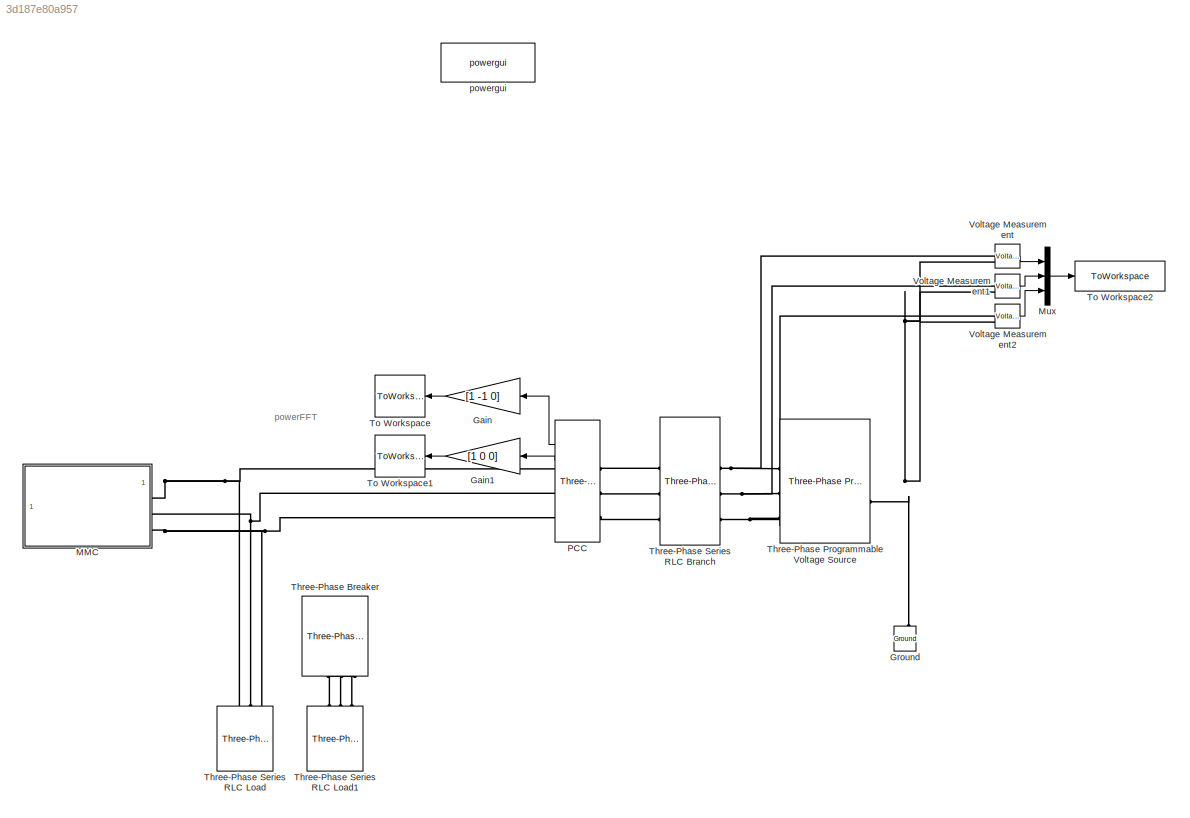
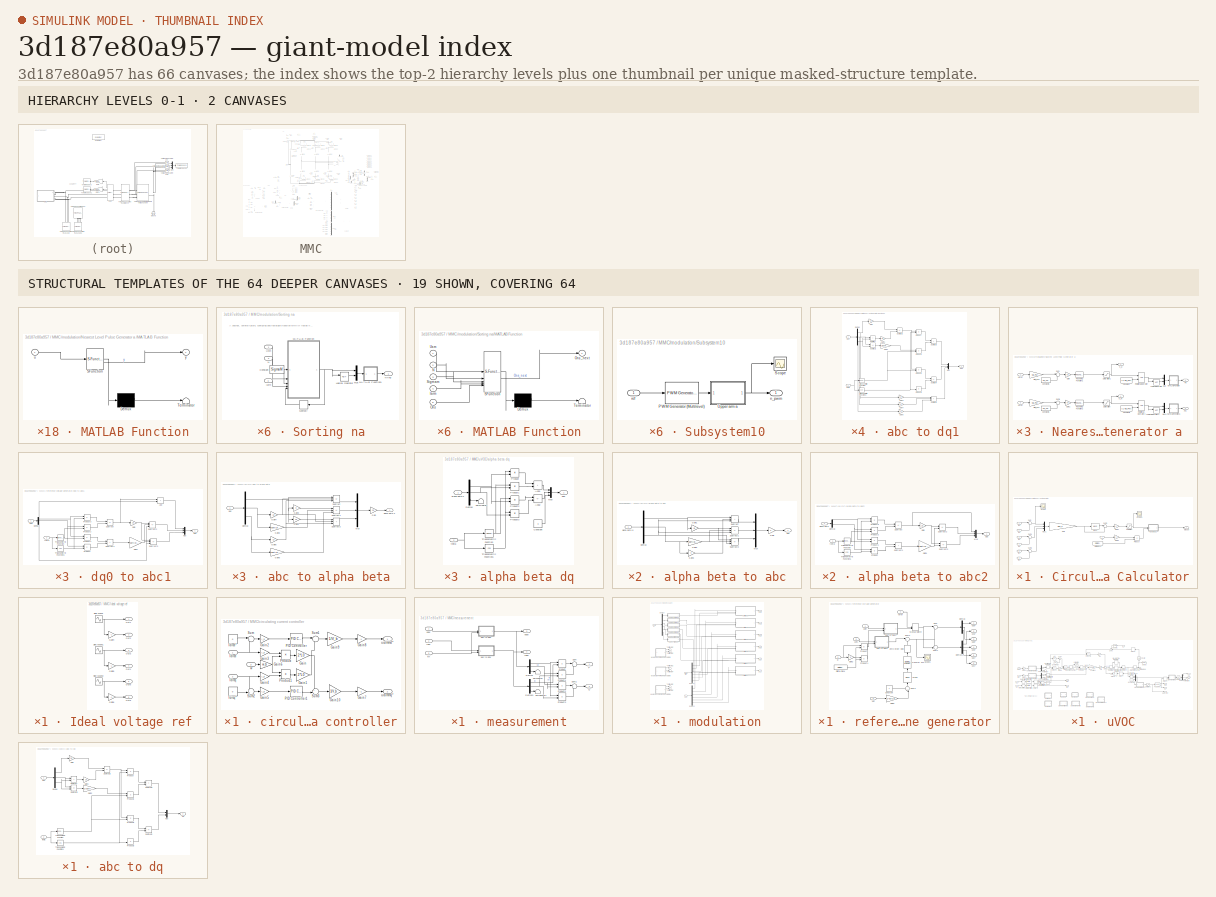
[diagram: thumbnail index - top-2 hierarchy levels (2 canvases) + 19 structural-template representatives of the remaining 64 canvases]
MODEL slx_3d187e80a957
KIND model
CONFIG AbsTol = auto
CONFIG EnableMultiTasking = off
CONFIG FixedStep = Ts_Power
CONFIG MaxStep = auto
CONFIG MinStep = auto
CONFIG RelTol = auto
CONFIG SampleTimeConstraint = Unconstrained
CONFIG SolverName = ode23t
CONFIG StartTime = 0.0
CONFIG StopTime = 2
BLOCK [Gain] Gain
  Gain = [1 -1 0]
  Multiplication = Matrix(K*u)
  NameLocation = top
BLOCK [Gain] Gain1
  Gain = [1 0 0]
  Multiplication = Matrix(K*u)
  NameLocation = top
BLOCK [Reference] Ground  REF=spsGroundLib/Ground
  LibrarySourceBlock = sps_lib/Utilities/Ground
  NameLocation = right
  SourceBlock = spsGroundLib/Ground
  SourceType = Ground
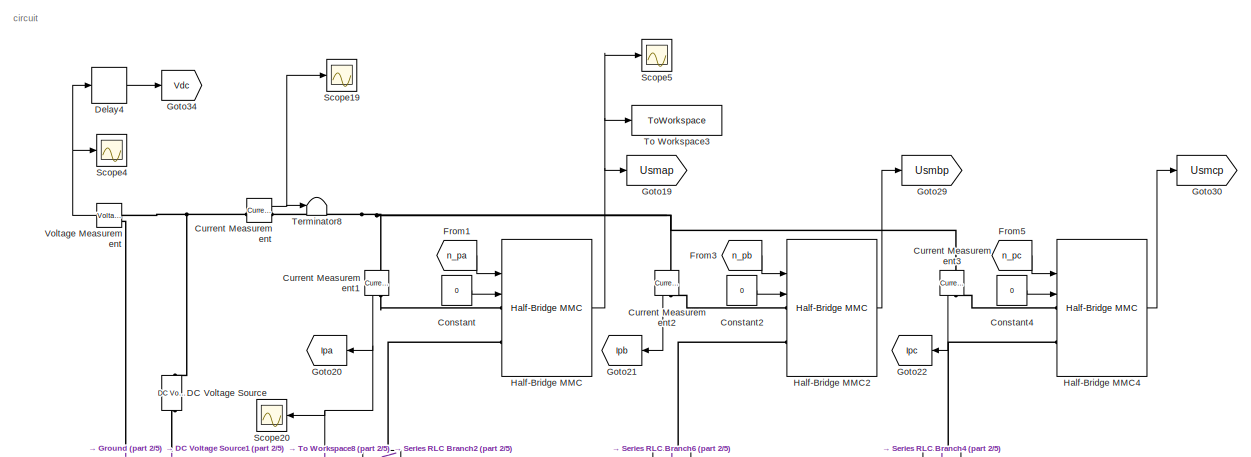
[diagram: MMC - part 1/5, top center region]
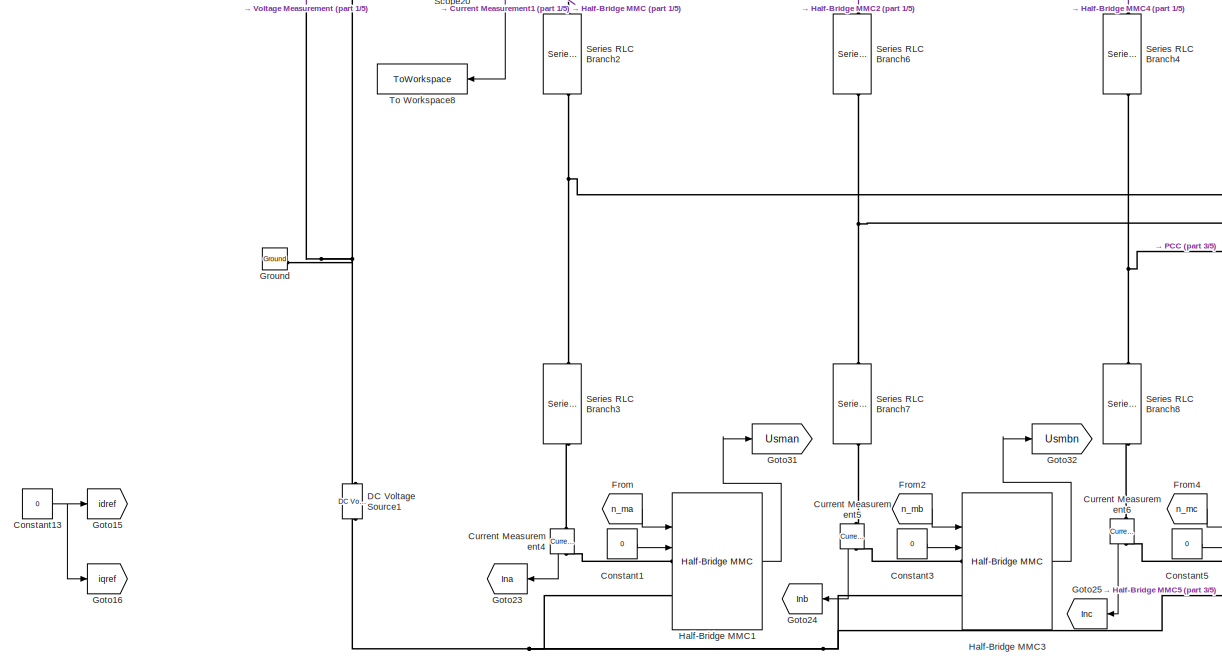
[diagram: MMC - part 2/5, central region]
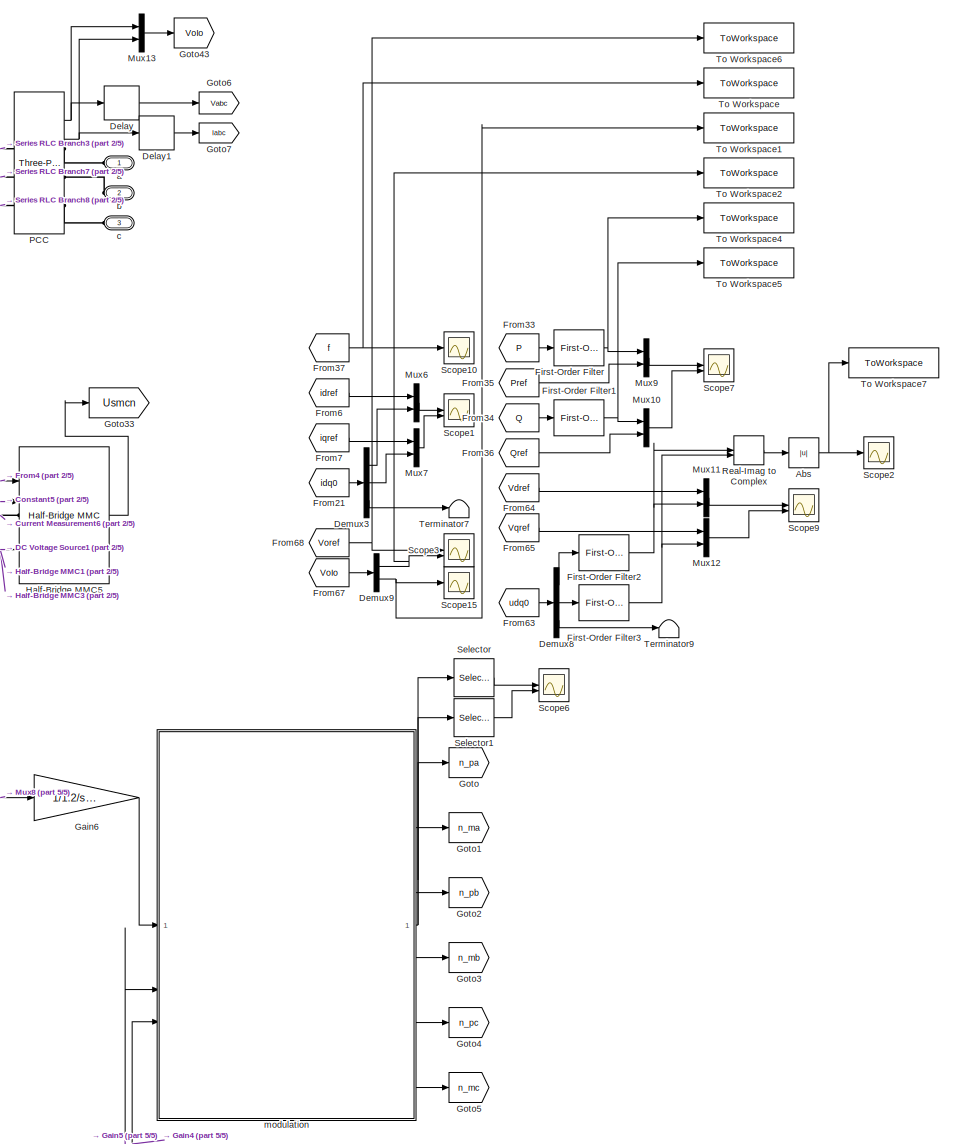
[diagram: MMC - part 3/5, middle right region]
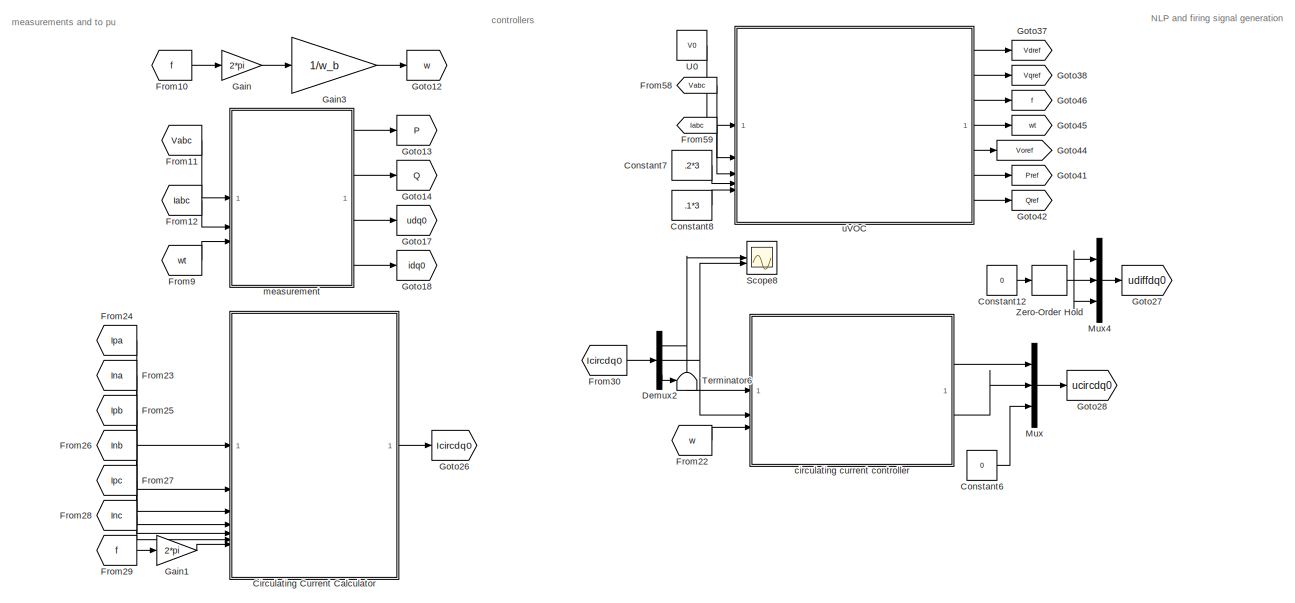
[diagram: MMC - part 4/5, middle left region]
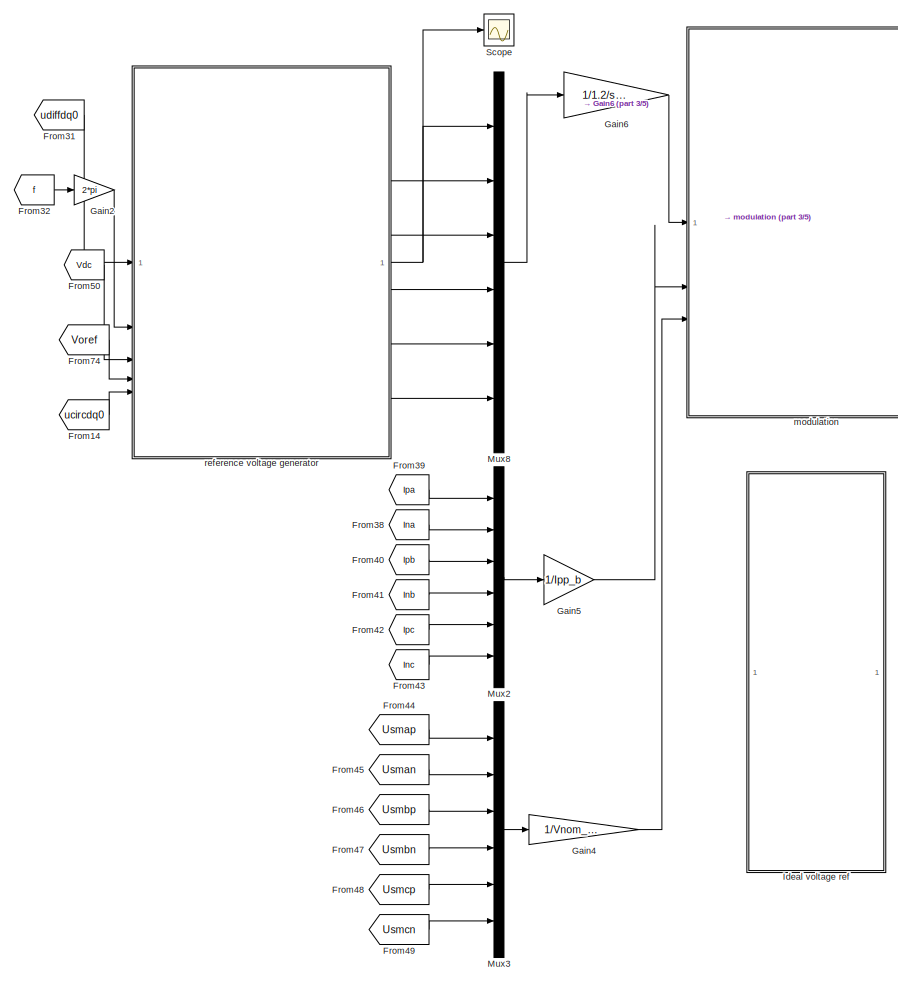
[diagram: MMC - part 5/5, bottom center region]
BLOCK [SubSystem] MMC
BLOCK [Abs] MMC/Abs
  SaturateOnIntegerOverflow = off
BLOCK [SubSystem] MMC/Circulating Current Calculator
BLOCK [DigitalClock] MMC/Circulating Current Calculator/Digital Clock
  SampleTime = Ts_Power
BLOCK [Gain] MMC/Circulating Current Calculator/Gain
  Gain = 1/Ipp_b
BLOCK [Gain] MMC/Circulating Current Calculator/Gain1
  Gain = .5
BLOCK [Gain] MMC/Circulating Current Calculator/Gain2
  Gain = -2
BLOCK [Reference] MMC/Circulating Current Calculator/Mean  REF=spsMeanLib/Mean
  LibrarySourceBlock = sps_lib/Sensors and Measurements/Mean
  SourceBlock = spsMeanLib/Mean
  SourceType = Mean
BLOCK [Mux] MMC/Circulating Current Calculator/Mux1
  DisplayOption = bar
  Inputs = 3
BLOCK [Product] MMC/Circulating Current Calculator/Product
BLOCK [Saturate] MMC/Circulating Current Calculator/Saturation
  LowerLimit = -1.2
  UpperLimit = 1.2
BLOCK [Scope] MMC/Circulating Current Calculator/Scope
  Floating = off
  NumInputPorts = 1
  ScopeSpecificationString = Simulink.scopes.TimeScopeBlockCfg('CurrentConfiguration', extmgr.ConfigurationSet(extmgr.Configuration('Core','General UI',true),extmgr.Configuration('Core','Source UI',true),extmgr.Configuration('Sources','WiredSimulink',true,'DataLoggingVariableName','ScopeData9'),extmgr.Configuration('Visuals','Time Domain',true,'SerializedDisplays',{struct('MinYLimReal','-186.41809','MaxYLimReal','749.99029','...<+1536ch>
BLOCK [Scope] MMC/Circulating Current Calculator/Scope1
  Floating = off
  NumInputPorts = 1
  ScopeSpecificationString = Simulink.scopes.TimeScopeBlockCfg('CurrentConfiguration', extmgr.ConfigurationSet(extmgr.Configuration('Core','General UI',true),extmgr.Configuration('Core','Source UI',true),extmgr.Configuration('Sources','WiredSimulink',true,'DataLoggingVariableName','ScopeData2'),extmgr.Configuration('Visuals','Time Domain',true,'SerializedDisplays',{struct('MinYLimReal','-0.52041','MaxYLimReal','0.48244','YLab...<+1561ch>
BLOCK [Sum] MMC/Circulating Current Calculator/Sum
  Inputs = |++
BLOCK [Sum] MMC/Circulating Current Calculator/Sum1
  Inputs = |++
BLOCK [Sum] MMC/Circulating Current Calculator/Sum2
  Inputs = |++
BLOCK [Sum] MMC/Circulating Current Calculator/Sum3
  Inputs = |-+
BLOCK [SubSystem] MMC/Circulating Current Calculator/abc to dq1
BLOCK [Demux] MMC/Circulating Current Calculator/abc to dq1/Demux
  Outputs = 3
BLOCK [Gain] MMC/Circulating Current Calculator/abc to dq1/Gain
  Gain = 2/3
BLOCK [Gain] MMC/Circulating Current Calculator/abc to dq1/Gain1
  Gain = 1/3
BLOCK [Gain] MMC/Circulating Current Calculator/abc to dq1/Gain2
  Gain = 1/sqrt(3)
BLOCK [Gain] MMC/Circulating Current Calculator/abc to dq1/Gain3
  Gain = 1/2
BLOCK [Gain] MMC/Circulating Current Calculator/abc to dq1/Gain4
  Gain = 1/2
BLOCK [Gain] MMC/Circulating Current Calculator/abc to dq1/Gain5
  Gain = 1/2
BLOCK [Mux] MMC/Circulating Current Calculator/abc to dq1/Mux
  DisplayOption = bar
  Inputs = 3
BLOCK [Product] MMC/Circulating Current Calculator/abc to dq1/Product
BLOCK [Product] MMC/Circulating Current Calculator/abc to dq1/Product1
BLOCK [Product] MMC/Circulating Current Calculator/abc to dq1/Product2
BLOCK [Product] MMC/Circulating Current Calculator/abc to dq1/Product3
BLOCK [Sum] MMC/Circulating Current Calculator/abc to dq1/Subtract
  IconShape = rectangular
BLOCK [Sum] MMC/Circulating Current Calculator/abc to dq1/Subtract1
  IconShape = rectangular
  Inputs = +-
BLOCK [Sum] MMC/Circulating Current Calculator/abc to dq1/Subtract2
  IconShape = rectangular
  Inputs = +-
BLOCK [Sum] MMC/Circulating Current Calculator/abc to dq1/Subtract3
  IconShape = rectangular
BLOCK [Sum] MMC/Circulating Current Calculator/abc to dq1/Subtract4
  IconShape = rectangular
  Inputs = -+
BLOCK [Sum] MMC/Circulating Current Calculator/abc to dq1/Subtract5
  IconShape = rectangular
  Inputs = +++
BLOCK [Trigonometry] MMC/Circulating Current Calculator/abc to dq1/Trigonometric Function
BLOCK [Trigonometry] MMC/Circulating Current Calculator/abc to dq1/Trigonometric Function1
  Operator = cos
BLOCK [Inport] MMC/Circulating Current Calculator/abc to dq1/abc
BLOCK [Outport] MMC/Circulating Current Calculator/abc to dq1/dq0
BLOCK [Inport] MMC/Circulating Current Calculator/abc to dq1/theta
  Port = 2
BLOCK [Outport] MMC/Circulating Current Calculator/icircdq0
BLOCK [Inport] MMC/Circulating Current Calculator/ina
  Port = 2
BLOCK [Inport] MMC/Circulating Current Calculator/inb
  Port = 4
BLOCK [Inport] MMC/Circulating Current Calculator/inc
  Port = 6
BLOCK [Inport] MMC/Circulating Current Calculator/ipa
BLOCK [Inport] MMC/Circulating Current Calculator/ipb
  Port = 3
BLOCK [Inport] MMC/Circulating Current Calculator/ipc
  Port = 5
BLOCK [Inport] MMC/Circulating Current Calculator/w
  Port = 7
BLOCK [Constant] MMC/Constant
  Value = 0
BLOCK [Constant] MMC/Constant1
  Value = 0
BLOCK [Constant] MMC/Constant12
  Value = 0
BLOCK [Constant] MMC/Constant13
  Value = 0
BLOCK [Constant] MMC/Constant2
  Value = 0
BLOCK [Constant] MMC/Constant3
  Value = 0
BLOCK [Constant] MMC/Constant4
  Value = 0
BLOCK [Constant] MMC/Constant5
  Value = 0
BLOCK [Constant] MMC/Constant6
  Value = 0
BLOCK [Constant] MMC/Constant7
  Value = .2*3
BLOCK [Constant] MMC/Constant8
  Value = .1*3
BLOCK [Reference] MMC/Current Measurement  REF=spsCurrentMeasurementLib/Current Measurement
  LibrarySourceBlock = sps_lib/Sensors and Measurements/Current Measurement
  SourceBlock = spsCurrentMeasurementLib/Current Measurement
  SourceType = Current Measurement
  UserDataPersistent = on
BLOCK [Reference] MMC/Current Measurement1  REF=spsCurrentMeasurementLib/Current Measurement
  LibrarySourceBlock = sps_lib/Sensors and Measurements/Current Measurement
  NameLocation = left
  SourceBlock = spsCurrentMeasurementLib/Current Measurement
  SourceType = Current Measurement
  UserDataPersistent = on
BLOCK [Reference] MMC/Current Measurement2  REF=spsCurrentMeasurementLib/Current Measurement
  LibrarySourceBlock = sps_lib/Sensors and Measurements/Current Measurement
  NameLocation = left
  SourceBlock = spsCurrentMeasurementLib/Current Measurement
  SourceType = Current Measurement
  UserDataPersistent = on
BLOCK [Reference] MMC/Current Measurement3  REF=spsCurrentMeasurementLib/Current Measurement
  LibrarySourceBlock = sps_lib/Sensors and Measurements/Current Measurement
  NameLocation = left
  SourceBlock = spsCurrentMeasurementLib/Current Measurement
  SourceType = Current Measurement
  UserDataPersistent = on
BLOCK [Reference] MMC/Current Measurement4  REF=spsCurrentMeasurementLib/Current Measurement
  LibrarySourceBlock = sps_lib/Sensors and Measurements/Current Measurement
  NameLocation = left
  SourceBlock = spsCurrentMeasurementLib/Current Measurement
  SourceType = Current Measurement
  UserDataPersistent = on
BLOCK [Reference] MMC/Current Measurement5  REF=spsCurrentMeasurementLib/Current Measurement
  LibrarySourceBlock = sps_lib/Sensors and Measurements/Current Measurement
  NameLocation = left
  SourceBlock = spsCurrentMeasurementLib/Current Measurement
  SourceType = Current Measurement
  UserDataPersistent = on
BLOCK [Reference] MMC/Current Measurement6  REF=spsCurrentMeasurementLib/Current Measurement
  LibrarySourceBlock = sps_lib/Sensors and Measurements/Current Measurement
  NameLocation = left
  SourceBlock = spsCurrentMeasurementLib/Current Measurement
  SourceType = Current Measurement
  UserDataPersistent = on
BLOCK [Reference] MMC/DC Voltage Source  REF=spsDCVoltageSourceLib/DC Voltage Source
  LibrarySourceBlock = sps_lib/Sources/DC Voltage Source
  SourceBlock = spsDCVoltageSourceLib/DC Voltage Source
  SourceType = DC Voltage Source
BLOCK [Reference] MMC/DC Voltage Source1  REF=spsDCVoltageSourceLib/DC Voltage Source
  LibrarySourceBlock = sps_lib/Sources/DC Voltage Source
  SourceBlock = spsDCVoltageSourceLib/DC Voltage Source
  SourceType = DC Voltage Source
BLOCK [Delay] MMC/Delay
  DelayLength = 1
  InputPortMap = u0
  SampleTime = Ts_Power
BLOCK [Delay] MMC/Delay1
  DelayLength = 1
  InputPortMap = u0
  SampleTime = Ts_Power
BLOCK [Delay] MMC/Delay4
  DelayLength = 1
  InputPortMap = u0
  InputProcessing = Columns as channels (frame based)
BLOCK [Demux] MMC/Demux2
  Outputs = 3
BLOCK [Demux] MMC/Demux3
  Outputs = 3
BLOCK [Demux] MMC/Demux8
  Outputs = 3
BLOCK [Demux] MMC/Demux9
  Outputs = 2
BLOCK [Reference] MMC/First-Order Filter  REF=spsFirstOrderFilterLib/First-Order
Filter
  LibrarySourceBlock = sps_lib/Control/Filters/First-Order\nFilter
  SourceBlock = spsFirstOrderFilterLib/First-Order\nFilter
  SourceType = First-Order Filter
BLOCK [Reference] MMC/First-Order Filter1  REF=spsFirstOrderFilterLib/First-Order
Filter
  LibrarySourceBlock = sps_lib/Control/Filters/First-Order\nFilter
  SourceBlock = spsFirstOrderFilterLib/First-Order\nFilter
  SourceType = First-Order Filter
BLOCK [Reference] MMC/First-Order Filter2  REF=spsFirstOrderFilterLib/First-Order
Filter
  LibrarySourceBlock = sps_lib/Control/Filters/First-Order\nFilter
  SourceBlock = spsFirstOrderFilterLib/First-Order\nFilter
  SourceType = First-Order Filter
BLOCK [Reference] MMC/First-Order Filter3  REF=spsFirstOrderFilterLib/First-Order
Filter
  LibrarySourceBlock = sps_lib/Control/Filters/First-Order\nFilter
  SourceBlock = spsFirstOrderFilterLib/First-Order\nFilter
  SourceType = First-Order Filter
BLOCK [From] MMC/From
  GotoTag = n_ma
BLOCK [From] MMC/From1
  GotoTag = n_pa
BLOCK [From] MMC/From10
  GotoTag = f
BLOCK [From] MMC/From11
  GotoTag = Vabc
BLOCK [From] MMC/From12
  GotoTag = Iabc
BLOCK [From] MMC/From14
  GotoTag = ucircdq0
BLOCK [From] MMC/From2
  GotoTag = n_mb
BLOCK [From] MMC/From21
  GotoTag = idq0
BLOCK [From] MMC/From22
  GotoTag = w
BLOCK [From] MMC/From23
  GotoTag = Ina
  NameLocation = top
BLOCK [From] MMC/From24
  GotoTag = Ipa
  NameLocation = top
BLOCK [From] MMC/From25
  GotoTag = Ipb
BLOCK [From] MMC/From26
  GotoTag = Inb
BLOCK [From] MMC/From27
  GotoTag = Ipc
BLOCK [From] MMC/From28
  GotoTag = Inc
BLOCK [From] MMC/From29
  GotoTag = f
BLOCK [From] MMC/From3
  GotoTag = n_pb
BLOCK [From] MMC/From30
  GotoTag = Icircdq0
BLOCK [From] MMC/From31
  GotoTag = udiffdq0
BLOCK [From] MMC/From32
  GotoTag = f
BLOCK [From] MMC/From33
  GotoTag = P
BLOCK [From] MMC/From34
  GotoTag = Q
BLOCK [From] MMC/From35
  GotoTag = Pref
BLOCK [From] MMC/From36
  GotoTag = Qref
BLOCK [From] MMC/From37
  GotoTag = f
BLOCK [From] MMC/From38
  GotoTag = Ina
  NameLocation = top
BLOCK [From] MMC/From39
  GotoTag = Ipa
  NameLocation = top
BLOCK [From] MMC/From4
  GotoTag = n_mc
BLOCK [From] MMC/From40
  GotoTag = Ipb
BLOCK [From] MMC/From41
  GotoTag = Inb
BLOCK [From] MMC/From42
  GotoTag = Ipc
BLOCK [From] MMC/From43
  GotoTag = Inc
BLOCK [From] MMC/From44
  GotoTag = Usmap
BLOCK [From] MMC/From45
  GotoTag = Usman
BLOCK [From] MMC/From46
  GotoTag = Usmbp
BLOCK [From] MMC/From47
  GotoTag = Usmbn
BLOCK [From] MMC/From48
  GotoTag = Usmcp
BLOCK [From] MMC/From49
  GotoTag = Usmcn
BLOCK [From] MMC/From5
  GotoTag = n_pc
BLOCK [From] MMC/From50
  GotoTag = Vdc
BLOCK [From] MMC/From58
  GotoTag = Vabc
BLOCK [From] MMC/From59
  GotoTag = Iabc
BLOCK [From] MMC/From6
  GotoTag = idref
BLOCK [From] MMC/From63
  GotoTag = udq0
BLOCK [From] MMC/From64
  GotoTag = Vdref
BLOCK [From] MMC/From65
  GotoTag = Vqref
BLOCK [From] MMC/From67
  GotoTag = VoIo
BLOCK [From] MMC/From68
  GotoTag = Voref
BLOCK [From] MMC/From7
  GotoTag = iqref
BLOCK [From] MMC/From74
  GotoTag = Voref
BLOCK [From] MMC/From9
  GotoTag = wt
BLOCK [Gain] MMC/Gain
  Gain = 2*pi
BLOCK [Gain] MMC/Gain1
  Gain = 2*pi
BLOCK [Gain] MMC/Gain2
  Gain = 2*pi
BLOCK [Gain] MMC/Gain3
  Gain = 1/w_b
BLOCK [Gain] MMC/Gain4
  Gain = 1/Vnom_PM
BLOCK [Gain] MMC/Gain5
  Gain = 1/Ipp_b
BLOCK [Gain] MMC/Gain6
  Gain = 1/1.2/sqrt(3/2)
BLOCK [Goto] MMC/Goto
  GotoTag = n_pa
BLOCK [Goto] MMC/Goto1
  GotoTag = n_ma
BLOCK [Goto] MMC/Goto12
  GotoTag = w
BLOCK [Goto] MMC/Goto13
  GotoTag = P
BLOCK [Goto] MMC/Goto14
  GotoTag = Q
BLOCK [Goto] MMC/Goto15
  GotoTag = idref
BLOCK [Goto] MMC/Goto16
  GotoTag = iqref
BLOCK [Goto] MMC/Goto17
  GotoTag = udq0
BLOCK [Goto] MMC/Goto18
  GotoTag = idq0
BLOCK [Goto] MMC/Goto19
  GotoTag = Usmap
BLOCK [Goto] MMC/Goto2
  GotoTag = n_pb
BLOCK [Goto] MMC/Goto20
  GotoTag = Ipa
  NameLocation = top
BLOCK [Goto] MMC/Goto21
  GotoTag = Ipb
  NameLocation = top
BLOCK [Goto] MMC/Goto22
  GotoTag = Ipc
  NameLocation = top
BLOCK [Goto] MMC/Goto23
  GotoTag = Ina
  NameLocation = top
BLOCK [Goto] MMC/Goto24
  GotoTag = Inb
  NameLocation = top
BLOCK [Goto] MMC/Goto25
  GotoTag = Inc
  NameLocation = top
BLOCK [Goto] MMC/Goto26
  GotoTag = Icircdq0
BLOCK [Goto] MMC/Goto27
  GotoTag = udiffdq0
BLOCK [Goto] MMC/Goto28
  GotoTag = ucircdq0
BLOCK [Goto] MMC/Goto29
  GotoTag = Usmbp
BLOCK [Goto] MMC/Goto3
  GotoTag = n_mb
BLOCK [Goto] MMC/Goto30
  GotoTag = Usmcp
BLOCK [Goto] MMC/Goto31
  GotoTag = Usman
BLOCK [Goto] MMC/Goto32
  GotoTag = Usmbn
BLOCK [Goto] MMC/Goto33
  GotoTag = Usmcn
BLOCK [Goto] MMC/Goto34
  GotoTag = Vdc
BLOCK [Goto] MMC/Goto37
  GotoTag = Vdref
BLOCK [Goto] MMC/Goto38
  GotoTag = Vqref
BLOCK [Goto] MMC/Goto4
  GotoTag = n_pc
BLOCK [Goto] MMC/Goto41
  GotoTag = Pref
BLOCK [Goto] MMC/Goto42
  GotoTag = Qref
BLOCK [Goto] MMC/Goto43
  GotoTag = VoIo
BLOCK [Goto] MMC/Goto44
  GotoTag = Voref
BLOCK [Goto] MMC/Goto45
  GotoTag = wt
BLOCK [Goto] MMC/Goto46
  GotoTag = f
BLOCK [Goto] MMC/Goto5
  GotoTag = n_mc
BLOCK [Goto] MMC/Goto6
  GotoTag = Vabc
BLOCK [Goto] MMC/Goto7
  GotoTag = Iabc
BLOCK [Reference] MMC/Ground  REF=spsGroundLib/Ground
  LibrarySourceBlock = sps_lib/Utilities/Ground
  SourceBlock = spsGroundLib/Ground
  SourceType = Ground
BLOCK [Reference] MMC/Half-Bridge MMC  REF=spsHalfBridgeMMCLib/Half-Bridge MMC
  LibrarySourceBlock = sps_lib/Power Electronics/Half-Bridge MMC
  SourceBlock = spsHalfBridgeMMCLib/Half-Bridge MMC
  SourceType = Half-Bridge MMC
BLOCK [Reference] MMC/Half-Bridge MMC1  REF=spsHalfBridgeMMCLib/Half-Bridge MMC
  LibrarySourceBlock = sps_lib/Power Electronics/Half-Bridge MMC
  SourceBlock = spsHalfBridgeMMCLib/Half-Bridge MMC
  SourceType = Half-Bridge MMC
BLOCK [Reference] MMC/Half-Bridge MMC2  REF=spsHalfBridgeMMCLib/Half-Bridge MMC
  LibrarySourceBlock = sps_lib/Power Electronics/Half-Bridge MMC
  SourceBlock = spsHalfBridgeMMCLib/Half-Bridge MMC
  SourceType = Half-Bridge MMC
BLOCK [Reference] MMC/Half-Bridge MMC3  REF=spsHalfBridgeMMCLib/Half-Bridge MMC
  LibrarySourceBlock = sps_lib/Power Electronics/Half-Bridge MMC
  SourceBlock = spsHalfBridgeMMCLib/Half-Bridge MMC
  SourceType = Half-Bridge MMC
BLOCK [Reference] MMC/Half-Bridge MMC4  REF=spsHalfBridgeMMCLib/Half-Bridge MMC
  LibrarySourceBlock = sps_lib/Power Electronics/Half-Bridge MMC
  SourceBlock = spsHalfBridgeMMCLib/Half-Bridge MMC
  SourceType = Half-Bridge MMC
BLOCK [Reference] MMC/Half-Bridge MMC5  REF=spsHalfBridgeMMCLib/Half-Bridge MMC
  LibrarySourceBlock = sps_lib/Power Electronics/Half-Bridge MMC
  SourceBlock = spsHalfBridgeMMCLib/Half-Bridge MMC
  SourceType = Half-Bridge MMC
BLOCK [SubSystem] MMC/Ideal voltage ref
  Commented = on
BLOCK [Gain] MMC/Ideal voltage ref/Gain4
  Gain = -1
BLOCK [Gain] MMC/Ideal voltage ref/Gain5
  Gain = -1
BLOCK [Gain] MMC/Ideal voltage ref/Gain6
  Gain = -1
BLOCK [Outport] MMC/Ideal voltage ref/Out1
BLOCK [Outport] MMC/Ideal voltage ref/Out2
  Port = 2
BLOCK [Outport] MMC/Ideal voltage ref/Out3
  Port = 3
BLOCK [Outport] MMC/Ideal voltage ref/Out4
  Port = 4
BLOCK [Outport] MMC/Ideal voltage ref/Out5
  Port = 5
BLOCK [Outport] MMC/Ideal voltage ref/Out6
  Port = 6
BLOCK [Sin] MMC/Ideal voltage ref/Sine Wave
  Amplitude = sqrt(3/2)
  Frequency = 50*2*pi
  SampleTime = Ts_Power
BLOCK [Sin] MMC/Ideal voltage ref/Sine Wave1
  Amplitude = Vnom_AC*sqrt(2/3)/Vnom_PM/Nb_PM
  Frequency = 50*2*pi
  Phase = 4*pi/3
  SampleTime = Ts_Power
BLOCK [Sin] MMC/Ideal voltage ref/Sine Wave2
  Amplitude = Vnom_AC*sqrt(2/3)/Vnom_PM/Nb_PM
  Frequency = 50*2*pi
  Phase = 2*pi/3
  SampleTime = Ts_Power
BLOCK [Mux] MMC/Mux
  DisplayOption = bar
  Inputs = 3
BLOCK [Mux] MMC/Mux10
  DisplayOption = bar
  Inputs = 2
BLOCK [Mux] MMC/Mux11
  DisplayOption = bar
  Inputs = 2
BLOCK [Mux] MMC/Mux12
  DisplayOption = bar
  Inputs = 2
BLOCK [Mux] MMC/Mux13
  DisplayOption = bar
  Inputs = 2
BLOCK [Mux] MMC/Mux2
  DisplayOption = bar
  Inputs = 6
BLOCK [Mux] MMC/Mux3
  DisplayOption = bar
  Inputs = 6
BLOCK [Mux] MMC/Mux4
  DisplayOption = bar
  Inputs = 3
BLOCK [Mux] MMC/Mux6
  DisplayOption = bar
  Inputs = 2
BLOCK [Mux] MMC/Mux7
  DisplayOption = bar
  Inputs = 2
BLOCK [Mux] MMC/Mux8
  DisplayOption = bar
  Inputs = 6
BLOCK [Mux] MMC/Mux9
  DisplayOption = bar
  Inputs = 2
BLOCK [Reference] MMC/PCC  REF=spsThreePhaseVIMeasurementLib/Three-Phase
V-I Measurement
  LibrarySourceBlock = sps_lib/Sensors and Measurements/Three-Phase\nV-I Measurement
  SourceBlock = spsThreePhaseVIMeasurementLib/Three-Phase\nV-I Measurement
  SourceType = Three-Phase VI Measurement
BLOCK [RealImagToComplex] MMC/Real-Imag to Complex
BLOCK [Scope] MMC/Scope
  Floating = off
  NumInputPorts = 1
  ScopeSpecificationString = Simulink.scopes.TimeScopeBlockCfg('CurrentConfiguration', extmgr.ConfigurationSet(extmgr.Configuration('Core','General UI',true),extmgr.Configuration('Core','Source UI',true),extmgr.Configuration('Sources','WiredSimulink',true,'DataLoggingVariableName','ScopeData2'),extmgr.Configuration('Visuals','Time Domain',true,'SerializedDisplays',{struct('MinYLimReal','-1.34062','MaxYLimReal','1.33762','YLab...<+1548ch>
BLOCK [Scope] MMC/Scope1
  Floating = off
  NumInputPorts = 2
  ScopeSpecificationString = Simulink.scopes.TimeScopeBlockCfg('CurrentConfiguration', extmgr.ConfigurationSet(extmgr.Configuration('Core','General UI',true),extmgr.Configuration('Core','Source UI',true),extmgr.Configuration('Sources','WiredSimulink',true,'DataLoggingVariableName','ScopeData1'),extmgr.Configuration('Visuals','Time Domain',true,'SerializedDisplays',{struct('MinYLimReal','-0.04638','MaxYLimReal','0.2493','YLabe...<+2796ch>
BLOCK [Scope] MMC/Scope10
  Floating = off
  NumInputPorts = 1
  ScopeSpecificationString = Simulink.scopes.TimeScopeBlockCfg('CurrentConfiguration', extmgr.ConfigurationSet(extmgr.Configuration('Core','General UI',true),extmgr.Configuration('Core','Source UI',true),extmgr.Configuration('Sources','WiredSimulink',true,'DataLoggingVariableName','ScopeData1'),extmgr.Configuration('Visuals','Time Domain',true,'SerializedDisplays',{struct('MinYLimReal','49.97423','MaxYLimReal','50.2319','YLab...<+1555ch>
BLOCK [Scope] MMC/Scope15
  Floating = off
  NumInputPorts = 1
  ScopeSpecificationString = Simulink.scopes.TimeScopeBlockCfg('CurrentConfiguration', extmgr.ConfigurationSet(extmgr.Configuration('Core','General UI',true),extmgr.Configuration('Core','Source UI',true),extmgr.Configuration('Sources','WiredSimulink',true,'DataLoggingVariableName','ScopeData2'),extmgr.Configuration('Visuals','Time Domain',true,'SerializedDisplays',{struct('MinYLimReal','-1.14884','MaxYLimReal','1.06769','YLab...<+1557ch>
BLOCK [Scope] MMC/Scope19
  Floating = off
  NumInputPorts = 1
  ScopeSpecificationString = Simulink.scopes.TimeScopeBlockCfg('CurrentConfiguration', extmgr.ConfigurationSet(extmgr.Configuration('Core','General UI',true),extmgr.Configuration('Core','Source UI',true),extmgr.Configuration('Sources','WiredSimulink',true,'DataLoggingVariableName','ScopeData6'),extmgr.Configuration('Visuals','Time Domain',true,'SerializedDisplays',{struct('MinYLimReal','-498.25252','MaxYLimReal','840.64373','...<+1566ch>
BLOCK [Scope] MMC/Scope2
  Floating = off
  NumInputPorts = 1
  ScopeSpecificationString = Simulink.scopes.TimeScopeBlockCfg('CurrentConfiguration', extmgr.ConfigurationSet(extmgr.Configuration('Core','General UI',true),extmgr.Configuration('Core','Source UI',true),extmgr.Configuration('Sources','WiredSimulink',true,'DataLoggingVariableName','ScopeData1'),extmgr.Configuration('Visuals','Time Domain',true,'SerializedDisplays',{struct('MinYLimReal','0.29116','MaxYLimReal','1.07809','YLabe...<+1522ch>
BLOCK [Scope] MMC/Scope20
  Floating = off
  NameLocation = top
  NumInputPorts = 1
  ScopeSpecificationString = Simulink.scopes.TimeScopeBlockCfg('CurrentConfiguration', extmgr.ConfigurationSet(extmgr.Configuration('Core','General UI',true),extmgr.Configuration('Core','Source UI',true),extmgr.Configuration('Sources','WiredSimulink',true,'DataLoggingVariableName','ScopeData8'),extmgr.Configuration('Visuals','Time Domain',true,'SerializedDisplays',{struct('MinYLimReal','-385.20522','MaxYLimReal','326.83465','...<+1555ch>
BLOCK [Scope] MMC/Scope3
  Floating = off
  NumInputPorts = 2
  ScopeSpecificationString = Simulink.scopes.TimeScopeBlockCfg('CurrentConfiguration', extmgr.ConfigurationSet(extmgr.Configuration('Core','General UI',true),extmgr.Configuration('Core','Source UI',true),extmgr.Configuration('Sources','WiredSimulink',true,'DataLoggingVariableName','ScopeData1'),extmgr.Configuration('Visuals','Time Domain',true,'SerializedDisplays',{struct('MinYLimReal','-1.30111','MaxYLimReal','1.3006','YLabe...<+2327ch>
BLOCK [Scope] MMC/Scope4
  Floating = off
  NumInputPorts = 1
  ScopeSpecificationString = Simulink.scopes.TimeScopeBlockCfg('CurrentConfiguration', extmgr.ConfigurationSet(extmgr.Configuration('Core','General UI',true),extmgr.Configuration('Core','Source UI',true),extmgr.Configuration('Sources','WiredSimulink',true,'DataLoggingVariableName','ScopeData1'),extmgr.Configuration('Visuals','Time Domain',true,'SerializedDisplays',{struct('MinYLimReal','38000.00000','MaxYLimReal','58000.00000...<+1568ch>
BLOCK [Scope] MMC/Scope5
  Floating = off
  NumInputPorts = 1
  ScopeSpecificationString = Simulink.scopes.TimeScopeBlockCfg('CurrentConfiguration', extmgr.ConfigurationSet(extmgr.Configuration('Core','General UI',true),extmgr.Configuration('Core','Source UI',true),extmgr.Configuration('Sources','WiredSimulink',true,'DataLoggingVariableName','ScopeData3'),extmgr.Configuration('Visuals','Time Domain',true,'SerializedDisplays',{struct('MinYLimReal','4143.30273','MaxYLimReal','5375.06703',...<+1950ch>
BLOCK [Scope] MMC/Scope6
  Floating = off
  NumInputPorts = 2
  ScopeSpecificationString = Simulink.scopes.TimeScopeBlockCfg('CurrentConfiguration', extmgr.ConfigurationSet(extmgr.Configuration('Core','General UI',true),extmgr.Configuration('Core','Source UI',true),extmgr.Configuration('Sources','WiredSimulink',true,'DataLoggingVariableName','ScopeData4'),extmgr.Configuration('Visuals','Time Domain',true,'SerializedDisplays',{struct('MinYLimReal','-0.125','MaxYLimReal','1.125','YLabelRe...<+2275ch>
BLOCK [Scope] MMC/Scope7
  Floating = off
  NumInputPorts = 2
  ScopeSpecificationString = Simulink.scopes.TimeScopeBlockCfg('CurrentConfiguration', extmgr.ConfigurationSet(extmgr.Configuration('Core','General UI',true),extmgr.Configuration('Core','Source UI',true),extmgr.Configuration('Sources','WiredSimulink',true,'DataLoggingVariableName','ScopeData2'),extmgr.Configuration('Visuals','Time Domain',true,'SerializedDisplays',{struct('MinYLimReal','-1.45888','MaxYLimReal','1.7129','YLabe...<+2299ch>
BLOCK [Scope] MMC/Scope8
  Floating = off
  NumInputPorts = 2
  ScopeSpecificationString = Simulink.scopes.TimeScopeBlockCfg('CurrentConfiguration', extmgr.ConfigurationSet(extmgr.Configuration('Core','General UI',true),extmgr.Configuration('Core','Source UI',true),extmgr.Configuration('Sources','WiredSimulink',true,'DataLoggingVariableName','ScopeData2'),extmgr.Configuration('Visuals','Time Domain',true,'SerializedDisplays',{struct('MinYLimReal','-0.01739','MaxYLimReal','0.03794','YLab...<+1538ch>
BLOCK [Scope] MMC/Scope9
  Floating = off
  NumInputPorts = 2
  ScopeSpecificationString = Simulink.scopes.TimeScopeBlockCfg('CurrentConfiguration', extmgr.ConfigurationSet(extmgr.Configuration('Core','General UI',true),extmgr.Configuration('Core','Source UI',true),extmgr.Configuration('Sources','WiredSimulink',true,'DataLoggingVariableName','ScopeData3'),extmgr.Configuration('Visuals','Time Domain',true,'SerializedDisplays',{struct('MinYLimReal','0.9533','MaxYLimReal','1.06992','YLabel...<+2318ch>
BLOCK [Selector] MMC/Selector
  IndexOptions = Index vector (dialog)
  Indices = [1]
  InputPortWidth = 2*Nb_PM
  OutputSizes = 1
BLOCK [Selector] MMC/Selector1
  IndexOptions = Index vector (dialog)
  Indices = [Nb_PM]
  InputPortWidth = 2*Nb_PM
  OutputSizes = 1
BLOCK [Reference] MMC/Series RLC Branch2  REF=spsSeriesRLCBranchLib/Series RLC Branch
  LibrarySourceBlock = sps_lib/Passives/Series RLC Branch
  NameLocation = left
  SourceBlock = spsSeriesRLCBranchLib/Series RLC Branch
  SourceType = Series RLC Branch
BLOCK [Reference] MMC/Series RLC Branch3  REF=spsSeriesRLCBranchLib/Series RLC Branch
  LibrarySourceBlock = sps_lib/Passives/Series RLC Branch
  NameLocation = left
  SourceBlock = spsSeriesRLCBranchLib/Series RLC Branch
  SourceType = Series RLC Branch
BLOCK [Reference] MMC/Series RLC Branch4  REF=spsSeriesRLCBranchLib/Series RLC Branch
  LibrarySourceBlock = sps_lib/Passives/Series RLC Branch
  NameLocation = left
  SourceBlock = spsSeriesRLCBranchLib/Series RLC Branch
  SourceType = Series RLC Branch
BLOCK [Reference] MMC/Series RLC Branch6  REF=spsSeriesRLCBranchLib/Series RLC Branch
  LibrarySourceBlock = sps_lib/Passives/Series RLC Branch
  NameLocation = left
  SourceBlock = spsSeriesRLCBranchLib/Series RLC Branch
  SourceType = Series RLC Branch
BLOCK [Reference] MMC/Series RLC Branch7  REF=spsSeriesRLCBranchLib/Series RLC Branch
  LibrarySourceBlock = sps_lib/Passives/Series RLC Branch
  NameLocation = left
  SourceBlock = spsSeriesRLCBranchLib/Series RLC Branch
  SourceType = Series RLC Branch
BLOCK [Reference] MMC/Series RLC Branch8  REF=spsSeriesRLCBranchLib/Series RLC Branch
  LibrarySourceBlock = sps_lib/Passives/Series RLC Branch
  NameLocation = left
  SourceBlock = spsSeriesRLCBranchLib/Series RLC Branch
  SourceType = Series RLC Branch
BLOCK [Terminator] MMC/Terminator6
BLOCK [Terminator] MMC/Terminator7
BLOCK [Terminator] MMC/Terminator8
BLOCK [Terminator] MMC/Terminator9
BLOCK [ToWorkspace] MMC/To Workspace
  FixptAsFi = on
  MaxDataPoints = inf
  SampleTime = -1
  SaveFormat = Structure With Time
  VariableName = freq
BLOCK [ToWorkspace] MMC/To Workspace1
  FixptAsFi = on
  MaxDataPoints = inf
  SampleTime = -1
  SaveFormat = Structure With Time
  VariableName = Io
BLOCK [ToWorkspace] MMC/To Workspace2
  FixptAsFi = on
  MaxDataPoints = inf
  SampleTime = -1
  SaveFormat = Structure With Time
  VariableName = Vo
BLOCK [ToWorkspace] MMC/To Workspace3
  FixptAsFi = on
  MaxDataPoints = inf
  SampleTime = -1
  SaveFormat = Structure With Time
  VariableName = Vsm
BLOCK [ToWorkspace] MMC/To Workspace4
  FixptAsFi = on
  MaxDataPoints = inf
  SampleTime = -1
  SaveFormat = Structure With Time
  VariableName = P
BLOCK [ToWorkspace] MMC/To Workspace5
  FixptAsFi = on
  MaxDataPoints = inf
  SampleTime = -1
  SaveFormat = Structure With Time
  VariableName = Q
BLOCK [ToWorkspace] MMC/To Workspace6
  FixptAsFi = on
  MaxDataPoints = inf
  SampleTime = -1
  SaveFormat = Structure With Time
  VariableName = Voref
BLOCK [ToWorkspace] MMC/To Workspace7
  FixptAsFi = on
  MaxDataPoints = inf
  SampleTime = -1
  SaveFormat = Structure With Time
  VariableName = Vabs
BLOCK [ToWorkspace] MMC/To Workspace8
  FixptAsFi = on
  MaxDataPoints = inf
  NameLocation = top
  SampleTime = -1
  SaveFormat = Structure With Time
  VariableName = Ipa1
BLOCK [Constant] MMC/U0
  SampleTime = Ts_Power
  Value = V0
BLOCK [Reference] MMC/Voltage Measurement  REF=spsVoltageMeasurementLib/Voltage Measurement
  LibrarySourceBlock = sps_lib/Sensors and Measurements/Voltage Measurement
  SourceBlock = spsVoltageMeasurementLib/Voltage Measurement
  SourceType = Voltage Measurement
  UserDataPersistent = on
BLOCK [ZeroOrderHold] MMC/Zero-Order Hold
  SampleTime = Ts_Power
BLOCK [PMIOPort] MMC/a
  NameLocation = top
  Side = Left
BLOCK [PMIOPort] MMC/b
  NameLocation = top
  Port = 2
  Side = Left
BLOCK [PMIOPort] MMC/c
  NameLocation = top
  Port = 3
  Side = Left
BLOCK [SubSystem] MMC/circulating current controller
BLOCK [Gain] MMC/circulating current controller/Gain
  Gain = 2*L0
BLOCK [Gain] MMC/circulating current controller/Gain1
  Gain = 2*L0
BLOCK [Gain] MMC/circulating current controller/Gain10
  Gain = 1/V_b
BLOCK [Gain] MMC/circulating current controller/Gain2
  Gain = I_b
BLOCK [Gain] MMC/circulating current controller/Gain3
  Gain = I_b
BLOCK [Gain] MMC/circulating current controller/Gain4
  Gain = I_b
BLOCK [Gain] MMC/circulating current controller/Gain5
  Gain = I_b
BLOCK [Gain] MMC/circulating current controller/Gain6
  Gain = w_b
BLOCK [Gain] MMC/circulating current controller/Gain7
  Gain = -1
BLOCK [Gain] MMC/circulating current controller/Gain8
  Gain = -1
BLOCK [Gain] MMC/circulating current controller/Gain9
  Gain = 1/V_b
BLOCK [Inport] MMC/circulating current controller/Icircd
BLOCK [Constant] MMC/circulating current controller/Icircd*
  Value = 0
BLOCK [Inport] MMC/circulating current controller/Icircq
  Port = 2
BLOCK [Constant] MMC/circulating current controller/Icircq*
  Value = 0
BLOCK [Reference] MMC/circulating current controller/PID Controller  REF=slpidlib/PID Controller
  LibrarySourceBlock = simulink/Continuous/PID Controller
  SourceBlock = slpidlib/PID Controller
  SourceType = PID 1dof
BLOCK [Reference] MMC/circulating current controller/PID Controller1  REF=slpidlib/PID Controller
  LibrarySourceBlock = simulink/Continuous/PID Controller
  SourceBlock = slpidlib/PID Controller
  SourceType = PID 1dof
BLOCK [Product] MMC/circulating current controller/Product
BLOCK [Product] MMC/circulating current controller/Product1
BLOCK [Sum] MMC/circulating current controller/Sum
  Inputs = |+-
BLOCK [Sum] MMC/circulating current controller/Sum1
  Inputs = |--
BLOCK [Sum] MMC/circulating current controller/Sum2
  Inputs = -+|
BLOCK [Sum] MMC/circulating current controller/Sum3
  Inputs = +-|
BLOCK [Outport] MMC/circulating current controller/ucommd*
BLOCK [Outport] MMC/circulating current controller/ucommq*
  Port = 2
BLOCK [Inport] MMC/circulating current controller/w
  Port = 3
BLOCK [SubSystem] MMC/measurement
BLOCK [Demux] MMC/measurement/Demux
  Outputs = 3
BLOCK [Demux] MMC/measurement/Demux1
  Outputs = 3
BLOCK [Inport] MMC/measurement/Iabc
  NameLocation = left
  Port = 2
BLOCK [Outport] MMC/measurement/Idq0
  NameLocation = right
  Port = 4
BLOCK [Outport] MMC/measurement/P
  NameLocation = right
BLOCK [Product] MMC/measurement/Product
BLOCK [Product] MMC/measurement/Product1
BLOCK [Product] MMC/measurement/Product2
BLOCK [Product] MMC/measurement/Product3
BLOCK [Outport] MMC/measurement/Q
  NameLocation = right
  Port = 2
BLOCK [Sum] MMC/measurement/Sum
  Inputs = |++
BLOCK [Sum] MMC/measurement/Sum1
  Inputs = |+-
BLOCK [Terminator] MMC/measurement/Terminator
BLOCK [Terminator] MMC/measurement/Terminator1
BLOCK [Inport] MMC/measurement/Vabc
  NameLocation = left
BLOCK [Outport] MMC/measurement/Vdq0
  NameLocation = right
  Port = 3
BLOCK [SubSystem] MMC/measurement/abc to dq0
BLOCK [Demux] MMC/measurement/abc to dq0/Demux
  Outputs = 3
BLOCK [Gain] MMC/measurement/abc to dq0/Gain
  Gain = 2/3
BLOCK [Gain] MMC/measurement/abc to dq0/Gain1
  Gain = 1/3
BLOCK [Gain] MMC/measurement/abc to dq0/Gain2
  Gain = 1/sqrt(3)
BLOCK [Gain] MMC/measurement/abc to dq0/Gain3
  Gain = 1/2
BLOCK [Gain] MMC/measurement/abc to dq0/Gain4
  Gain = 1/2
BLOCK [Gain] MMC/measurement/abc to dq0/Gain5
  Gain = 1/2
BLOCK [Mux] MMC/measurement/abc to dq0/Mux
  DisplayOption = bar
  Inputs = 3
BLOCK [Product] MMC/measurement/abc to dq0/Product
BLOCK [Product] MMC/measurement/abc to dq0/Product1
BLOCK [Product] MMC/measurement/abc to dq0/Product2
BLOCK [Product] MMC/measurement/abc to dq0/Product3
BLOCK [Sum] MMC/measurement/abc to dq0/Subtract
  IconShape = rectangular
BLOCK [Sum] MMC/measurement/abc to dq0/Subtract1
  IconShape = rectangular
  Inputs = +-
BLOCK [Sum] MMC/measurement/abc to dq0/Subtract2
  IconShape = rectangular
  Inputs = +-
BLOCK [Sum] MMC/measurement/abc to dq0/Subtract3
  IconShape = rectangular
BLOCK [Sum] MMC/measurement/abc to dq0/Subtract4
  IconShape = rectangular
  Inputs = -+
BLOCK [Sum] MMC/measurement/abc to dq0/Subtract5
  IconShape = rectangular
  Inputs = +++
BLOCK [Trigonometry] MMC/measurement/abc to dq0/Trigonometric Function
BLOCK [Trigonometry] MMC/measurement/abc to dq0/Trigonometric Function1
  Operator = cos
BLOCK [Inport] MMC/measurement/abc to dq0/abc
BLOCK [Outport] MMC/measurement/abc to dq0/dq0
BLOCK [Inport] MMC/measurement/abc to dq0/theta
  Port = 2
BLOCK [SubSystem] MMC/measurement/abc to dq1
BLOCK [Demux] MMC/measurement/abc to dq1/Demux
  Outputs = 3
BLOCK [Gain] MMC/measurement/abc to dq1/Gain
  Gain = 2/3
BLOCK [Gain] MMC/measurement/abc to dq1/Gain1
  Gain = 1/3
BLOCK [Gain] MMC/measurement/abc to dq1/Gain2
  Gain = 1/sqrt(3)
BLOCK [Gain] MMC/measurement/abc to dq1/Gain3
  Gain = 1/2
BLOCK [Gain] MMC/measurement/abc to dq1/Gain4
  Gain = 1/2
BLOCK [Gain] MMC/measurement/abc to dq1/Gain5
  Gain = 1/2
BLOCK [Mux] MMC/measurement/abc to dq1/Mux
  DisplayOption = bar
  Inputs = 3
BLOCK [Product] MMC/measurement/abc to dq1/Product
BLOCK [Product] MMC/measurement/abc to dq1/Product1
BLOCK [Product] MMC/measurement/abc to dq1/Product2
BLOCK [Product] MMC/measurement/abc to dq1/Product3
BLOCK [Sum] MMC/measurement/abc to dq1/Subtract
  IconShape = rectangular
BLOCK [Sum] MMC/measurement/abc to dq1/Subtract1
  IconShape = rectangular
  Inputs = +-
BLOCK [Sum] MMC/measurement/abc to dq1/Subtract2
  IconShape = rectangular
  Inputs = +-
BLOCK [Sum] MMC/measurement/abc to dq1/Subtract3
  IconShape = rectangular
BLOCK [Sum] MMC/measurement/abc to dq1/Subtract4
  IconShape = rectangular
  Inputs = -+
BLOCK [Sum] MMC/measurement/abc to dq1/Subtract5
  IconShape = rectangular
  Inputs = +++
BLOCK [Trigonometry] MMC/measurement/abc to dq1/Trigonometric Function
BLOCK [Trigonometry] MMC/measurement/abc to dq1/Trigonometric Function1
  Operator = cos
BLOCK [Inport] MMC/measurement/abc to dq1/abc
BLOCK [Outport] MMC/measurement/abc to dq1/dq0
BLOCK [Inport] MMC/measurement/abc to dq1/theta
  Port = 2
BLOCK [Inport] MMC/measurement/wt
  NameLocation = left
  Port = 3
BLOCK [SubSystem] MMC/modulation
BLOCK [Demux] MMC/modulation/Demux
  Outputs = 6
BLOCK [Demux] MMC/modulation/Demux1
  Outputs = 6
BLOCK [Demux] MMC/modulation/Demux2
  Outputs = 6
BLOCK [Inport] MMC/modulation/Iarm
  Port = 2
BLOCK [SubSystem] MMC/modulation/Nearest Level Pulse Generator a 
  Commented = on
BLOCK [Constant] MMC/modulation/Nearest Level Pulse Generator a /Constant
  Value = [1:Nb_PM]
BLOCK [Constant] MMC/modulation/Nearest Level Pulse Generator a /Constant1
  Value = Nb_PM
BLOCK [Constant] MMC/modulation/Nearest Level Pulse Generator a /Constant2
  Value = [1:Nb_PM]
BLOCK [Constant] MMC/modulation/Nearest Level Pulse Generator a /Constant3
  Value = Nb_PM
BLOCK [Gain] MMC/modulation/Nearest Level Pulse Generator a /Gain
  Gain = 0.5
BLOCK [Gain] MMC/modulation/Nearest Level Pulse Generator a /Gain1
  Gain = 0.5
BLOCK [Logic] MMC/modulation/Nearest Level Pulse Generator a /Logical Operator
  AllPortsSameDT = off
  Commented = through
  Operator = NOT
  OutDataTypeStr = float('double')
BLOCK [Logic] MMC/modulation/Nearest Level Pulse Generator a /Logical Operator1
  AllPortsSameDT = off
  Commented = through
  Operator = NOT
  OutDataTypeStr = float('double')
BLOCK [SubSystem] MMC/modulation/Nearest Level Pulse Generator a /MATLAB Function
  Commented = through
  ErrorFcn = Stateflow.Translate.translate
  PermitHierarchicalResolution = ExplicitOnly
  SFBlockType = MATLAB Function
  TreatAsAtomicUnit = on
BLOCK [Demux] MMC/modulation/Nearest Level Pulse Generator a /MATLAB Function/ Demux 
  Outputs = 1
BLOCK [S-Function] MMC/modulation/Nearest Level Pulse Generator a /MATLAB Function/ SFunction 
  EnableBusSupport = on
  FunctionName = sf_sfun
  PortCounts = [1 2]
  SFcnIsStateOwnerBlock = off
  SFunctionDeploymentMode = off
  Tag = Stateflow S-Function 2
BLOCK [Terminator] MMC/modulation/Nearest Level Pulse Generator a /MATLAB Function/ Terminator 
BLOCK [Inport] MMC/modulation/Nearest Level Pulse Generator a /MATLAB Function/u
BLOCK [Outport] MMC/modulation/Nearest Level Pulse Generator a /MATLAB Function/y
BLOCK [SubSystem] MMC/modulation/Nearest Level Pulse Generator a /MATLAB Function1
  Commented = through
  ErrorFcn = Stateflow.Translate.translate
  PermitHierarchicalResolution = ExplicitOnly
  SFBlockType = MATLAB Function
  TreatAsAtomicUnit = on
BLOCK [Demux] MMC/modulation/Nearest Level Pulse Generator a /MATLAB Function1/ Demux 
  Outputs = 1
BLOCK [S-Function] MMC/modulation/Nearest Level Pulse Generator a /MATLAB Function1/ SFunction 
  EnableBusSupport = on
  FunctionName = sf_sfun
  PortCounts = [1 2]
  SFcnIsStateOwnerBlock = off
  SFunctionDeploymentMode = off
  Tag = Stateflow S-Function 1
BLOCK [Terminator] MMC/modulation/Nearest Level Pulse Generator a /MATLAB Function1/ Terminator 
BLOCK [Inport] MMC/modulation/Nearest Level Pulse Generator a /MATLAB Function1/u
BLOCK [Outport] MMC/modulation/Nearest Level Pulse Generator a /MATLAB Function1/y
BLOCK [Mux] MMC/modulation/Nearest Level Pulse Generator a /Mux
  DisplayOption = bar
  Inputs = 2
BLOCK [Mux] MMC/modulation/Nearest Level Pulse Generator a /Mux1
  DisplayOption = bar
  Inputs = 2
BLOCK [Outport] MMC/modulation/Nearest Level Pulse Generator a /Pm
  Port = 2
  VectorParamsAs1DForOutWhenUnconnected = off
BLOCK [Outport] MMC/modulation/Nearest Level Pulse Generator a /Pp
  VectorParamsAs1DForOutWhenUnconnected = off
BLOCK [RelationalOperator] MMC/modulation/Nearest Level Pulse Generator a /Relational Operator
  InputSameDT = off
  OutDataTypeStr = float('double')
BLOCK [RelationalOperator] MMC/modulation/Nearest Level Pulse Generator a /Relational Operator1
  InputSameDT = off
  OutDataTypeStr = float('double')
BLOCK [Rounding] MMC/modulation/Nearest Level Pulse Generator a /Rounding Function1
  Operator = round
BLOCK [Rounding] MMC/modulation/Nearest Level Pulse Generator a /Rounding Function2
  Operator = round
BLOCK [Gain] MMC/modulation/Nearest Level Pulse Generator a /Rtot_pu1
  Gain = Nb_PM
  OutDataTypeStr = Inherit: Same as input
  ParamDataTypeStr = Inherit: Same as input
  SaturateOnIntegerOverflow = on
BLOCK [Gain] MMC/modulation/Nearest Level Pulse Generator a /Rtot_pu2
  Gain = Nb_PM
  OutDataTypeStr = Inherit: Same as input
  ParamDataTypeStr = Inherit: Same as input
  SaturateOnIntegerOverflow = on
BLOCK [Saturate] MMC/modulation/Nearest Level Pulse Generator a /Saturation
  LowerLimit = 0
  UpperLimit = Nb_PM
BLOCK [Saturate] MMC/modulation/Nearest Level Pulse Generator a /Saturation1
  LowerLimit = 0
  UpperLimit = Nb_PM
BLOCK [Sum] MMC/modulation/Nearest Level Pulse Generator a /Sum
  Inputs = |-+
BLOCK [Sum] MMC/modulation/Nearest Level Pulse Generator a /Sum1
  Inputs = |-+
BLOCK [Inport] MMC/modulation/Nearest Level Pulse Generator a /Unref
  Port = 2
BLOCK [Inport] MMC/modulation/Nearest Level Pulse Generator a /Upref
BLOCK [Outport] MMC/modulation/Nearest Level Pulse Generator a /n_m
  Port = 4
  VectorParamsAs1DForOutWhenUnconnected = off
BLOCK [Outport] MMC/modulation/Nearest Level Pulse Generator a /n_p
  Port = 3
  VectorParamsAs1DForOutWhenUnconnected = off
BLOCK [SubSystem] MMC/modulation/Nearest Level Pulse Generator b
  Commented = on
BLOCK [Constant] MMC/modulation/Nearest Level Pulse Generator b/Constant
  Value = [1:Nb_PM]
BLOCK [Constant] MMC/modulation/Nearest Level Pulse Generator b/Constant1
  Value = Nb_PM
BLOCK [Constant] MMC/modulation/Nearest Level Pulse Generator b/Constant2
  Value = [1:Nb_PM]
BLOCK [Constant] MMC/modulation/Nearest Level Pulse Generator b/Constant3
  Value = Nb_PM
BLOCK [Gain] MMC/modulation/Nearest Level Pulse Generator b/Gain
  Gain = 0.5
BLOCK [Gain] MMC/modulation/Nearest Level Pulse Generator b/Gain1
  Gain = 0.5
BLOCK [Logic] MMC/modulation/Nearest Level Pulse Generator b/Logical Operator
  AllPortsSameDT = off
  Commented = through
  Operator = NOT
  OutDataTypeStr = float('double')
BLOCK [Logic] MMC/modulation/Nearest Level Pulse Generator b/Logical Operator1
  AllPortsSameDT = off
  Commented = through
  Operator = NOT
  OutDataTypeStr = float('double')
BLOCK [SubSystem] MMC/modulation/Nearest Level Pulse Generator b/MATLAB Function
  Commented = through
  ErrorFcn = Stateflow.Translate.translate
  PermitHierarchicalResolution = ExplicitOnly
  SFBlockType = MATLAB Function
  TreatAsAtomicUnit = on
BLOCK [Demux] MMC/modulation/Nearest Level Pulse Generator b/MATLAB Function/ Demux 
  Outputs = 1
BLOCK [S-Function] MMC/modulation/Nearest Level Pulse Generator b/MATLAB Function/ SFunction 
  EnableBusSupport = on
  FunctionName = sf_sfun
  PortCounts = [1 2]
  SFcnIsStateOwnerBlock = off
  SFunctionDeploymentMode = off
  Tag = Stateflow S-Function 3
BLOCK [Terminator] MMC/modulation/Nearest Level Pulse Generator b/MATLAB Function/ Terminator 
BLOCK [Inport] MMC/modulation/Nearest Level Pulse Generator b/MATLAB Function/u
BLOCK [Outport] MMC/modulation/Nearest Level Pulse Generator b/MATLAB Function/y
BLOCK [SubSystem] MMC/modulation/Nearest Level Pulse Generator b/MATLAB Function1
  Commented = through
  ErrorFcn = Stateflow.Translate.translate
  PermitHierarchicalResolution = ExplicitOnly
  SFBlockType = MATLAB Function
  TreatAsAtomicUnit = on
BLOCK [Demux] MMC/modulation/Nearest Level Pulse Generator b/MATLAB Function1/ Demux 
  Outputs = 1
BLOCK [S-Function] MMC/modulation/Nearest Level Pulse Generator b/MATLAB Function1/ SFunction 
  EnableBusSupport = on
  FunctionName = sf_sfun
  PortCounts = [1 2]
  SFcnIsStateOwnerBlock = off
  SFunctionDeploymentMode = off
  Tag = Stateflow S-Function 4
BLOCK [Terminator] MMC/modulation/Nearest Level Pulse Generator b/MATLAB Function1/ Terminator 
BLOCK [Inport] MMC/modulation/Nearest Level Pulse Generator b/MATLAB Function1/u
BLOCK [Outport] MMC/modulation/Nearest Level Pulse Generator b/MATLAB Function1/y
BLOCK [Mux] MMC/modulation/Nearest Level Pulse Generator b/Mux
  DisplayOption = bar
  Inputs = 2
BLOCK [Mux] MMC/modulation/Nearest Level Pulse Generator b/Mux1
  DisplayOption = bar
  Inputs = 2
BLOCK [Outport] MMC/modulation/Nearest Level Pulse Generator b/Pm
  Port = 2
  VectorParamsAs1DForOutWhenUnconnected = off
BLOCK [Outport] MMC/modulation/Nearest Level Pulse Generator b/Pp
  VectorParamsAs1DForOutWhenUnconnected = off
BLOCK [RelationalOperator] MMC/modulation/Nearest Level Pulse Generator b/Relational Operator
  InputSameDT = off
  OutDataTypeStr = float('double')
BLOCK [RelationalOperator] MMC/modulation/Nearest Level Pulse Generator b/Relational Operator1
  InputSameDT = off
  OutDataTypeStr = float('double')
BLOCK [Rounding] MMC/modulation/Nearest Level Pulse Generator b/Rounding Function1
  Operator = round
BLOCK [Rounding] MMC/modulation/Nearest Level Pulse Generator b/Rounding Function2
  Operator = round
BLOCK [Gain] MMC/modulation/Nearest Level Pulse Generator b/Rtot_pu1
  Gain = Nb_PM
  OutDataTypeStr = Inherit: Same as input
  ParamDataTypeStr = Inherit: Same as input
  SaturateOnIntegerOverflow = on
BLOCK [Gain] MMC/modulation/Nearest Level Pulse Generator b/Rtot_pu2
  Gain = Nb_PM
  OutDataTypeStr = Inherit: Same as input
  ParamDataTypeStr = Inherit: Same as input
  SaturateOnIntegerOverflow = on
BLOCK [Saturate] MMC/modulation/Nearest Level Pulse Generator b/Saturation
  LowerLimit = 0
  UpperLimit = Nb_PM
BLOCK [Saturate] MMC/modulation/Nearest Level Pulse Generator b/Saturation1
  LowerLimit = 0
  UpperLimit = Nb_PM
BLOCK [Sum] MMC/modulation/Nearest Level Pulse Generator b/Sum
  Inputs = |-+
BLOCK [Sum] MMC/modulation/Nearest Level Pulse Generator b/Sum1
  Inputs = |-+
BLOCK [Inport] MMC/modulation/Nearest Level Pulse Generator b/Unref
  Port = 2
BLOCK [Inport] MMC/modulation/Nearest Level Pulse Generator b/Upref
BLOCK [Outport] MMC/modulation/Nearest Level Pulse Generator b/n_m
  Port = 4
  VectorParamsAs1DForOutWhenUnconnected = off
BLOCK [Outport] MMC/modulation/Nearest Level Pulse Generator b/n_p
  Port = 3
  VectorParamsAs1DForOutWhenUnconnected = off
BLOCK [SubSystem] MMC/modulation/Nearest Level Pulse Generator b1
  Commented = on
BLOCK [Constant] MMC/modulation/Nearest Level Pulse Generator b1/Constant
  Value = [1:Nb_PM]
BLOCK [Constant] MMC/modulation/Nearest Level Pulse Generator b1/Constant1
  Value = Nb_PM
BLOCK [Constant] MMC/modulation/Nearest Level Pulse Generator b1/Constant2
  Value = [1:Nb_PM]
BLOCK [Constant] MMC/modulation/Nearest Level Pulse Generator b1/Constant3
  Value = Nb_PM
BLOCK [Gain] MMC/modulation/Nearest Level Pulse Generator b1/Gain
  Gain = 0.5
BLOCK [Gain] MMC/modulation/Nearest Level Pulse Generator b1/Gain1
  Gain = 0.5
BLOCK [Logic] MMC/modulation/Nearest Level Pulse Generator b1/Logical Operator
  AllPortsSameDT = off
  Commented = through
  Operator = NOT
  OutDataTypeStr = float('double')
BLOCK [Logic] MMC/modulation/Nearest Level Pulse Generator b1/Logical Operator1
  AllPortsSameDT = off
  Commented = through
  Operator = NOT
  OutDataTypeStr = float('double')
BLOCK [SubSystem] MMC/modulation/Nearest Level Pulse Generator b1/MATLAB Function
  Commented = through
  ErrorFcn = Stateflow.Translate.translate
  PermitHierarchicalResolution = ExplicitOnly
  SFBlockType = MATLAB Function
  TreatAsAtomicUnit = on
BLOCK [Demux] MMC/modulation/Nearest Level Pulse Generator b1/MATLAB Function/ Demux 
  Outputs = 1
BLOCK [S-Function] MMC/modulation/Nearest Level Pulse Generator b1/MATLAB Function/ SFunction 
  EnableBusSupport = on
  FunctionName = sf_sfun
  PortCounts = [1 2]
  SFcnIsStateOwnerBlock = off
  SFunctionDeploymentMode = off
  Tag = Stateflow S-Function 5
BLOCK [Terminator] MMC/modulation/Nearest Level Pulse Generator b1/MATLAB Function/ Terminator 
BLOCK [Inport] MMC/modulation/Nearest Level Pulse Generator b1/MATLAB Function/u
BLOCK [Outport] MMC/modulation/Nearest Level Pulse Generator b1/MATLAB Function/y
BLOCK [SubSystem] MMC/modulation/Nearest Level Pulse Generator b1/MATLAB Function1
  Commented = through
  ErrorFcn = Stateflow.Translate.translate
  PermitHierarchicalResolution = ExplicitOnly
  SFBlockType = MATLAB Function
  TreatAsAtomicUnit = on
BLOCK [Demux] MMC/modulation/Nearest Level Pulse Generator b1/MATLAB Function1/ Demux 
  Outputs = 1
BLOCK [S-Function] MMC/modulation/Nearest Level Pulse Generator b1/MATLAB Function1/ SFunction 
  EnableBusSupport = on
  FunctionName = sf_sfun
  PortCounts = [1 2]
  SFcnIsStateOwnerBlock = off
  SFunctionDeploymentMode = off
  Tag = Stateflow S-Function 9
BLOCK [Terminator] MMC/modulation/Nearest Level Pulse Generator b1/MATLAB Function1/ Terminator 
BLOCK [Inport] MMC/modulation/Nearest Level Pulse Generator b1/MATLAB Function1/u
BLOCK [Outport] MMC/modulation/Nearest Level Pulse Generator b1/MATLAB Function1/y
BLOCK [Mux] MMC/modulation/Nearest Level Pulse Generator b1/Mux
  DisplayOption = bar
  Inputs = 2
BLOCK [Mux] MMC/modulation/Nearest Level Pulse Generator b1/Mux1
  DisplayOption = bar
  Inputs = 2
BLOCK [Outport] MMC/modulation/Nearest Level Pulse Generator b1/Pm
  Port = 2
  VectorParamsAs1DForOutWhenUnconnected = off
BLOCK [Outport] MMC/modulation/Nearest Level Pulse Generator b1/Pp
  VectorParamsAs1DForOutWhenUnconnected = off
BLOCK [RelationalOperator] MMC/modulation/Nearest Level Pulse Generator b1/Relational Operator
  InputSameDT = off
  OutDataTypeStr = float('double')
BLOCK [RelationalOperator] MMC/modulation/Nearest Level Pulse Generator b1/Relational Operator1
  InputSameDT = off
  OutDataTypeStr = float('double')
BLOCK [Rounding] MMC/modulation/Nearest Level Pulse Generator b1/Rounding Function1
  Operator = round
BLOCK [Rounding] MMC/modulation/Nearest Level Pulse Generator b1/Rounding Function2
  Operator = round
BLOCK [Gain] MMC/modulation/Nearest Level Pulse Generator b1/Rtot_pu1
  Gain = Nb_PM
  OutDataTypeStr = Inherit: Same as input
  ParamDataTypeStr = Inherit: Same as input
  SaturateOnIntegerOverflow = on
BLOCK [Gain] MMC/modulation/Nearest Level Pulse Generator b1/Rtot_pu2
  Gain = Nb_PM
  OutDataTypeStr = Inherit: Same as input
  ParamDataTypeStr = Inherit: Same as input
  SaturateOnIntegerOverflow = on
BLOCK [Saturate] MMC/modulation/Nearest Level Pulse Generator b1/Saturation
  LowerLimit = 0
  UpperLimit = Nb_PM
BLOCK [Saturate] MMC/modulation/Nearest Level Pulse Generator b1/Saturation1
  LowerLimit = 0
  UpperLimit = Nb_PM
BLOCK [Sum] MMC/modulation/Nearest Level Pulse Generator b1/Sum
  Inputs = |-+
BLOCK [Sum] MMC/modulation/Nearest Level Pulse Generator b1/Sum1
  Inputs = |-+
BLOCK [Inport] MMC/modulation/Nearest Level Pulse Generator b1/Unref
  Port = 2
BLOCK [Inport] MMC/modulation/Nearest Level Pulse Generator b1/Upref
BLOCK [Outport] MMC/modulation/Nearest Level Pulse Generator b1/n_m
  Port = 4
  VectorParamsAs1DForOutWhenUnconnected = off
BLOCK [Outport] MMC/modulation/Nearest Level Pulse Generator b1/n_p
  Port = 3
  VectorParamsAs1DForOutWhenUnconnected = off
BLOCK [Outport] MMC/modulation/Pna
  Port = 2
BLOCK [Outport] MMC/modulation/Pnb
  Port = 4
BLOCK [Outport] MMC/modulation/Pnc
  Port = 6
BLOCK [Outport] MMC/modulation/Ppa
BLOCK [Outport] MMC/modulation/Ppb
  Port = 3
BLOCK [Outport] MMC/modulation/Ppc
  Port = 5
BLOCK [SubSystem] MMC/modulation/Sorting na
BLOCK [Constant] MMC/modulation/Sorting na/Constant
  Value = SigmaM
BLOCK [Inport] MMC/modulation/Sorting na/Iarm
  Port = 3
BLOCK [Logic] MMC/modulation/Sorting na/Logical Operator
  AllPortsSameDT = off
  Operator = NOT
  OutDataTypeStr = float('double')
BLOCK [SubSystem] MMC/modulation/Sorting na/MATLAB Function
  ErrorFcn = Stateflow.Translate.translate
  PermitHierarchicalResolution = ExplicitOnly
  SFBlockType = MATLAB Function
  TreatAsAtomicUnit = on
BLOCK [Demux] MMC/modulation/Sorting na/MATLAB Function/ Demux 
  Outputs = 1
BLOCK [S-Function] MMC/modulation/Sorting na/MATLAB Function/ SFunction 
  EnableBusSupport = on
  FunctionName = sf_sfun
  PortCounts = [5 2]
  SFcnIsStateOwnerBlock = off
  SFunctionDeploymentMode = off
  Tag = Stateflow S-Function 21
BLOCK [Terminator] MMC/modulation/Sorting na/MATLAB Function/ Terminator 
BLOCK [Inport] MMC/modulation/Sorting na/MATLAB Function/Iarm
  Port = 4
BLOCK [Inport] MMC/modulation/Sorting na/MATLAB Function/N
  Port = 2
BLOCK [Inport] MMC/modulation/Sorting na/MATLAB Function/Ons
  Port = 5
BLOCK [Outport] MMC/modulation/Sorting na/MATLAB Function/Ons_next
BLOCK [Inport] MMC/modulation/Sorting na/MATLAB Function/Sigmam
  Port = 3
BLOCK [Inport] MMC/modulation/Sorting na/MATLAB Function/Usm
BLOCK [SubSystem] MMC/modulation/Sorting na/MATLAB Function1
  ErrorFcn = Stateflow.Translate.translate
  PermitHierarchicalResolution = ExplicitOnly
  SFBlockType = MATLAB Function
  TreatAsAtomicUnit = on
BLOCK [Demux] MMC/modulation/Sorting na/MATLAB Function1/ Demux 
  Outputs = 1
BLOCK [S-Function] MMC/modulation/Sorting na/MATLAB Function1/ SFunction 
  EnableBusSupport = on
  FunctionName = sf_sfun
  PortCounts = [1 2]
  SFcnIsStateOwnerBlock = off
  SFunctionDeploymentMode = off
  Tag = Stateflow S-Function 22
BLOCK [Terminator] MMC/modulation/Sorting na/MATLAB Function1/ Terminator 
BLOCK [Inport] MMC/modulation/Sorting na/MATLAB Function1/u
BLOCK [Outport] MMC/modulation/Sorting na/MATLAB Function1/y
BLOCK [Memory] MMC/modulation/Sorting na/Memory
  InheritSampleTime = on
  InitialCondition = logical(zeros(Nb_PM, 1))
  NameLocation = top
BLOCK [Mux] MMC/modulation/Sorting na/Mux
  DisplayOption = bar
  Inputs = 2
BLOCK [Inport] MMC/modulation/Sorting na/N
  Port = 2
BLOCK [Inport] MMC/modulation/Sorting na/Usm
BLOCK [Outport] MMC/modulation/Sorting na/firing
BLOCK [SubSystem] MMC/modulation/Sorting nb
BLOCK [Constant] MMC/modulation/Sorting nb/Constant
  Value = SigmaM
BLOCK [Inport] MMC/modulation/Sorting nb/Iarm
  Port = 3
BLOCK [Logic] MMC/modulation/Sorting nb/Logical Operator
  AllPortsSameDT = off
  Operator = NOT
  OutDataTypeStr = float('double')
BLOCK [SubSystem] MMC/modulation/Sorting nb/MATLAB Function
  ErrorFcn = Stateflow.Translate.translate
  PermitHierarchicalResolution = ExplicitOnly
  SFBlockType = MATLAB Function
  TreatAsAtomicUnit = on
BLOCK [Demux] MMC/modulation/Sorting nb/MATLAB Function/ Demux 
  Outputs = 1
BLOCK [S-Function] MMC/modulation/Sorting nb/MATLAB Function/ SFunction 
  EnableBusSupport = on
  FunctionName = sf_sfun
  PortCounts = [5 2]
  SFcnIsStateOwnerBlock = off
  SFunctionDeploymentMode = off
  Tag = Stateflow S-Function 25
BLOCK [Terminator] MMC/modulation/Sorting nb/MATLAB Function/ Terminator 
BLOCK [Inport] MMC/modulation/Sorting nb/MATLAB Function/Iarm
  Port = 4
BLOCK [Inport] MMC/modulation/Sorting nb/MATLAB Function/N
  Port = 2
BLOCK [Inport] MMC/modulation/Sorting nb/MATLAB Function/Ons
  Port = 5
BLOCK [Outport] MMC/modulation/Sorting nb/MATLAB Function/Ons_next
BLOCK [Inport] MMC/modulation/Sorting nb/MATLAB Function/Sigmam
  Port = 3
BLOCK [Inport] MMC/modulation/Sorting nb/MATLAB Function/Usm
BLOCK [SubSystem] MMC/modulation/Sorting nb/MATLAB Function1
  ErrorFcn = Stateflow.Translate.translate
  PermitHierarchicalResolution = ExplicitOnly
  SFBlockType = MATLAB Function
  TreatAsAtomicUnit = on
BLOCK [Demux] MMC/modulation/Sorting nb/MATLAB Function1/ Demux 
  Outputs = 1
BLOCK [S-Function] MMC/modulation/Sorting nb/MATLAB Function1/ SFunction 
  EnableBusSupport = on
  FunctionName = sf_sfun
  PortCounts = [1 2]
  SFcnIsStateOwnerBlock = off
  SFunctionDeploymentMode = off
  Tag = Stateflow S-Function 26
BLOCK [Terminator] MMC/modulation/Sorting nb/MATLAB Function1/ Terminator 
BLOCK [Inport] MMC/modulation/Sorting nb/MATLAB Function1/u
BLOCK [Outport] MMC/modulation/Sorting nb/MATLAB Function1/y
BLOCK [Memory] MMC/modulation/Sorting nb/Memory
  InheritSampleTime = on
  InitialCondition = logical(zeros(Nb_PM, 1))
  NameLocation = top
BLOCK [Mux] MMC/modulation/Sorting nb/Mux
  DisplayOption = bar
  Inputs = 2
BLOCK [Inport] MMC/modulation/Sorting nb/N
  Port = 2
BLOCK [Inport] MMC/modulation/Sorting nb/Usm
BLOCK [Outport] MMC/modulation/Sorting nb/firing
BLOCK [SubSystem] MMC/modulation/Sorting nc
BLOCK [Constant] MMC/modulation/Sorting nc/Constant
  Value = SigmaM
BLOCK [Inport] MMC/modulation/Sorting nc/Iarm
  Port = 3
BLOCK [Logic] MMC/modulation/Sorting nc/Logical Operator
  AllPortsSameDT = off
  Operator = NOT
  OutDataTypeStr = float('double')
BLOCK [SubSystem] MMC/modulation/Sorting nc/MATLAB Function
  ErrorFcn = Stateflow.Translate.translate
  PermitHierarchicalResolution = ExplicitOnly
  SFBlockType = MATLAB Function
  TreatAsAtomicUnit = on
BLOCK [Demux] MMC/modulation/Sorting nc/MATLAB Function/ Demux 
  Outputs = 1
BLOCK [S-Function] MMC/modulation/Sorting nc/MATLAB Function/ SFunction 
  EnableBusSupport = on
  FunctionName = sf_sfun
  PortCounts = [5 2]
  SFcnIsStateOwnerBlock = off
  SFunctionDeploymentMode = off
  Tag = Stateflow S-Function 29
BLOCK [Terminator] MMC/modulation/Sorting nc/MATLAB Function/ Terminator 
BLOCK [Inport] MMC/modulation/Sorting nc/MATLAB Function/Iarm
  Port = 4
BLOCK [Inport] MMC/modulation/Sorting nc/MATLAB Function/N
  Port = 2
BLOCK [Inport] MMC/modulation/Sorting nc/MATLAB Function/Ons
  Port = 5
BLOCK [Outport] MMC/modulation/Sorting nc/MATLAB Function/Ons_next
BLOCK [Inport] MMC/modulation/Sorting nc/MATLAB Function/Sigmam
  Port = 3
BLOCK [Inport] MMC/modulation/Sorting nc/MATLAB Function/Usm
BLOCK [SubSystem] MMC/modulation/Sorting nc/MATLAB Function1
  ErrorFcn = Stateflow.Translate.translate
  PermitHierarchicalResolution = ExplicitOnly
  SFBlockType = MATLAB Function
  TreatAsAtomicUnit = on
BLOCK [Demux] MMC/modulation/Sorting nc/MATLAB Function1/ Demux 
  Outputs = 1
BLOCK [S-Function] MMC/modulation/Sorting nc/MATLAB Function1/ SFunction 
  EnableBusSupport = on
  FunctionName = sf_sfun
  PortCounts = [1 2]
  SFcnIsStateOwnerBlock = off
  SFunctionDeploymentMode = off
  Tag = Stateflow S-Function 30
BLOCK [Terminator] MMC/modulation/Sorting nc/MATLAB Function1/ Terminator 
BLOCK [Inport] MMC/modulation/Sorting nc/MATLAB Function1/u
BLOCK [Outport] MMC/modulation/Sorting nc/MATLAB Function1/y
BLOCK [Memory] MMC/modulation/Sorting nc/Memory
  InheritSampleTime = on
  InitialCondition = logical(zeros(Nb_PM, 1))
  NameLocation = top
BLOCK [Mux] MMC/modulation/Sorting nc/Mux
  DisplayOption = bar
  Inputs = 2
BLOCK [Inport] MMC/modulation/Sorting nc/N
  Port = 2
BLOCK [Inport] MMC/modulation/Sorting nc/Usm
BLOCK [Outport] MMC/modulation/Sorting nc/firing
BLOCK [SubSystem] MMC/modulation/Sorting pa
BLOCK [Constant] MMC/modulation/Sorting pa/Constant
  Value = SigmaM
BLOCK [Inport] MMC/modulation/Sorting pa/Iarm
  Port = 3
BLOCK [Logic] MMC/modulation/Sorting pa/Logical Operator
  AllPortsSameDT = off
  Operator = NOT
  OutDataTypeStr = float('double')
BLOCK [SubSystem] MMC/modulation/Sorting pa/MATLAB Function
  ErrorFcn = Stateflow.Translate.translate
  PermitHierarchicalResolution = ExplicitOnly
  SFBlockType = MATLAB Function
  TreatAsAtomicUnit = on
BLOCK [Demux] MMC/modulation/Sorting pa/MATLAB Function/ Demux 
  Outputs = 1
BLOCK [S-Function] MMC/modulation/Sorting pa/MATLAB Function/ SFunction 
  EnableBusSupport = on
  FunctionName = sf_sfun
  PortCounts = [5 2]
  SFcnIsStateOwnerBlock = off
  SFunctionDeploymentMode = off
  Tag = Stateflow S-Function 7
BLOCK [Terminator] MMC/modulation/Sorting pa/MATLAB Function/ Terminator 
BLOCK [Inport] MMC/modulation/Sorting pa/MATLAB Function/Iarm
  Port = 4
BLOCK [Inport] MMC/modulation/Sorting pa/MATLAB Function/N
  Port = 2
BLOCK [Inport] MMC/modulation/Sorting pa/MATLAB Function/Ons
  Port = 5
BLOCK [Outport] MMC/modulation/Sorting pa/MATLAB Function/Ons_next
BLOCK [Inport] MMC/modulation/Sorting pa/MATLAB Function/Sigmam
  Port = 3
BLOCK [Inport] MMC/modulation/Sorting pa/MATLAB Function/Usm
BLOCK [SubSystem] MMC/modulation/Sorting pa/MATLAB Function1
  ErrorFcn = Stateflow.Translate.translate
  PermitHierarchicalResolution = ExplicitOnly
  SFBlockType = MATLAB Function
  TreatAsAtomicUnit = on
BLOCK [Demux] MMC/modulation/Sorting pa/MATLAB Function1/ Demux 
  Outputs = 1
BLOCK [S-Function] MMC/modulation/Sorting pa/MATLAB Function1/ SFunction 
  EnableBusSupport = on
  FunctionName = sf_sfun
  PortCounts = [1 2]
  SFcnIsStateOwnerBlock = off
  SFunctionDeploymentMode = off
  Tag = Stateflow S-Function 8
BLOCK [Terminator] MMC/modulation/Sorting pa/MATLAB Function1/ Terminator 
BLOCK [Inport] MMC/modulation/Sorting pa/MATLAB Function1/u
BLOCK [Outport] MMC/modulation/Sorting pa/MATLAB Function1/y
BLOCK [Memory] MMC/modulation/Sorting pa/Memory
  InheritSampleTime = on
  InitialCondition = logical(zeros(Nb_PM, 1))
  NameLocation = top
BLOCK [Mux] MMC/modulation/Sorting pa/Mux
  DisplayOption = bar
  Inputs = 2
BLOCK [Inport] MMC/modulation/Sorting pa/N
  Port = 2
BLOCK [Inport] MMC/modulation/Sorting pa/Usm
BLOCK [Outport] MMC/modulation/Sorting pa/firing
BLOCK [SubSystem] MMC/modulation/Sorting pb
BLOCK [Constant] MMC/modulation/Sorting pb/Constant
  Value = SigmaM
BLOCK [Inport] MMC/modulation/Sorting pb/Iarm
  Port = 3
BLOCK [Logic] MMC/modulation/Sorting pb/Logical Operator
  AllPortsSameDT = off
  Operator = NOT
  OutDataTypeStr = float('double')
BLOCK [SubSystem] MMC/modulation/Sorting pb/MATLAB Function
  ErrorFcn = Stateflow.Translate.translate
  PermitHierarchicalResolution = ExplicitOnly
  SFBlockType = MATLAB Function
  TreatAsAtomicUnit = on
BLOCK [Demux] MMC/modulation/Sorting pb/MATLAB Function/ Demux 
  Outputs = 1
BLOCK [S-Function] MMC/modulation/Sorting pb/MATLAB Function/ SFunction 
  EnableBusSupport = on
  FunctionName = sf_sfun
  PortCounts = [5 2]
  SFcnIsStateOwnerBlock = off
  SFunctionDeploymentMode = off
  Tag = Stateflow S-Function 23
BLOCK [Terminator] MMC/modulation/Sorting pb/MATLAB Function/ Terminator 
BLOCK [Inport] MMC/modulation/Sorting pb/MATLAB Function/Iarm
  Port = 4
BLOCK [Inport] MMC/modulation/Sorting pb/MATLAB Function/N
  Port = 2
BLOCK [Inport] MMC/modulation/Sorting pb/MATLAB Function/Ons
  Port = 5
BLOCK [Outport] MMC/modulation/Sorting pb/MATLAB Function/Ons_next
BLOCK [Inport] MMC/modulation/Sorting pb/MATLAB Function/Sigmam
  Port = 3
BLOCK [Inport] MMC/modulation/Sorting pb/MATLAB Function/Usm
BLOCK [SubSystem] MMC/modulation/Sorting pb/MATLAB Function1
  ErrorFcn = Stateflow.Translate.translate
  PermitHierarchicalResolution = ExplicitOnly
  SFBlockType = MATLAB Function
  TreatAsAtomicUnit = on
BLOCK [Demux] MMC/modulation/Sorting pb/MATLAB Function1/ Demux 
  Outputs = 1
BLOCK [S-Function] MMC/modulation/Sorting pb/MATLAB Function1/ SFunction 
  EnableBusSupport = on
  FunctionName = sf_sfun
  PortCounts = [1 2]
  SFcnIsStateOwnerBlock = off
  SFunctionDeploymentMode = off
  Tag = Stateflow S-Function 24
BLOCK [Terminator] MMC/modulation/Sorting pb/MATLAB Function1/ Terminator 
BLOCK [Inport] MMC/modulation/Sorting pb/MATLAB Function1/u
BLOCK [Outport] MMC/modulation/Sorting pb/MATLAB Function1/y
BLOCK [Memory] MMC/modulation/Sorting pb/Memory
  InheritSampleTime = on
  InitialCondition = logical(zeros(Nb_PM, 1))
  NameLocation = top
BLOCK [Mux] MMC/modulation/Sorting pb/Mux
  DisplayOption = bar
  Inputs = 2
BLOCK [Inport] MMC/modulation/Sorting pb/N
  Port = 2
BLOCK [Inport] MMC/modulation/Sorting pb/Usm
BLOCK [Outport] MMC/modulation/Sorting pb/firing
BLOCK [SubSystem] MMC/modulation/Sorting pc
BLOCK [Constant] MMC/modulation/Sorting pc/Constant
  Value = SigmaM
BLOCK [Inport] MMC/modulation/Sorting pc/Iarm
  Port = 3
BLOCK [Logic] MMC/modulation/Sorting pc/Logical Operator
  AllPortsSameDT = off
  Operator = NOT
  OutDataTypeStr = float('double')
BLOCK [SubSystem] MMC/modulation/Sorting pc/MATLAB Function
  ErrorFcn = Stateflow.Translate.translate
  PermitHierarchicalResolution = ExplicitOnly
  SFBlockType = MATLAB Function
  TreatAsAtomicUnit = on
BLOCK [Demux] MMC/modulation/Sorting pc/MATLAB Function/ Demux 
  Outputs = 1
BLOCK [S-Function] MMC/modulation/Sorting pc/MATLAB Function/ SFunction 
  EnableBusSupport = on
  FunctionName = sf_sfun
  PortCounts = [5 2]
  SFcnIsStateOwnerBlock = off
  SFunctionDeploymentMode = off
  Tag = Stateflow S-Function 27
BLOCK [Terminator] MMC/modulation/Sorting pc/MATLAB Function/ Terminator 
BLOCK [Inport] MMC/modulation/Sorting pc/MATLAB Function/Iarm
  Port = 4
BLOCK [Inport] MMC/modulation/Sorting pc/MATLAB Function/N
  Port = 2
BLOCK [Inport] MMC/modulation/Sorting pc/MATLAB Function/Ons
  Port = 5
BLOCK [Outport] MMC/modulation/Sorting pc/MATLAB Function/Ons_next
BLOCK [Inport] MMC/modulation/Sorting pc/MATLAB Function/Sigmam
  Port = 3
BLOCK [Inport] MMC/modulation/Sorting pc/MATLAB Function/Usm
BLOCK [SubSystem] MMC/modulation/Sorting pc/MATLAB Function1
  ErrorFcn = Stateflow.Translate.translate
  PermitHierarchicalResolution = ExplicitOnly
  SFBlockType = MATLAB Function
  TreatAsAtomicUnit = on
BLOCK [Demux] MMC/modulation/Sorting pc/MATLAB Function1/ Demux 
  Outputs = 1
BLOCK [S-Function] MMC/modulation/Sorting pc/MATLAB Function1/ SFunction 
  EnableBusSupport = on
  FunctionName = sf_sfun
  PortCounts = [1 2]
  SFcnIsStateOwnerBlock = off
  SFunctionDeploymentMode = off
  Tag = Stateflow S-Function 28
BLOCK [Terminator] MMC/modulation/Sorting pc/MATLAB Function1/ Terminator 
BLOCK [Inport] MMC/modulation/Sorting pc/MATLAB Function1/u
BLOCK [Outport] MMC/modulation/Sorting pc/MATLAB Function1/y
BLOCK [Memory] MMC/modulation/Sorting pc/Memory
  InheritSampleTime = on
  InitialCondition = logical(zeros(Nb_PM, 1))
  NameLocation = top
BLOCK [Mux] MMC/modulation/Sorting pc/Mux
  DisplayOption = bar
  Inputs = 2
BLOCK [Inport] MMC/modulation/Sorting pc/N
  Port = 2
BLOCK [Inport] MMC/modulation/Sorting pc/Usm
BLOCK [Outport] MMC/modulation/Sorting pc/firing
BLOCK [SubSystem] MMC/modulation/Subsystem10
BLOCK [Reference] MMC/modulation/Subsystem10/PWM Generator (Multilevel)  REF=eePwmGeneratorMultilevel/PWM Generator
(Multilevel)
  SourceBlock = eePwmGeneratorMultilevel/PWM Generator\n(Multilevel)
  SourceType = PWM Generator (Multilevel)
BLOCK [Scope] MMC/modulation/Subsystem10/Scope
  Floating = off
  NumInputPorts = 1
  ScopeSpecificationString = Simulink.scopes.TimeScopeBlockCfg('CurrentConfiguration', extmgr.ConfigurationSet(extmgr.Configuration('Core','General UI',true),extmgr.Configuration('Core','Source UI',true),extmgr.Configuration('Sources','WiredSimulink',true,'DataLoggingVariableName','ScopeData1'),extmgr.Configuration('Visuals','Time Domain',true,'SerializedDisplays',{struct('MinYLimReal','-2.5','MaxYLimReal','22.5','YLabelReal'...<+1512ch>  <repeated x5 — deduplicated; at blocks: Scope>
BLOCK [SubSystem] MMC/modulation/Subsystem10/Upper arm a
  ErrorFcn = Stateflow.Translate.translate
  PermitHierarchicalResolution = ExplicitOnly
  SFBlockType = MATLAB Function
  TreatAsAtomicUnit = on
BLOCK [Demux] MMC/modulation/Subsystem10/Upper arm a/ Demux 
  Outputs = 1
BLOCK [S-Function] MMC/modulation/Subsystem10/Upper arm a/ SFunction 
  EnableBusSupport = on
  FunctionName = sf_sfun
  PortCounts = [1 2]
  SFcnIsStateOwnerBlock = off
  SFunctionDeploymentMode = off
  Tag = Stateflow S-Function 6
BLOCK [Terminator] MMC/modulation/Subsystem10/Upper arm a/ Terminator 
BLOCK [Outport] MMC/modulation/Subsystem10/Upper arm a/n_pwm
BLOCK [Inport] MMC/modulation/Subsystem10/Upper arm a/signals
BLOCK [Outport] MMC/modulation/Subsystem10/n_pwm
BLOCK [Inport] MMC/modulation/Subsystem10/ref
BLOCK [SubSystem] MMC/modulation/Subsystem11
BLOCK [Reference] MMC/modulation/Subsystem11/PWM Generator (Multilevel)  REF=eePwmGeneratorMultilevel/PWM Generator
(Multilevel)
  SourceBlock = eePwmGeneratorMultilevel/PWM Generator\n(Multilevel)
  SourceType = PWM Generator (Multilevel)
BLOCK [Scope] MMC/modulation/Subsystem11/Scope
  Floating = off
  NumInputPorts = 1
BLOCK [SubSystem] MMC/modulation/Subsystem11/Upper arm a
  ErrorFcn = Stateflow.Translate.translate
  PermitHierarchicalResolution = ExplicitOnly
  SFBlockType = MATLAB Function
  TreatAsAtomicUnit = on
BLOCK [Demux] MMC/modulation/Subsystem11/Upper arm a/ Demux 
  Outputs = 1
BLOCK [S-Function] MMC/modulation/Subsystem11/Upper arm a/ SFunction 
  EnableBusSupport = on
  FunctionName = sf_sfun
  PortCounts = [1 2]
  SFcnIsStateOwnerBlock = off
  SFunctionDeploymentMode = off
  Tag = Stateflow S-Function 10
BLOCK [Terminator] MMC/modulation/Subsystem11/Upper arm a/ Terminator 
BLOCK [Outport] MMC/modulation/Subsystem11/Upper arm a/n_pwm
BLOCK [Inport] MMC/modulation/Subsystem11/Upper arm a/signals
BLOCK [Outport] MMC/modulation/Subsystem11/n_pwm
BLOCK [Inport] MMC/modulation/Subsystem11/ref
BLOCK [SubSystem] MMC/modulation/Subsystem6
BLOCK [Reference] MMC/modulation/Subsystem6/PWM Generator (Multilevel)  REF=eePwmGeneratorMultilevel/PWM Generator
(Multilevel)
  SourceBlock = eePwmGeneratorMultilevel/PWM Generator\n(Multilevel)
  SourceType = PWM Generator (Multilevel)
BLOCK [Scope] MMC/modulation/Subsystem6/Scope
  Floating = off
  NumInputPorts = 1
  ScopeSpecificationString = Simulink.scopes.TimeScopeBlockCfg('CurrentConfiguration', extmgr.ConfigurationSet(extmgr.Configuration('Core','General UI',true),extmgr.Configuration('Core','Source UI',true),extmgr.Configuration('Sources','WiredSimulink',true,'DataLoggingVariableName','ScopeData1'),extmgr.Configuration('Visuals','Time Domain',true,'SerializedDisplays',{struct('MinYLimReal','-2.5','MaxYLimReal','22.5','YLabelReal'...<+1539ch>
BLOCK [SubSystem] MMC/modulation/Subsystem6/Upper arm a
  ErrorFcn = Stateflow.Translate.translate
  PermitHierarchicalResolution = ExplicitOnly
  SFBlockType = MATLAB Function
  TreatAsAtomicUnit = on
BLOCK [Demux] MMC/modulation/Subsystem6/Upper arm a/ Demux 
  Outputs = 1
BLOCK [S-Function] MMC/modulation/Subsystem6/Upper arm a/ SFunction 
  EnableBusSupport = on
  FunctionName = sf_sfun
  PortCounts = [1 2]
  SFcnIsStateOwnerBlock = off
  SFunctionDeploymentMode = off
  Tag = Stateflow S-Function 11
BLOCK [Terminator] MMC/modulation/Subsystem6/Upper arm a/ Terminator 
BLOCK [Outport] MMC/modulation/Subsystem6/Upper arm a/n_pwm
BLOCK [Inport] MMC/modulation/Subsystem6/Upper arm a/signals
BLOCK [Outport] MMC/modulation/Subsystem6/n_pwm
BLOCK [Inport] MMC/modulation/Subsystem6/ref
BLOCK [SubSystem] MMC/modulation/Subsystem7
BLOCK [Reference] MMC/modulation/Subsystem7/PWM Generator (Multilevel)  REF=eePwmGeneratorMultilevel/PWM Generator
(Multilevel)
  SourceBlock = eePwmGeneratorMultilevel/PWM Generator\n(Multilevel)
  SourceType = PWM Generator (Multilevel)
BLOCK [Scope] MMC/modulation/Subsystem7/Scope
  Floating = off
  NumInputPorts = 1
BLOCK [SubSystem] MMC/modulation/Subsystem7/Upper arm a
  ErrorFcn = Stateflow.Translate.translate
  PermitHierarchicalResolution = ExplicitOnly
  SFBlockType = MATLAB Function
  TreatAsAtomicUnit = on
BLOCK [Demux] MMC/modulation/Subsystem7/Upper arm a/ Demux 
  Outputs = 1
BLOCK [S-Function] MMC/modulation/Subsystem7/Upper arm a/ SFunction 
  EnableBusSupport = on
  FunctionName = sf_sfun
  PortCounts = [1 2]
  SFcnIsStateOwnerBlock = off
  SFunctionDeploymentMode = off
  Tag = Stateflow S-Function 12
BLOCK [Terminator] MMC/modulation/Subsystem7/Upper arm a/ Terminator 
BLOCK [Outport] MMC/modulation/Subsystem7/Upper arm a/n_pwm
BLOCK [Inport] MMC/modulation/Subsystem7/Upper arm a/signals
BLOCK [Outport] MMC/modulation/Subsystem7/n_pwm
BLOCK [Inport] MMC/modulation/Subsystem7/ref
BLOCK [SubSystem] MMC/modulation/Subsystem8
BLOCK [Reference] MMC/modulation/Subsystem8/PWM Generator (Multilevel)  REF=eePwmGeneratorMultilevel/PWM Generator
(Multilevel)
  SourceBlock = eePwmGeneratorMultilevel/PWM Generator\n(Multilevel)
  SourceType = PWM Generator (Multilevel)
BLOCK [Scope] MMC/modulation/Subsystem8/Scope
  Floating = off
  NumInputPorts = 1
BLOCK [SubSystem] MMC/modulation/Subsystem8/Upper arm a
  ErrorFcn = Stateflow.Translate.translate
  PermitHierarchicalResolution = ExplicitOnly
  SFBlockType = MATLAB Function
  TreatAsAtomicUnit = on
BLOCK [Demux] MMC/modulation/Subsystem8/Upper arm a/ Demux 
  Outputs = 1
BLOCK [S-Function] MMC/modulation/Subsystem8/Upper arm a/ SFunction 
  EnableBusSupport = on
  FunctionName = sf_sfun
  PortCounts = [1 2]
  SFcnIsStateOwnerBlock = off
  SFunctionDeploymentMode = off
  Tag = Stateflow S-Function 13
BLOCK [Terminator] MMC/modulation/Subsystem8/Upper arm a/ Terminator 
BLOCK [Outport] MMC/modulation/Subsystem8/Upper arm a/n_pwm
BLOCK [Inport] MMC/modulation/Subsystem8/Upper arm a/signals
BLOCK [Outport] MMC/modulation/Subsystem8/n_pwm
BLOCK [Inport] MMC/modulation/Subsystem8/ref
BLOCK [SubSystem] MMC/modulation/Subsystem9
BLOCK [Reference] MMC/modulation/Subsystem9/PWM Generator (Multilevel)  REF=eePwmGeneratorMultilevel/PWM Generator
(Multilevel)
  SourceBlock = eePwmGeneratorMultilevel/PWM Generator\n(Multilevel)
  SourceType = PWM Generator (Multilevel)
BLOCK [Scope] MMC/modulation/Subsystem9/Scope
  Floating = off
  NumInputPorts = 1
BLOCK [SubSystem] MMC/modulation/Subsystem9/Upper arm a
  ErrorFcn = Stateflow.Translate.translate
  PermitHierarchicalResolution = ExplicitOnly
  SFBlockType = MATLAB Function
  TreatAsAtomicUnit = on
BLOCK [Demux] MMC/modulation/Subsystem9/Upper arm a/ Demux 
  Outputs = 1
BLOCK [S-Function] MMC/modulation/Subsystem9/Upper arm a/ SFunction 
  EnableBusSupport = on
  FunctionName = sf_sfun
  PortCounts = [1 2]
  SFcnIsStateOwnerBlock = off
  SFunctionDeploymentMode = off
  Tag = Stateflow S-Function 14
BLOCK [Terminator] MMC/modulation/Subsystem9/Upper arm a/ Terminator 
BLOCK [Outport] MMC/modulation/Subsystem9/Upper arm a/n_pwm
BLOCK [Inport] MMC/modulation/Subsystem9/Upper arm a/signals
BLOCK [Outport] MMC/modulation/Subsystem9/n_pwm
BLOCK [Inport] MMC/modulation/Subsystem9/ref
BLOCK [Terminator] MMC/modulation/Terminator1
  Commented = on
BLOCK [Terminator] MMC/modulation/Terminator2
  Commented = on
BLOCK [Terminator] MMC/modulation/Terminator3
  Commented = on
BLOCK [Terminator] MMC/modulation/Terminator4
  Commented = on
BLOCK [Terminator] MMC/modulation/Terminator5
  Commented = on
BLOCK [Terminator] MMC/modulation/Terminator6
  Commented = on
BLOCK [Inport] MMC/modulation/U*
BLOCK [Inport] MMC/modulation/Usm
  Port = 3
BLOCK [SubSystem] MMC/reference voltage generator
BLOCK [Constant] MMC/reference voltage generator/Constant
BLOCK [Demux] MMC/reference voltage generator/Demux
  Outputs = 3
BLOCK [Demux] MMC/reference voltage generator/Demux1
  Outputs = 3
BLOCK [DigitalClock] MMC/reference voltage generator/Digital Clock
  SampleTime = Ts_Power
BLOCK [Gain] MMC/reference voltage generator/Gain2
  Gain = -2
BLOCK [Gain] MMC/reference voltage generator/Gain6
  Gain = 1/VDCp
BLOCK [ManualSwitch] MMC/reference voltage generator/Manual Switch
BLOCK [Reference] MMC/reference voltage generator/Mean  REF=spsMeanLib/Mean
  LibrarySourceBlock = sps_lib/Sensors and Measurements/Mean
  NameLocation = right
  SourceBlock = spsMeanLib/Mean
  SourceType = Mean
BLOCK [Product] MMC/reference voltage generator/Product
BLOCK [Product] MMC/reference voltage generator/Product1
BLOCK [Scope] MMC/reference voltage generator/Scope1
  Floating = off
  NumInputPorts = 1
  ScopeSpecificationString = Simulink.scopes.TimeScopeBlockCfg('CurrentConfiguration', extmgr.ConfigurationSet(extmgr.Configuration('Core','General UI',true),extmgr.Configuration('Core','Source UI',true),extmgr.Configuration('Sources','WiredSimulink',true,'DataLoggingVariableName','ScopeData1'),extmgr.Configuration('Visuals','Time Domain',true,'SerializedDisplays',{struct('MinYLimReal','-0.13706','MaxYLimReal','0.13644','YLab...<+1543ch>
BLOCK [Sum] MMC/reference voltage generator/Sum
  Inputs = |++
BLOCK [Sum] MMC/reference voltage generator/Sum1
  Inputs = +-|
BLOCK [Sum] MMC/reference voltage generator/Sum2
  Inputs = |++
BLOCK [Sum] MMC/reference voltage generator/Sum3
  Inputs = -+|
  NameLocation = right
BLOCK [TransferFcn] MMC/reference voltage generator/Transfer Fcn
  Denominator = [L0/5 R0]
  NameLocation = right
  Numerator = [L0 R0]
BLOCK [Inport] MMC/reference voltage generator/Vdc
  Port = 3
BLOCK [Inport] MMC/reference voltage generator/Voref
  Port = 4
BLOCK [ZeroOrderHold] MMC/reference voltage generator/Zero-Order Hold
  NameLocation = right
  SampleTime = Ts_Power
BLOCK [SubSystem] MMC/reference voltage generator/dq0 to abc1
BLOCK [Sum] MMC/reference voltage generator/dq0 to abc1/Add
  IconShape = rectangular
BLOCK [Demux] MMC/reference voltage generator/dq0 to abc1/Demux
  Outputs = 3
BLOCK [Gain] MMC/reference voltage generator/dq0 to abc1/Gain
  Gain = 1/2
BLOCK [Gain] MMC/reference voltage generator/dq0 to abc1/Gain1
  Gain = sqrt(3)/2
BLOCK [Mux] MMC/reference voltage generator/dq0 to abc1/Mux
  DisplayOption = bar
  Inputs = 3
BLOCK [Product] MMC/reference voltage generator/dq0 to abc1/Product
BLOCK [Product] MMC/reference voltage generator/dq0 to abc1/Product1
BLOCK [Product] MMC/reference voltage generator/dq0 to abc1/Product2
BLOCK [Product] MMC/reference voltage generator/dq0 to abc1/Product3
BLOCK [Sum] MMC/reference voltage generator/dq0 to abc1/Subtract
  IconShape = rectangular
  Inputs = +-
BLOCK [Sum] MMC/reference voltage generator/dq0 to abc1/Subtract1
  IconShape = rectangular
BLOCK [Sum] MMC/reference voltage generator/dq0 to abc1/Subtract2
  IconShape = rectangular
  Inputs = -++
BLOCK [Sum] MMC/reference voltage generator/dq0 to abc1/Subtract3
  IconShape = rectangular
  Inputs = --+
BLOCK [Trigonometry] MMC/reference voltage generator/dq0 to abc1/Trigonometric Function
BLOCK [Trigonometry] MMC/reference voltage generator/dq0 to abc1/Trigonometric Function1
  Operator = cos
BLOCK [Outport] MMC/reference voltage generator/dq0 to abc1/abc
BLOCK [Inport] MMC/reference voltage generator/dq0 to abc1/dq0
BLOCK [Inport] MMC/reference voltage generator/dq0 to abc1/theta
  Port = 2
BLOCK [SubSystem] MMC/reference voltage generator/dq0 to abc2
BLOCK [Sum] MMC/reference voltage generator/dq0 to abc2/Add
  IconShape = rectangular
BLOCK [Demux] MMC/reference voltage generator/dq0 to abc2/Demux
  Outputs = 3
BLOCK [Gain] MMC/reference voltage generator/dq0 to abc2/Gain
  Gain = 1/2
BLOCK [Gain] MMC/reference voltage generator/dq0 to abc2/Gain1
  Gain = sqrt(3)/2
BLOCK [Mux] MMC/reference voltage generator/dq0 to abc2/Mux
  DisplayOption = bar
  Inputs = 3
BLOCK [Product] MMC/reference voltage generator/dq0 to abc2/Product
BLOCK [Product] MMC/reference voltage generator/dq0 to abc2/Product1
BLOCK [Product] MMC/reference voltage generator/dq0 to abc2/Product2
BLOCK [Product] MMC/reference voltage generator/dq0 to abc2/Product3
BLOCK [Sum] MMC/reference voltage generator/dq0 to abc2/Subtract
  IconShape = rectangular
  Inputs = +-
BLOCK [Sum] MMC/reference voltage generator/dq0 to abc2/Subtract1
  IconShape = rectangular
BLOCK [Sum] MMC/reference voltage generator/dq0 to abc2/Subtract2
  IconShape = rectangular
  Inputs = -++
BLOCK [Sum] MMC/reference voltage generator/dq0 to abc2/Subtract3
  IconShape = rectangular
  Inputs = --+
BLOCK [Trigonometry] MMC/reference voltage generator/dq0 to abc2/Trigonometric Function
BLOCK [Trigonometry] MMC/reference voltage generator/dq0 to abc2/Trigonometric Function1
  Operator = cos
BLOCK [Outport] MMC/reference voltage generator/dq0 to abc2/abc
BLOCK [Inport] MMC/reference voltage generator/dq0 to abc2/dq0
BLOCK [Inport] MMC/reference voltage generator/dq0 to abc2/theta
  Port = 2
BLOCK [Inport] MMC/reference voltage generator/ucirc
  Port = 5
BLOCK [Inport] MMC/reference voltage generator/udiff
BLOCK [Outport] MMC/reference voltage generator/una*
  Port = 2
BLOCK [Outport] MMC/reference voltage generator/unb*
  Port = 4
BLOCK [Outport] MMC/reference voltage generator/unc*
  Port = 6
BLOCK [Outport] MMC/reference voltage generator/upa*
BLOCK [Outport] MMC/reference voltage generator/upb*
  Port = 3
BLOCK [Outport] MMC/reference voltage generator/upc*
  Port = 5
BLOCK [Inport] MMC/reference voltage generator/w
  Port = 2
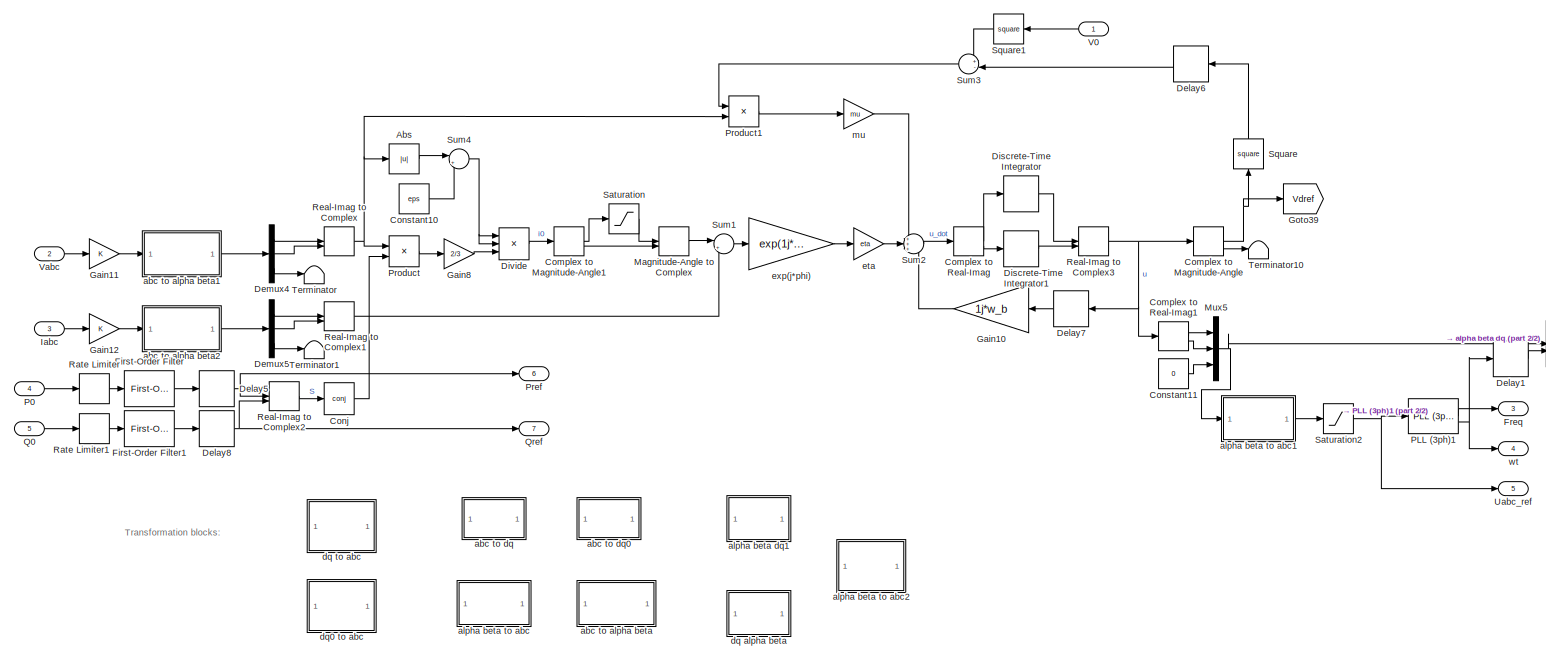
[diagram: MMC/uVOC - part 1/2, most of the canvas]
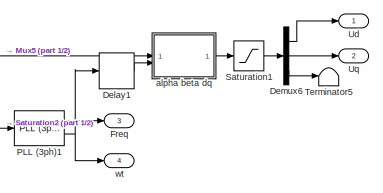
[diagram: MMC/uVOC - part 2/2, middle right region]
BLOCK [SubSystem] MMC/uVOC
BLOCK [Abs] MMC/uVOC/Abs
  SaturateOnIntegerOverflow = off
BLOCK [ComplexToMagnitudeAngle] MMC/uVOC/Complex to Magnitude-Angle
BLOCK [ComplexToMagnitudeAngle] MMC/uVOC/Complex to Magnitude-Angle1
BLOCK [ComplexToRealImag] MMC/uVOC/Complex to Real-Imag
BLOCK [ComplexToRealImag] MMC/uVOC/Complex to Real-Imag1
BLOCK [Math] MMC/uVOC/Conj
  Operator = conj
BLOCK [Constant] MMC/uVOC/Constant10
  SampleTime = Ts_Power
  Value = eps
BLOCK [Constant] MMC/uVOC/Constant11
  SampleTime = Ts_Power
  Value = 0
BLOCK [Delay] MMC/uVOC/Delay1
  DelayLength = 1
  InitialCondition = 50
  InputPortMap = u0
  InputProcessing = Columns as channels (frame based)
  SampleTime = Ts_Power
BLOCK [Delay] MMC/uVOC/Delay5
  DelayLength = 1
  InputPortMap = u0
  InputProcessing = Columns as channels (frame based)
  SampleTime = Ts_Power
BLOCK [Delay] MMC/uVOC/Delay6
  DelayLength = 1
  InitialCondition = 1
  InputPortMap = u0
  InputProcessing = Columns as channels (frame based)
  NameLocation = top
BLOCK [Delay] MMC/uVOC/Delay7
  DelayLength = 1
  InputPortMap = u0
  InputProcessing = Columns as channels (frame based)
  NameLocation = top
BLOCK [Delay] MMC/uVOC/Delay8
  DelayLength = 1
  InputPortMap = u0
  InputProcessing = Columns as channels (frame based)
  SampleTime = Ts_Power
BLOCK [Demux] MMC/uVOC/Demux4
  Outputs = 3
BLOCK [Demux] MMC/uVOC/Demux5
  Outputs = 3
BLOCK [Demux] MMC/uVOC/Demux6
  Outputs = 3
BLOCK [DiscreteIntegrator] MMC/uVOC/Discrete-Time Integrator
  ICPrevOutput = DiscIntNeverNeededParam
  ICPrevScaledInput = DiscIntNeverNeededParam
  InitialConditionSetting = Auto
  IntegratorMethod = Integration: Backward Euler
  SampleTime = -1
BLOCK [DiscreteIntegrator] MMC/uVOC/Discrete-Time Integrator1
  ICPrevOutput = DiscIntNeverNeededParam
  ICPrevScaledInput = DiscIntNeverNeededParam
  InitialCondition = -1
  InitialConditionSetting = Auto
  IntegratorMethod = Integration: Backward Euler
  SampleTime = -1
BLOCK [Product] MMC/uVOC/Divide
  Inputs = //*
BLOCK [Reference] MMC/uVOC/First-Order Filter  REF=spsFirstOrderFilterLib/First-Order
Filter
  LibrarySourceBlock = sps_lib/Control/Filters/First-Order\nFilter
  SourceBlock = spsFirstOrderFilterLib/First-Order\nFilter
  SourceType = First-Order Filter
BLOCK [Reference] MMC/uVOC/First-Order Filter1  REF=spsFirstOrderFilterLib/First-Order
Filter
  LibrarySourceBlock = sps_lib/Control/Filters/First-Order\nFilter
  SourceBlock = spsFirstOrderFilterLib/First-Order\nFilter
  SourceType = First-Order Filter
BLOCK [Outport] MMC/uVOC/Freq
  Port = 3
BLOCK [Gain] MMC/uVOC/Gain10
  Gain = 1j*w_b
  NameLocation = top
BLOCK [Gain] MMC/uVOC/Gain11
BLOCK [Gain] MMC/uVOC/Gain12
BLOCK [Gain] MMC/uVOC/Gain8
  Gain = 2/3
BLOCK [Goto] MMC/uVOC/Goto39
  Commented = on
  GotoTag = Vdref
BLOCK [Inport] MMC/uVOC/Iabc
  Port = 3
BLOCK [MagnitudeAngleToComplex] MMC/uVOC/Magnitude-Angle to Complex
BLOCK [Mux] MMC/uVOC/Mux5
  DisplayOption = bar
  Inputs = 3
BLOCK [Inport] MMC/uVOC/P0
  Port = 4
BLOCK [Reference] MMC/uVOC/PLL (3ph)1  REF=spsPLL3phLib/PLL
(3ph)
  LibrarySourceBlock = sps_lib/Control/PLL\n(3ph)
  SourceBlock = spsPLL3phLib/PLL\n(3ph)
  SourceType = PLL (3ph)
BLOCK [Outport] MMC/uVOC/Pref
  NameLocation = top
  Port = 6
BLOCK [Product] MMC/uVOC/Product
BLOCK [Product] MMC/uVOC/Product1
BLOCK [Inport] MMC/uVOC/Q0
  Port = 5
BLOCK [Outport] MMC/uVOC/Qref
  NameLocation = top
  Port = 7
BLOCK [RateLimiter] MMC/uVOC/Rate Limiter
  FallingSlewLimit = -10
  RisingSlewLimit = 10
  SampleTimeMode = inherited
BLOCK [RateLimiter] MMC/uVOC/Rate Limiter1
  FallingSlewLimit = -10
  RisingSlewLimit = 10
  SampleTimeMode = inherited
BLOCK [RealImagToComplex] MMC/uVOC/Real-Imag to Complex
BLOCK [RealImagToComplex] MMC/uVOC/Real-Imag to Complex1
BLOCK [RealImagToComplex] MMC/uVOC/Real-Imag to Complex2
BLOCK [RealImagToComplex] MMC/uVOC/Real-Imag to Complex3
BLOCK [Saturate] MMC/uVOC/Saturation
  LowerLimit = -1.2
  UpperLimit = 1.2
BLOCK [Saturate] MMC/uVOC/Saturation1
  LowerLimit = -2
  UpperLimit = 2
BLOCK [Saturate] MMC/uVOC/Saturation2
  LowerLimit = -2
  UpperLimit = 2
BLOCK [Math] MMC/uVOC/Square
  NameLocation = right
  Operator = square
BLOCK [Math] MMC/uVOC/Square1
  NameLocation = top
  Operator = square
BLOCK [Sum] MMC/uVOC/Sum1
  Inputs = |+-
BLOCK [Sum] MMC/uVOC/Sum2
  Inputs = +++
BLOCK [Sum] MMC/uVOC/Sum3
  Inputs = +-|
  NameLocation = top
BLOCK [Sum] MMC/uVOC/Sum4
  Inputs = |++
BLOCK [Terminator] MMC/uVOC/Terminator
BLOCK [Terminator] MMC/uVOC/Terminator1
BLOCK [Terminator] MMC/uVOC/Terminator10
BLOCK [Terminator] MMC/uVOC/Terminator5
BLOCK [Outport] MMC/uVOC/Uabc_ref
  Port = 5
BLOCK [Outport] MMC/uVOC/Ud
BLOCK [Outport] MMC/uVOC/Uq
  Port = 2
BLOCK [Inport] MMC/uVOC/V0
BLOCK [Inport] MMC/uVOC/Vabc
  Port = 2
BLOCK [SubSystem] MMC/uVOC/abc to alpha beta
  Commented = on
BLOCK [Demux] MMC/uVOC/abc to alpha beta/Demux
  Outputs = 3
BLOCK [Gain] MMC/uVOC/abc to alpha beta/Gain
  Gain = 2/3
BLOCK [Gain] MMC/uVOC/abc to alpha beta/Gain1
  Gain = 1/2
BLOCK [Gain] MMC/uVOC/abc to alpha beta/Gain2
  Gain = sqrt(3)/2
BLOCK [Gain] MMC/uVOC/abc to alpha beta/Gain3
  Gain = 0
BLOCK [Gain] MMC/uVOC/abc to alpha beta/Gain4
  Gain = 1/2
BLOCK [Gain] MMC/uVOC/abc to alpha beta/Gain5
  Gain = 1/2
BLOCK [Gain] MMC/uVOC/abc to alpha beta/Gain6
  Gain = sqrt(3)/2
BLOCK [Mux] MMC/uVOC/abc to alpha beta/Mux
  DisplayOption = bar
  Inputs = 3
BLOCK [Sum] MMC/uVOC/abc to alpha beta/Subtract
  IconShape = rectangular
  Inputs = +--
BLOCK [Sum] MMC/uVOC/abc to alpha beta/Subtract1
  IconShape = rectangular
  Inputs = ++-
BLOCK [Sum] MMC/uVOC/abc to alpha beta/Subtract2
  IconShape = rectangular
  Inputs = +++
BLOCK [Inport] MMC/uVOC/abc to alpha beta/abc
BLOCK [Outport] MMC/uVOC/abc to alpha beta/alpha beta 0
BLOCK [SubSystem] MMC/uVOC/abc to alpha beta1
BLOCK [Demux] MMC/uVOC/abc to alpha beta1/Demux
  Outputs = 3
BLOCK [Gain] MMC/uVOC/abc to alpha beta1/Gain
  Gain = 2/3
BLOCK [Gain] MMC/uVOC/abc to alpha beta1/Gain1
  Gain = 1/2
BLOCK [Gain] MMC/uVOC/abc to alpha beta1/Gain2
  Gain = sqrt(3)/2
BLOCK [Gain] MMC/uVOC/abc to alpha beta1/Gain3
  Gain = 0
BLOCK [Gain] MMC/uVOC/abc to alpha beta1/Gain4
  Gain = 1/2
BLOCK [Gain] MMC/uVOC/abc to alpha beta1/Gain5
  Gain = 1/2
BLOCK [Gain] MMC/uVOC/abc to alpha beta1/Gain6
  Gain = sqrt(3)/2
BLOCK [Mux] MMC/uVOC/abc to alpha beta1/Mux
  DisplayOption = bar
  Inputs = 3
BLOCK [Sum] MMC/uVOC/abc to alpha beta1/Subtract
  IconShape = rectangular
  Inputs = +--
BLOCK [Sum] MMC/uVOC/abc to alpha beta1/Subtract1
  IconShape = rectangular
  Inputs = ++-
BLOCK [Sum] MMC/uVOC/abc to alpha beta1/Subtract2
  IconShape = rectangular
  Inputs = +++
BLOCK [Inport] MMC/uVOC/abc to alpha beta1/abc
BLOCK [Outport] MMC/uVOC/abc to alpha beta1/alpha beta 0
BLOCK [SubSystem] MMC/uVOC/abc to alpha beta2
BLOCK [Demux] MMC/uVOC/abc to alpha beta2/Demux
  Outputs = 3
BLOCK [Gain] MMC/uVOC/abc to alpha beta2/Gain
  Gain = 2/3
BLOCK [Gain] MMC/uVOC/abc to alpha beta2/Gain1
  Gain = 1/2
BLOCK [Gain] MMC/uVOC/abc to alpha beta2/Gain2
  Gain = sqrt(3)/2
BLOCK [Gain] MMC/uVOC/abc to alpha beta2/Gain3
  Gain = 0
BLOCK [Gain] MMC/uVOC/abc to alpha beta2/Gain4
  Gain = 1/2
BLOCK [Gain] MMC/uVOC/abc to alpha beta2/Gain5
  Gain = 1/2
BLOCK [Gain] MMC/uVOC/abc to alpha beta2/Gain6
  Gain = sqrt(3)/2
BLOCK [Mux] MMC/uVOC/abc to alpha beta2/Mux
  DisplayOption = bar
  Inputs = 3
BLOCK [Sum] MMC/uVOC/abc to alpha beta2/Subtract
  IconShape = rectangular
  Inputs = +--
BLOCK [Sum] MMC/uVOC/abc to alpha beta2/Subtract1
  IconShape = rectangular
  Inputs = ++-
BLOCK [Sum] MMC/uVOC/abc to alpha beta2/Subtract2
  IconShape = rectangular
  Inputs = +++
BLOCK [Inport] MMC/uVOC/abc to alpha beta2/abc
BLOCK [Outport] MMC/uVOC/abc to alpha beta2/alpha beta 0
BLOCK [SubSystem] MMC/uVOC/abc to dq
  Commented = on
BLOCK [Demux] MMC/uVOC/abc to dq/Demux
  Outputs = 3
BLOCK [Gain] MMC/uVOC/abc to dq/Gain
  Gain = 2/3
BLOCK [Gain] MMC/uVOC/abc to dq/Gain1
  Gain = 1/3
BLOCK [Gain] MMC/uVOC/abc to dq/Gain2
  Gain = 1/sqrt(3)
BLOCK [Mux] MMC/uVOC/abc to dq/Mux
  DisplayOption = bar
  Inputs = 2
BLOCK [Product] MMC/uVOC/abc to dq/Product
BLOCK [Product] MMC/uVOC/abc to dq/Product1
BLOCK [Product] MMC/uVOC/abc to dq/Product2
BLOCK [Product] MMC/uVOC/abc to dq/Product3
BLOCK [Sum] MMC/uVOC/abc to dq/Subtract
  IconShape = rectangular
BLOCK [Sum] MMC/uVOC/abc to dq/Subtract1
  IconShape = rectangular
  Inputs = +-
BLOCK [Sum] MMC/uVOC/abc to dq/Subtract2
  IconShape = rectangular
  Inputs = +-
BLOCK [Sum] MMC/uVOC/abc to dq/Subtract3
  IconShape = rectangular
BLOCK [Sum] MMC/uVOC/abc to dq/Subtract4
  IconShape = rectangular
  Inputs = -+
BLOCK [Trigonometry] MMC/uVOC/abc to dq/Trigonometric Function
BLOCK [Trigonometry] MMC/uVOC/abc to dq/Trigonometric Function1
  Operator = cos
BLOCK [Inport] MMC/uVOC/abc to dq/abc
BLOCK [Outport] MMC/uVOC/abc to dq/dq
BLOCK [Inport] MMC/uVOC/abc to dq/theta
  Port = 2
BLOCK [SubSystem] MMC/uVOC/abc to dq0
  Commented = on
BLOCK [Demux] MMC/uVOC/abc to dq0/Demux
  Outputs = 3
BLOCK [Gain] MMC/uVOC/abc to dq0/Gain
  Gain = 2/3
BLOCK [Gain] MMC/uVOC/abc to dq0/Gain1
  Gain = 1/3
BLOCK [Gain] MMC/uVOC/abc to dq0/Gain2
  Gain = 1/sqrt(3)
BLOCK [Gain] MMC/uVOC/abc to dq0/Gain3
  Gain = 1/2
BLOCK [Gain] MMC/uVOC/abc to dq0/Gain4
  Gain = 1/2
BLOCK [Gain] MMC/uVOC/abc to dq0/Gain5
  Gain = 1/2
BLOCK [Mux] MMC/uVOC/abc to dq0/Mux
  DisplayOption = bar
  Inputs = 3
BLOCK [Product] MMC/uVOC/abc to dq0/Product
BLOCK [Product] MMC/uVOC/abc to dq0/Product1
BLOCK [Product] MMC/uVOC/abc to dq0/Product2
BLOCK [Product] MMC/uVOC/abc to dq0/Product3
BLOCK [Sum] MMC/uVOC/abc to dq0/Subtract
  IconShape = rectangular
BLOCK [Sum] MMC/uVOC/abc to dq0/Subtract1
  IconShape = rectangular
  Inputs = +-
BLOCK [Sum] MMC/uVOC/abc to dq0/Subtract2
  IconShape = rectangular
  Inputs = +-
BLOCK [Sum] MMC/uVOC/abc to dq0/Subtract3
  IconShape = rectangular
BLOCK [Sum] MMC/uVOC/abc to dq0/Subtract4
  IconShape = rectangular
  Inputs = -+
BLOCK [Sum] MMC/uVOC/abc to dq0/Subtract5
  IconShape = rectangular
  Inputs = +++
BLOCK [Trigonometry] MMC/uVOC/abc to dq0/Trigonometric Function
BLOCK [Trigonometry] MMC/uVOC/abc to dq0/Trigonometric Function1
  Operator = cos
BLOCK [Inport] MMC/uVOC/abc to dq0/abc
BLOCK [Outport] MMC/uVOC/abc to dq0/dq0
BLOCK [Inport] MMC/uVOC/abc to dq0/theta
  Port = 2
BLOCK [SubSystem] MMC/uVOC/alpha beta dq
BLOCK [Sum] MMC/uVOC/alpha beta dq/Add1
  IconShape = rectangular
BLOCK [Sum] MMC/uVOC/alpha beta dq/Add2
  IconShape = rectangular
  Inputs = -+
BLOCK [Constant] MMC/uVOC/alpha beta dq/Constant
  Value = 0
BLOCK [Demux] MMC/uVOC/alpha beta dq/Demux
  Outputs = 3
BLOCK [Mux] MMC/uVOC/alpha beta dq/Mux
  DisplayOption = bar
  Inputs = 3
BLOCK [Product] MMC/uVOC/alpha beta dq/Product
BLOCK [Product] MMC/uVOC/alpha beta dq/Product1
BLOCK [Product] MMC/uVOC/alpha beta dq/Product2
BLOCK [Product] MMC/uVOC/alpha beta dq/Product3
BLOCK [Terminator] MMC/uVOC/alpha beta dq/Terminator
BLOCK [Trigonometry] MMC/uVOC/alpha beta dq/Trigonometric Function
BLOCK [Trigonometry] MMC/uVOC/alpha beta dq/Trigonometric Function1
  Operator = cos
BLOCK [Inport] MMC/uVOC/alpha beta dq/alpha beta 0
BLOCK [Outport] MMC/uVOC/alpha beta dq/dq0
BLOCK [Inport] MMC/uVOC/alpha beta dq/theta
  Port = 2
BLOCK [SubSystem] MMC/uVOC/alpha beta dq1
  Commented = on
BLOCK [Sum] MMC/uVOC/alpha beta dq1/Add1
  IconShape = rectangular
BLOCK [Sum] MMC/uVOC/alpha beta dq1/Add2
  IconShape = rectangular
  Inputs = -+
BLOCK [Constant] MMC/uVOC/alpha beta dq1/Constant
  Value = 0
BLOCK [Demux] MMC/uVOC/alpha beta dq1/Demux
  Outputs = 3
BLOCK [Mux] MMC/uVOC/alpha beta dq1/Mux
  DisplayOption = bar
  Inputs = 3
BLOCK [Product] MMC/uVOC/alpha beta dq1/Product
BLOCK [Product] MMC/uVOC/alpha beta dq1/Product1
BLOCK [Product] MMC/uVOC/alpha beta dq1/Product2
BLOCK [Product] MMC/uVOC/alpha beta dq1/Product3
BLOCK [Terminator] MMC/uVOC/alpha beta dq1/Terminator
BLOCK [Trigonometry] MMC/uVOC/alpha beta dq1/Trigonometric Function
BLOCK [Trigonometry] MMC/uVOC/alpha beta dq1/Trigonometric Function1
  Operator = cos
BLOCK [Inport] MMC/uVOC/alpha beta dq1/alpha beta 0
BLOCK [Outport] MMC/uVOC/alpha beta dq1/dq0
BLOCK [Inport] MMC/uVOC/alpha beta dq1/theta
  Port = 2
BLOCK [SubSystem] MMC/uVOC/alpha beta to abc
  Commented = on
BLOCK [Demux] MMC/uVOC/alpha beta to abc/Demux
  Outputs = 3
BLOCK [Gain] MMC/uVOC/alpha beta to abc/Gain
BLOCK [Gain] MMC/uVOC/alpha beta to abc/Gain1
  Gain = 1/2
BLOCK [Gain] MMC/uVOC/alpha beta to abc/Gain2
  Gain = sqrt(3)/2
BLOCK [Gain] MMC/uVOC/alpha beta to abc/Gain3
  Gain = 0
BLOCK [Mux] MMC/uVOC/alpha beta to abc/Mux
  DisplayOption = bar
  Inputs = 3
BLOCK [Sum] MMC/uVOC/alpha beta to abc/Subtract
  IconShape = rectangular
  Inputs = +++
BLOCK [Sum] MMC/uVOC/alpha beta to abc/Subtract1
  IconShape = rectangular
  Inputs = -++
BLOCK [Sum] MMC/uVOC/alpha beta to abc/Subtract2
  IconShape = rectangular
  Inputs = --+
BLOCK [Outport] MMC/uVOC/alpha beta to abc/abc
BLOCK [Inport] MMC/uVOC/alpha beta to abc/alpha beta 0
BLOCK [SubSystem] MMC/uVOC/alpha beta to abc1
BLOCK [Demux] MMC/uVOC/alpha beta to abc1/Demux
  Outputs = 3
BLOCK [Gain] MMC/uVOC/alpha beta to abc1/Gain
BLOCK [Gain] MMC/uVOC/alpha beta to abc1/Gain1
  Gain = 1/2
BLOCK [Gain] MMC/uVOC/alpha beta to abc1/Gain2
  Gain = sqrt(3)/2
BLOCK [Gain] MMC/uVOC/alpha beta to abc1/Gain3
  Gain = 0
BLOCK [Mux] MMC/uVOC/alpha beta to abc1/Mux
  DisplayOption = bar
  Inputs = 3
BLOCK [Sum] MMC/uVOC/alpha beta to abc1/Subtract
  IconShape = rectangular
  Inputs = +++
BLOCK [Sum] MMC/uVOC/alpha beta to abc1/Subtract1
  IconShape = rectangular
  Inputs = -++
BLOCK [Sum] MMC/uVOC/alpha beta to abc1/Subtract2
  IconShape = rectangular
  Inputs = --+
BLOCK [Outport] MMC/uVOC/alpha beta to abc1/abc
BLOCK [Inport] MMC/uVOC/alpha beta to abc1/alpha beta 0
BLOCK [SubSystem] MMC/uVOC/alpha beta to abc2
  Commented = on
BLOCK [Demux] MMC/uVOC/alpha beta to abc2/Demux
  Outputs = 2
BLOCK [Gain] MMC/uVOC/alpha beta to abc2/Gain
  Gain = 1/2
BLOCK [Gain] MMC/uVOC/alpha beta to abc2/Gain1
  Gain = sqrt(3)/2
BLOCK [Mux] MMC/uVOC/alpha beta to abc2/Mux
  DisplayOption = bar
  Inputs = 3
BLOCK [Product] MMC/uVOC/alpha beta to abc2/Product
BLOCK [Product] MMC/uVOC/alpha beta to abc2/Product1
BLOCK [Product] MMC/uVOC/alpha beta to abc2/Product2
BLOCK [Product] MMC/uVOC/alpha beta to abc2/Product3
BLOCK [Sum] MMC/uVOC/alpha beta to abc2/Subtract
  IconShape = rectangular
  Inputs = +-
BLOCK [Sum] MMC/uVOC/alpha beta to abc2/Subtract1
  IconShape = rectangular
BLOCK [Sum] MMC/uVOC/alpha beta to abc2/Subtract2
  IconShape = rectangular
  Inputs = -+
BLOCK [Sum] MMC/uVOC/alpha beta to abc2/Subtract3
  IconShape = rectangular
  Inputs = --
BLOCK [Trigonometry] MMC/uVOC/alpha beta to abc2/Trigonometric Function
BLOCK [Trigonometry] MMC/uVOC/alpha beta to abc2/Trigonometric Function1
  Operator = cos
BLOCK [Outport] MMC/uVOC/alpha beta to abc2/abc
BLOCK [Inport] MMC/uVOC/alpha beta to abc2/alpha beta
  Port = 2
BLOCK [Inport] MMC/uVOC/alpha beta to abc2/theta
BLOCK [SubSystem] MMC/uVOC/dq alpha beta
  Commented = on
BLOCK [Sum] MMC/uVOC/dq alpha beta/Add1
  IconShape = rectangular
  Inputs = +-
BLOCK [Sum] MMC/uVOC/dq alpha beta/Add2
  IconShape = rectangular
BLOCK [Constant] MMC/uVOC/dq alpha beta/Constant
  Value = 0
BLOCK [Demux] MMC/uVOC/dq alpha beta/Demux
  Outputs = 3
BLOCK [Mux] MMC/uVOC/dq alpha beta/Mux
  DisplayOption = bar
  Inputs = 3
BLOCK [Product] MMC/uVOC/dq alpha beta/Product
BLOCK [Product] MMC/uVOC/dq alpha beta/Product1
BLOCK [Product] MMC/uVOC/dq alpha beta/Product2
BLOCK [Product] MMC/uVOC/dq alpha beta/Product3
BLOCK [Terminator] MMC/uVOC/dq alpha beta/Terminator
BLOCK [Trigonometry] MMC/uVOC/dq alpha beta/Trigonometric Function
BLOCK [Trigonometry] MMC/uVOC/dq alpha beta/Trigonometric Function1
  Operator = cos
BLOCK [Outport] MMC/uVOC/dq alpha beta/alpha beta 0
BLOCK [Inport] MMC/uVOC/dq alpha beta/dq0
BLOCK [Inport] MMC/uVOC/dq alpha beta/theta
  Port = 2
BLOCK [SubSystem] MMC/uVOC/dq to abc
  Commented = on
BLOCK [Demux] MMC/uVOC/dq to abc/Demux
  Outputs = 2
BLOCK [Gain] MMC/uVOC/dq to abc/Gain
  Gain = 1/2
BLOCK [Gain] MMC/uVOC/dq to abc/Gain1
  Gain = sqrt(3)/2
BLOCK [Mux] MMC/uVOC/dq to abc/Mux
  DisplayOption = bar
  Inputs = 3
BLOCK [Product] MMC/uVOC/dq to abc/Product
BLOCK [Product] MMC/uVOC/dq to abc/Product1
BLOCK [Product] MMC/uVOC/dq to abc/Product2
BLOCK [Product] MMC/uVOC/dq to abc/Product3
BLOCK [Sum] MMC/uVOC/dq to abc/Subtract
  IconShape = rectangular
  Inputs = +-
BLOCK [Sum] MMC/uVOC/dq to abc/Subtract1
  IconShape = rectangular
BLOCK [Sum] MMC/uVOC/dq to abc/Subtract2
  IconShape = rectangular
  Inputs = -+
BLOCK [Sum] MMC/uVOC/dq to abc/Subtract3
  IconShape = rectangular
  Inputs = --
BLOCK [Trigonometry] MMC/uVOC/dq to abc/Trigonometric Function
BLOCK [Trigonometry] MMC/uVOC/dq to abc/Trigonometric Function1
  Operator = cos
BLOCK [Outport] MMC/uVOC/dq to abc/abc
BLOCK [Inport] MMC/uVOC/dq to abc/dq
  Port = 2
BLOCK [Inport] MMC/uVOC/dq to abc/theta
BLOCK [SubSystem] MMC/uVOC/dq0 to abc
  Commented = on
BLOCK [Sum] MMC/uVOC/dq0 to abc/Add
  IconShape = rectangular
BLOCK [Demux] MMC/uVOC/dq0 to abc/Demux
  Outputs = 3
BLOCK [Gain] MMC/uVOC/dq0 to abc/Gain
  Gain = 1/2
BLOCK [Gain] MMC/uVOC/dq0 to abc/Gain1
  Gain = sqrt(3)/2
BLOCK [Mux] MMC/uVOC/dq0 to abc/Mux
  DisplayOption = bar
  Inputs = 3
BLOCK [Product] MMC/uVOC/dq0 to abc/Product
BLOCK [Product] MMC/uVOC/dq0 to abc/Product1
BLOCK [Product] MMC/uVOC/dq0 to abc/Product2
BLOCK [Product] MMC/uVOC/dq0 to abc/Product3
BLOCK [Sum] MMC/uVOC/dq0 to abc/Subtract
  IconShape = rectangular
  Inputs = +-
BLOCK [Sum] MMC/uVOC/dq0 to abc/Subtract1
  IconShape = rectangular
BLOCK [Sum] MMC/uVOC/dq0 to abc/Subtract2
  IconShape = rectangular
  Inputs = -++
BLOCK [Sum] MMC/uVOC/dq0 to abc/Subtract3
  IconShape = rectangular
  Inputs = --+
BLOCK [Trigonometry] MMC/uVOC/dq0 to abc/Trigonometric Function
BLOCK [Trigonometry] MMC/uVOC/dq0 to abc/Trigonometric Function1
  Operator = cos
BLOCK [Outport] MMC/uVOC/dq0 to abc/abc
BLOCK [Inport] MMC/uVOC/dq0 to abc/dq0
  Port = 2
BLOCK [Inport] MMC/uVOC/dq0 to abc/theta
BLOCK [Gain] MMC/uVOC/eta
  Gain = eta
BLOCK [Gain] MMC/uVOC/exp(j*phi)
  Gain = exp(1j*phi_r)
BLOCK [Gain] MMC/uVOC/mu
  Gain = mu
BLOCK [Outport] MMC/uVOC/wt
  Port = 4
BLOCK [Mux] Mux
  DisplayOption = bar
  Inputs = 3
BLOCK [Reference] PCC  REF=spsThreePhaseVIMeasurementLib/Three-Phase
V-I Measurement
  LibrarySourceBlock = sps_lib/Sensors and Measurements/Three-Phase\nV-I Measurement
  SourceBlock = spsThreePhaseVIMeasurementLib/Three-Phase\nV-I Measurement
  SourceType = Three-Phase VI Measurement
BLOCK [Reference] Three-Phase Breaker  REF=spsThreePhaseBreakerLib/Three-Phase Breaker
  LibrarySourceBlock = sps_lib/Power Grid Elements/Three-Phase Breaker
  NameLocation = left
  SourceBlock = spsThreePhaseBreakerLib/Three-Phase Breaker
  SourceType = Three-Phase Breaker
BLOCK [Reference] Three-Phase Programmable Voltage Source  REF=spsThreePhaseProgrammableVoltageSourceLib/Three-Phase
Programmable
Voltage Source
  LibrarySourceBlock = sps_lib/Sources/Three-Phase\nProgrammable\nVoltage Source
  SourceBlock = spsThreePhaseProgrammableVoltageSourceLib/Three-Phase\nProgrammable\nVoltage Source
  SourceType = Three-Phase Programmable Voltage Source
BLOCK [Reference] Three-Phase Series RLC Branch  REF=spsThreePhaseSeriesRLCBranchLib/Three-Phase
Series RLC Branch
  AttributesFormatString = \n
  LibrarySourceBlock = sps_lib/Passives/Three-Phase\nSeries RLC Branch
  SourceBlock = spsThreePhaseSeriesRLCBranchLib/Three-Phase\nSeries RLC Branch
  SourceType = Three-Phase Series RLC Branch
BLOCK [Reference] Three-Phase Series RLC Load  REF=spsThreePhaseSeriesRLCLoadLib/Three-Phase
Series RLC Load
  AttributesFormatString = \n
  LibrarySourceBlock = sps_lib/Passives/Three-Phase\nSeries RLC Load
  SourceBlock = spsThreePhaseSeriesRLCLoadLib/Three-Phase\nSeries RLC Load
  SourceType = Three-Phase Series RLC Load
BLOCK [Reference] Three-Phase Series RLC Load1  REF=spsThreePhaseSeriesRLCLoadLib/Three-Phase
Series RLC Load
  AttributesFormatString = \n
  LibrarySourceBlock = sps_lib/Passives/Three-Phase\nSeries RLC Load
  SourceBlock = spsThreePhaseSeriesRLCLoadLib/Three-Phase\nSeries RLC Load
  SourceType = Three-Phase Series RLC Load
BLOCK [ToWorkspace] To Workspace
  MaxDataPoints = inf
  NameLocation = top
  SampleTime = -1
  Save2DSignal = 2-D array (concatenate along first dimension)
  SaveFormat = Structure With Time
  VariableName = Vab
BLOCK [ToWorkspace] To Workspace1
  MaxDataPoints = inf
  NameLocation = top
  SampleTime = -1
  Save2DSignal = 2-D array (concatenate along first dimension)
  SaveFormat = Structure With Time
  VariableName = Iab
BLOCK [ToWorkspace] To Workspace2
  FixptAsFi = on
  MaxDataPoints = inf
  SampleTime = -1
  SaveFormat = Structure With Time
  VariableName = Vac
BLOCK [Reference] Voltage Measurement  REF=spsVoltageMeasurementLib/Voltage Measurement
  LibrarySourceBlock = sps_lib/Sensors and Measurements/Voltage Measurement
  SourceBlock = spsVoltageMeasurementLib/Voltage Measurement
  SourceType = Voltage Measurement
  UserDataPersistent = on
BLOCK [Reference] Voltage Measurement1  REF=spsVoltageMeasurementLib/Voltage Measurement
  LibrarySourceBlock = sps_lib/Sensors and Measurements/Voltage Measurement
  SourceBlock = spsVoltageMeasurementLib/Voltage Measurement
  SourceType = Voltage Measurement
  UserDataPersistent = on
BLOCK [Reference] Voltage Measurement2  REF=spsVoltageMeasurementLib/Voltage Measurement
  LibrarySourceBlock = sps_lib/Sensors and Measurements/Voltage Measurement
  SourceBlock = spsVoltageMeasurementLib/Voltage Measurement
  SourceType = Voltage Measurement
  UserDataPersistent = on
BLOCK [Reference] powergui  REF=sps_lib/powergui
  LibrarySourceBlock = sps_lib/powergui
  Priority = 1
  SourceBlock = sps_lib/powergui
  SourceType = PSB option menu block
ANNOTATION (root): powerFFT
ANNOTATION MMC: NLP and firing signal generation
ANNOTATION MMC: circuit
ANNOTATION MMC: controllers
ANNOTATION MMC: measurements and to pu
ANNOTATION MMC/modulation/Sorting na: A secrect, unintelligible, confusing and insrutable function with \if inside \for inside \if inside \if inside \if
ANNOTATION MMC/modulation/Sorting nb: A secrect, unintelligible, confusing and insrutable function with \if inside \for inside \if inside \if inside \if
ANNOTATION MMC/modulation/Sorting nc: A secrect, unintelligible, confusing and insrutable function with \if inside \for inside \if inside \if inside \if
ANNOTATION MMC/modulation/Sorting pa: A secrect, unintelligible, confusing and insrutable function with \if inside \for inside \if inside \if inside \if
ANNOTATION MMC/modulation/Sorting pb: A secrect, unintelligible, confusing and insrutable function with \if inside \for inside \if inside \if inside \if
ANNOTATION MMC/modulation/Sorting pc: A secrect, unintelligible, confusing and insrutable function with \if inside \for inside \if inside \if inside \if
ANNOTATION MMC/uVOC: Transformation blocks:
LINE Gain1:1 -> To Workspace1:1
LINE Gain:1 -> To Workspace:1
NET MMC/Abs:1 -> MMC/Scope2:1, MMC/To Workspace7:1
LINE MMC/Circulating Current Calculator/Digital Clock:1 -> MMC/Circulating Current Calculator/Product:2
LINE MMC/Circulating Current Calculator/Gain1:1 -> MMC/Circulating Current Calculator/Saturation:1
LINE MMC/Circulating Current Calculator/Gain2:1 -> MMC/Circulating Current Calculator/Product:1
NET MMC/Circulating Current Calculator/Gain:1 -> MMC/Circulating Current Calculator/Mean:1, MMC/Circulating Current Calculator/Sum3:2
LINE MMC/Circulating Current Calculator/Mean:1 -> MMC/Circulating Current Calculator/Sum3:1
LINE MMC/Circulating Current Calculator/Mux1:1 -> MMC/Circulating Current Calculator/Gain:1
LINE MMC/Circulating Current Calculator/Product:1 -> MMC/Circulating Current Calculator/abc to dq1:2
NET MMC/Circulating Current Calculator/Saturation:1 -> MMC/Circulating Current Calculator/Scope1:1, MMC/Circulating Current Calculator/abc to dq1:1
LINE MMC/Circulating Current Calculator/Sum1:1 -> MMC/Circulating Current Calculator/Mux1:2
LINE MMC/Circulating Current Calculator/Sum2:1 -> MMC/Circulating Current Calculator/Mux1:3
LINE MMC/Circulating Current Calculator/Sum3:1 -> MMC/Circulating Current Calculator/Gain1:1
NET MMC/Circulating Current Calculator/Sum:1 -> MMC/Circulating Current Calculator/Mux1:1, MMC/Circulating Current Calculator/Scope:1
NET MMC/Circulating Current Calculator/abc to dq1/Demux:1 -> MMC/Circulating Current Calculator/abc to dq1/Gain3:1, MMC/Circulating Current Calculator/abc to dq1/Gain:1
NET MMC/Circulating Current Calculator/abc to dq1/Demux:2 -> MMC/Circulating Current Calculator/abc to dq1/Gain4:1, MMC/Circulating Current Calculator/abc to dq1/Subtract1:1, MMC/Circulating Current Calculator/abc to dq1/Subtract:1
NET MMC/Circulating Current Calculator/abc to dq1/Demux:3 -> MMC/Circulating Current Calculator/abc to dq1/Gain5:1, MMC/Circulating Current Calculator/abc to dq1/Subtract1:2, MMC/Circulating Current Calculator/abc to dq1/Subtract:2
LINE MMC/Circulating Current Calculator/abc to dq1/Gain1:1 -> MMC/Circulating Current Calculator/abc to dq1/Subtract2:2
LINE MMC/Circulating Current Calculator/abc to dq1/Gain2:1 -> MMC/Circulating Current Calculator/abc to dq1/Product1:1
LINE MMC/Circulating Current Calculator/abc to dq1/Gain3:1 -> MMC/Circulating Current Calculator/abc to dq1/Subtract5:1
LINE MMC/Circulating Current Calculator/abc to dq1/Gain4:1 -> MMC/Circulating Current Calculator/abc to dq1/Subtract5:2
LINE MMC/Circulating Current Calculator/abc to dq1/Gain5:1 -> MMC/Circulating Current Calculator/abc to dq1/Subtract5:3
LINE MMC/Circulating Current Calculator/abc to dq1/Gain:1 -> MMC/Circulating Current Calculator/abc to dq1/Subtract2:1
LINE MMC/Circulating Current Calculator/abc to dq1/Mux:1 -> MMC/Circulating Current Calculator/abc to dq1/dq0:1
LINE MMC/Circulating Current Calculator/abc to dq1/Product1:1 -> MMC/Circulating Current Calculator/abc to dq1/Subtract3:2
LINE MMC/Circulating Current Calculator/abc to dq1/Product2:1 -> MMC/Circulating Current Calculator/abc to dq1/Subtract4:1
LINE MMC/Circulating Current Calculator/abc to dq1/Product3:1 -> MMC/Circulating Current Calculator/abc to dq1/Subtract4:2
LINE MMC/Circulating Current Calculator/abc to dq1/Product:1 -> MMC/Circulating Current Calculator/abc to dq1/Subtract3:1
LINE MMC/Circulating Current Calculator/abc to dq1/Subtract1:1 -> MMC/Circulating Current Calculator/abc to dq1/Gain2:1
NET MMC/Circulating Current Calculator/abc to dq1/Subtract2:1 -> MMC/Circulating Current Calculator/abc to dq1/Product2:1, MMC/Circulating Current Calculator/abc to dq1/Product:1
LINE MMC/Circulating Current Calculator/abc to dq1/Subtract3:1 -> MMC/Circulating Current Calculator/abc to dq1/Mux:1
LINE MMC/Circulating Current Calculator/abc to dq1/Subtract4:1 -> MMC/Circulating Current Calculator/abc to dq1/Mux:2
LINE MMC/Circulating Current Calculator/abc to dq1/Subtract5:1 -> MMC/Circulating Current Calculator/abc to dq1/Mux:3
LINE MMC/Circulating Current Calculator/abc to dq1/Subtract:1 -> MMC/Circulating Current Calculator/abc to dq1/Gain1:1
NET MMC/Circulating Current Calculator/abc to dq1/Trigonometric Function1:1 -> MMC/Circulating Current Calculator/abc to dq1/Product3:2, MMC/Circulating Current Calculator/abc to dq1/Product:2
NET MMC/Circulating Current Calculator/abc to dq1/Trigonometric Function:1 -> MMC/Circulating Current Calculator/abc to dq1/Product1:2, MMC/Circulating Current Calculator/abc to dq1/Product2:2
LINE MMC/Circulating Current Calculator/abc to dq1/abc:1 -> MMC/Circulating Current Calculator/abc to dq1/Demux:1
NET MMC/Circulating Current Calculator/abc to dq1/theta:1 -> MMC/Circulating Current Calculator/abc to dq1/Trigonometric Function1:1, MMC/Circulating Current Calculator/abc to dq1/Trigonometric Function:1
LINE MMC/Circulating Current Calculator/abc to dq1:1 -> MMC/Circulating Current Calculator/icircdq0:1
LINE MMC/Circulating Current Calculator/ina:1 -> MMC/Circulating Current Calculator/Sum:2
LINE MMC/Circulating Current Calculator/inb:1 -> MMC/Circulating Current Calculator/Sum1:2
LINE MMC/Circulating Current Calculator/inc:1 -> MMC/Circulating Current Calculator/Sum2:2
LINE MMC/Circulating Current Calculator/ipa:1 -> MMC/Circulating Current Calculator/Sum:1
LINE MMC/Circulating Current Calculator/ipb:1 -> MMC/Circulating Current Calculator/Sum1:1
LINE MMC/Circulating Current Calculator/ipc:1 -> MMC/Circulating Current Calculator/Sum2:1
LINE MMC/Circulating Current Calculator/w:1 -> MMC/Circulating Current Calculator/Gain2:1
LINE MMC/Circulating Current Calculator:1 -> MMC/Goto26:1
LINE MMC/Constant12:1 -> MMC/Zero-Order Hold:1
NET MMC/Constant13:1 -> MMC/Goto15:1, MMC/Goto16:1
LINE MMC/Constant1:1 -> MMC/Half-Bridge MMC1:2
LINE MMC/Constant2:1 -> MMC/Half-Bridge MMC2:2
LINE MMC/Constant3:1 -> MMC/Half-Bridge MMC3:2
LINE MMC/Constant4:1 -> MMC/Half-Bridge MMC4:2
LINE MMC/Constant5:1 -> MMC/Half-Bridge MMC5:2
LINE MMC/Constant6:1 -> MMC/Mux:3
LINE MMC/Constant7:1 -> MMC/uVOC:4
LINE MMC/Constant8:1 -> MMC/uVOC:5
LINE MMC/Constant:1 -> MMC/Half-Bridge MMC:2
NET MMC/Current Measurement1:1 -> MMC/Goto20:1, MMC/Scope20:1, MMC/To Workspace8:1
LINE MMC/Current Measurement2:1 -> MMC/Goto21:1
LINE MMC/Current Measurement3:1 -> MMC/Goto22:1
LINE MMC/Current Measurement4:1 -> MMC/Goto23:1
LINE MMC/Current Measurement5:1 -> MMC/Goto24:1
LINE MMC/Current Measurement6:1 -> MMC/Goto25:1
NET MMC/Current Measurement:1 -> MMC/Scope19:1, MMC/Terminator8:1
LINE MMC/Delay1:1 -> MMC/Goto7:1
LINE MMC/Delay4:1 -> MMC/Goto34:1
LINE MMC/Delay:1 -> MMC/Goto6:1
NET MMC/Demux2:1 -> MMC/Scope8:1, MMC/circulating current controller:1
NET MMC/Demux2:2 -> MMC/Scope8:2, MMC/circulating current controller:2
LINE MMC/Demux2:3 -> MMC/Terminator6:1
LINE MMC/Demux3:1 -> MMC/Mux6:2
LINE MMC/Demux3:2 -> MMC/Mux7:2
LINE MMC/Demux3:3 -> MMC/Terminator7:1
LINE MMC/Demux8:1 -> MMC/First-Order Filter2:1
LINE MMC/Demux8:2 -> MMC/First-Order Filter3:1
LINE MMC/Demux8:3 -> MMC/Terminator9:1
NET MMC/Demux9:1 -> MMC/Scope3:2, MMC/To Workspace2:1
NET MMC/Demux9:2 -> MMC/Scope15:1, MMC/To Workspace1:1
NET MMC/First-Order Filter1:1 -> MMC/Mux10:1, MMC/To Workspace5:1
NET MMC/First-Order Filter2:1 -> MMC/Mux11:2, MMC/Real-Imag to Complex:1
NET MMC/First-Order Filter3:1 -> MMC/Mux12:2, MMC/Real-Imag to Complex:2
NET MMC/First-Order Filter:1 -> MMC/Mux9:1, MMC/To Workspace4:1
LINE MMC/From10:1 -> MMC/Gain:1
LINE MMC/From11:1 -> MMC/measurement:1
LINE MMC/From12:1 -> MMC/measurement:2
LINE MMC/From14:1 -> MMC/reference voltage generator:5
LINE MMC/From1:1 -> MMC/Half-Bridge MMC:1
LINE MMC/From21:1 -> MMC/Demux3:1
LINE MMC/From22:1 -> MMC/circulating current controller:3
LINE MMC/From23:1 -> MMC/Circulating Current Calculator:2
LINE MMC/From24:1 -> MMC/Circulating Current Calculator:1
LINE MMC/From25:1 -> MMC/Circulating Current Calculator:3
LINE MMC/From26:1 -> MMC/Circulating Current Calculator:4
LINE MMC/From27:1 -> MMC/Circulating Current Calculator:5
LINE MMC/From28:1 -> MMC/Circulating Current Calculator:6
LINE MMC/From29:1 -> MMC/Gain1:1
LINE MMC/From2:1 -> MMC/Half-Bridge MMC3:1
LINE MMC/From30:1 -> MMC/Demux2:1
LINE MMC/From31:1 -> MMC/reference voltage generator:1
LINE MMC/From32:1 -> MMC/Gain2:1
LINE MMC/From33:1 -> MMC/First-Order Filter:1
LINE MMC/From34:1 -> MMC/First-Order Filter1:1
LINE MMC/From35:1 -> MMC/Mux9:2
LINE MMC/From36:1 -> MMC/Mux10:2
NET MMC/From37:1 -> MMC/Scope10:1, MMC/To Workspace:1
LINE MMC/From38:1 -> MMC/Mux2:2
LINE MMC/From39:1 -> MMC/Mux2:1
LINE MMC/From3:1 -> MMC/Half-Bridge MMC2:1
LINE MMC/From40:1 -> MMC/Mux2:3
LINE MMC/From41:1 -> MMC/Mux2:4
LINE MMC/From42:1 -> MMC/Mux2:5
LINE MMC/From43:1 -> MMC/Mux2:6
LINE MMC/From44:1 -> MMC/Mux3:1
LINE MMC/From45:1 -> MMC/Mux3:2
LINE MMC/From46:1 -> MMC/Mux3:3
LINE MMC/From47:1 -> MMC/Mux3:4
LINE MMC/From48:1 -> MMC/Mux3:5
LINE MMC/From49:1 -> MMC/Mux3:6
LINE MMC/From4:1 -> MMC/Half-Bridge MMC5:1
LINE MMC/From50:1 -> MMC/reference voltage generator:3
LINE MMC/From58:1 -> MMC/uVOC:2
LINE MMC/From59:1 -> MMC/uVOC:3
LINE MMC/From5:1 -> MMC/Half-Bridge MMC4:1
LINE MMC/From63:1 -> MMC/Demux8:1
LINE MMC/From64:1 -> MMC/Mux11:1
LINE MMC/From65:1 -> MMC/Mux12:1
LINE MMC/From67:1 -> MMC/Demux9:1
NET MMC/From68:1 -> MMC/Scope3:1, MMC/To Workspace6:1
LINE MMC/From6:1 -> MMC/Mux6:1
LINE MMC/From74:1 -> MMC/reference voltage generator:4
LINE MMC/From7:1 -> MMC/Mux7:1
LINE MMC/From9:1 -> MMC/measurement:3
LINE MMC/From:1 -> MMC/Half-Bridge MMC1:1
LINE MMC/Gain1:1 -> MMC/Circulating Current Calculator:7
LINE MMC/Gain2:1 -> MMC/reference voltage generator:2
LINE MMC/Gain3:1 -> MMC/Goto12:1
LINE MMC/Gain4:1 -> MMC/modulation:3
LINE MMC/Gain5:1 -> MMC/modulation:2
LINE MMC/Gain6:1 -> MMC/modulation:1
LINE MMC/Gain:1 -> MMC/Gain3:1
LINE MMC/Half-Bridge MMC1:1 -> MMC/Goto31:1
LINE MMC/Half-Bridge MMC2:1 -> MMC/Goto29:1
LINE MMC/Half-Bridge MMC3:1 -> MMC/Goto32:1
LINE MMC/Half-Bridge MMC4:1 -> MMC/Goto30:1
LINE MMC/Half-Bridge MMC5:1 -> MMC/Goto33:1
NET MMC/Half-Bridge MMC:1 -> MMC/Goto19:1, MMC/Scope5:1, MMC/To Workspace3:1
LINE MMC/Ideal voltage ref/Gain4:1 -> MMC/Ideal voltage ref/Out2:1
LINE MMC/Ideal voltage ref/Gain5:1 -> MMC/Ideal voltage ref/Out4:1
LINE MMC/Ideal voltage ref/Gain6:1 -> MMC/Ideal voltage ref/Out6:1
NET MMC/Ideal voltage ref/Sine Wave1:1 -> MMC/Ideal voltage ref/Gain5:1, MMC/Ideal voltage ref/Out3:1
NET MMC/Ideal voltage ref/Sine Wave2:1 -> MMC/Ideal voltage ref/Gain6:1, MMC/Ideal voltage ref/Out5:1
NET MMC/Ideal voltage ref/Sine Wave:1 -> MMC/Ideal voltage ref/Gain4:1, MMC/Ideal voltage ref/Out1:1
LINE MMC/Mux10:1 -> MMC/Scope7:2
LINE MMC/Mux11:1 -> MMC/Scope9:1
LINE MMC/Mux12:1 -> MMC/Scope9:2
LINE MMC/Mux13:1 -> MMC/Goto43:1
LINE MMC/Mux2:1 -> MMC/Gain5:1
LINE MMC/Mux3:1 -> MMC/Gain4:1
LINE MMC/Mux4:1 -> MMC/Goto27:1
LINE MMC/Mux6:1 -> MMC/Scope1:1
LINE MMC/Mux7:1 -> MMC/Scope1:2
LINE MMC/Mux8:1 -> MMC/Gain6:1
LINE MMC/Mux9:1 -> MMC/Scope7:1
LINE MMC/Mux:1 -> MMC/Goto28:1
NET MMC/PCC:1 -> MMC/Delay:1, MMC/Mux13:1
NET MMC/PCC:2 -> MMC/Delay1:1, MMC/Mux13:2
LINE MMC/Real-Imag to Complex:1 -> MMC/Abs:1
LINE MMC/Selector1:1 -> MMC/Scope6:2
LINE MMC/Selector:1 -> MMC/Scope6:1
LINE MMC/U0:1 -> MMC/uVOC:1
NET MMC/Voltage Measurement:1 -> MMC/Delay4:1, MMC/Scope4:1
NET MMC/Zero-Order Hold:1 -> MMC/Mux4:1, MMC/Mux4:2, MMC/Mux4:3
LINE MMC/circulating current controller/Gain10:1 -> MMC/circulating current controller/Gain7:1
LINE MMC/circulating current controller/Gain1:1 -> MMC/circulating current controller/Sum1:2
LINE MMC/circulating current controller/Gain2:1 -> MMC/circulating current controller/PID Controller:1
LINE MMC/circulating current controller/Gain3:1 -> MMC/circulating current controller/Product:1
LINE MMC/circulating current controller/Gain4:1 -> MMC/circulating current controller/Product1:2
LINE MMC/circulating current controller/Gain5:1 -> MMC/circulating current controller/PID Controller1:1
NET MMC/circulating current controller/Gain6:1 -> MMC/circulating current controller/Product1:1, MMC/circulating current controller/Product:2
LINE MMC/circulating current controller/Gain7:1 -> MMC/circulating current controller/ucommq*:1
LINE MMC/circulating current controller/Gain8:1 -> MMC/circulating current controller/ucommd*:1
LINE MMC/circulating current controller/Gain9:1 -> MMC/circulating current controller/Gain8:1
LINE MMC/circulating current controller/Gain:1 -> MMC/circulating current controller/Sum3:1
LINE MMC/circulating current controller/Icircd*:1 -> MMC/circulating current controller/Sum:1
NET MMC/circulating current controller/Icircd:1 -> MMC/circulating current controller/Gain3:1, MMC/circulating current controller/Sum:2
LINE MMC/circulating current controller/Icircq*:1 -> MMC/circulating current controller/Sum2:2
NET MMC/circulating current controller/Icircq:1 -> MMC/circulating current controller/Gain4:1, MMC/circulating current controller/Sum2:1
LINE MMC/circulating current controller/PID Controller1:1 -> MMC/circulating current controller/Sum3:2
LINE MMC/circulating current controller/PID Controller:1 -> MMC/circulating current controller/Sum1:1
LINE MMC/circulating current controller/Product1:1 -> MMC/circulating current controller/Gain1:1
LINE MMC/circulating current controller/Product:1 -> MMC/circulating current controller/Gain:1
LINE MMC/circulating current controller/Sum1:1 -> MMC/circulating current controller/Gain9:1
LINE MMC/circulating current controller/Sum2:1 -> MMC/circulating current controller/Gain5:1
LINE MMC/circulating current controller/Sum3:1 -> MMC/circulating current controller/Gain10:1
LINE MMC/circulating current controller/Sum:1 -> MMC/circulating current controller/Gain2:1
LINE MMC/circulating current controller/w:1 -> MMC/circulating current controller/Gain6:1
LINE MMC/circulating current controller:1 -> MMC/Mux:1
LINE MMC/circulating current controller:2 -> MMC/Mux:2
NET MMC/measurement/Demux1:1 -> MMC/measurement/Product2:2, MMC/measurement/Product:2
NET MMC/measurement/Demux1:2 -> MMC/measurement/Product1:2, MMC/measurement/Product3:2
LINE MMC/measurement/Demux1:3 -> MMC/measurement/Terminator1:1
NET MMC/measurement/Demux:1 -> MMC/measurement/Product3:1, MMC/measurement/Product:1
NET MMC/measurement/Demux:2 -> MMC/measurement/Product1:1, MMC/measurement/Product2:1
LINE MMC/measurement/Demux:3 -> MMC/measurement/Terminator:1
LINE MMC/measurement/Iabc:1 -> MMC/measurement/abc to dq1:1
LINE MMC/measurement/Product1:1 -> MMC/measurement/Sum:2
LINE MMC/measurement/Product2:1 -> MMC/measurement/Sum1:1
LINE MMC/measurement/Product3:1 -> MMC/measurement/Sum1:2
LINE MMC/measurement/Product:1 -> MMC/measurement/Sum:1
LINE MMC/measurement/Sum1:1 -> MMC/measurement/Q:1
LINE MMC/measurement/Sum:1 -> MMC/measurement/P:1
LINE MMC/measurement/Vabc:1 -> MMC/measurement/abc to dq0:1
NET MMC/measurement/abc to dq0/Demux:1 -> MMC/measurement/abc to dq0/Gain3:1, MMC/measurement/abc to dq0/Gain:1
NET MMC/measurement/abc to dq0/Demux:2 -> MMC/measurement/abc to dq0/Gain4:1, MMC/measurement/abc to dq0/Subtract1:1, MMC/measurement/abc to dq0/Subtract:1
NET MMC/measurement/abc to dq0/Demux:3 -> MMC/measurement/abc to dq0/Gain5:1, MMC/measurement/abc to dq0/Subtract1:2, MMC/measurement/abc to dq0/Subtract:2
LINE MMC/measurement/abc to dq0/Gain1:1 -> MMC/measurement/abc to dq0/Subtract2:2
LINE MMC/measurement/abc to dq0/Gain2:1 -> MMC/measurement/abc to dq0/Product1:1
LINE MMC/measurement/abc to dq0/Gain3:1 -> MMC/measurement/abc to dq0/Subtract5:1
LINE MMC/measurement/abc to dq0/Gain4:1 -> MMC/measurement/abc to dq0/Subtract5:2
LINE MMC/measurement/abc to dq0/Gain5:1 -> MMC/measurement/abc to dq0/Subtract5:3
LINE MMC/measurement/abc to dq0/Gain:1 -> MMC/measurement/abc to dq0/Subtract2:1
LINE MMC/measurement/abc to dq0/Mux:1 -> MMC/measurement/abc to dq0/dq0:1
LINE MMC/measurement/abc to dq0/Product1:1 -> MMC/measurement/abc to dq0/Subtract3:2
LINE MMC/measurement/abc to dq0/Product2:1 -> MMC/measurement/abc to dq0/Subtract4:1
LINE MMC/measurement/abc to dq0/Product3:1 -> MMC/measurement/abc to dq0/Subtract4:2
LINE MMC/measurement/abc to dq0/Product:1 -> MMC/measurement/abc to dq0/Subtract3:1
LINE MMC/measurement/abc to dq0/Subtract1:1 -> MMC/measurement/abc to dq0/Gain2:1
NET MMC/measurement/abc to dq0/Subtract2:1 -> MMC/measurement/abc to dq0/Product2:1, MMC/measurement/abc to dq0/Product:1
LINE MMC/measurement/abc to dq0/Subtract3:1 -> MMC/measurement/abc to dq0/Mux:1
LINE MMC/measurement/abc to dq0/Subtract4:1 -> MMC/measurement/abc to dq0/Mux:2
LINE MMC/measurement/abc to dq0/Subtract5:1 -> MMC/measurement/abc to dq0/Mux:3
LINE MMC/measurement/abc to dq0/Subtract:1 -> MMC/measurement/abc to dq0/Gain1:1
NET MMC/measurement/abc to dq0/Trigonometric Function1:1 -> MMC/measurement/abc to dq0/Product3:2, MMC/measurement/abc to dq0/Product:2
NET MMC/measurement/abc to dq0/Trigonometric Function:1 -> MMC/measurement/abc to dq0/Product1:2, MMC/measurement/abc to dq0/Product2:2
LINE MMC/measurement/abc to dq0/abc:1 -> MMC/measurement/abc to dq0/Demux:1
NET MMC/measurement/abc to dq0/theta:1 -> MMC/measurement/abc to dq0/Trigonometric Function1:1, MMC/measurement/abc to dq0/Trigonometric Function:1
NET MMC/measurement/abc to dq0:1 -> MMC/measurement/Demux:1, MMC/measurement/Vdq0:1
NET MMC/measurement/abc to dq1/Demux:1 -> MMC/measurement/abc to dq1/Gain3:1, MMC/measurement/abc to dq1/Gain:1
NET MMC/measurement/abc to dq1/Demux:2 -> MMC/measurement/abc to dq1/Gain4:1, MMC/measurement/abc to dq1/Subtract1:1, MMC/measurement/abc to dq1/Subtract:1
NET MMC/measurement/abc to dq1/Demux:3 -> MMC/measurement/abc to dq1/Gain5:1, MMC/measurement/abc to dq1/Subtract1:2, MMC/measurement/abc to dq1/Subtract:2
LINE MMC/measurement/abc to dq1/Gain1:1 -> MMC/measurement/abc to dq1/Subtract2:2
LINE MMC/measurement/abc to dq1/Gain2:1 -> MMC/measurement/abc to dq1/Product1:1
LINE MMC/measurement/abc to dq1/Gain3:1 -> MMC/measurement/abc to dq1/Subtract5:1
LINE MMC/measurement/abc to dq1/Gain4:1 -> MMC/measurement/abc to dq1/Subtract5:2
LINE MMC/measurement/abc to dq1/Gain5:1 -> MMC/measurement/abc to dq1/Subtract5:3
LINE MMC/measurement/abc to dq1/Gain:1 -> MMC/measurement/abc to dq1/Subtract2:1
LINE MMC/measurement/abc to dq1/Mux:1 -> MMC/measurement/abc to dq1/dq0:1
LINE MMC/measurement/abc to dq1/Product1:1 -> MMC/measurement/abc to dq1/Subtract3:2
LINE MMC/measurement/abc to dq1/Product2:1 -> MMC/measurement/abc to dq1/Subtract4:1
LINE MMC/measurement/abc to dq1/Product3:1 -> MMC/measurement/abc to dq1/Subtract4:2
LINE MMC/measurement/abc to dq1/Product:1 -> MMC/measurement/abc to dq1/Subtract3:1
LINE MMC/measurement/abc to dq1/Subtract1:1 -> MMC/measurement/abc to dq1/Gain2:1
NET MMC/measurement/abc to dq1/Subtract2:1 -> MMC/measurement/abc to dq1/Product2:1, MMC/measurement/abc to dq1/Product:1
LINE MMC/measurement/abc to dq1/Subtract3:1 -> MMC/measurement/abc to dq1/Mux:1
LINE MMC/measurement/abc to dq1/Subtract4:1 -> MMC/measurement/abc to dq1/Mux:2
LINE MMC/measurement/abc to dq1/Subtract5:1 -> MMC/measurement/abc to dq1/Mux:3
LINE MMC/measurement/abc to dq1/Subtract:1 -> MMC/measurement/abc to dq1/Gain1:1
NET MMC/measurement/abc to dq1/Trigonometric Function1:1 -> MMC/measurement/abc to dq1/Product3:2, MMC/measurement/abc to dq1/Product:2
NET MMC/measurement/abc to dq1/Trigonometric Function:1 -> MMC/measurement/abc to dq1/Product1:2, MMC/measurement/abc to dq1/Product2:2
LINE MMC/measurement/abc to dq1/abc:1 -> MMC/measurement/abc to dq1/Demux:1
NET MMC/measurement/abc to dq1/theta:1 -> MMC/measurement/abc to dq1/Trigonometric Function1:1, MMC/measurement/abc to dq1/Trigonometric Function:1
NET MMC/measurement/abc to dq1:1 -> MMC/measurement/Demux1:1, MMC/measurement/Idq0:1
NET MMC/measurement/wt:1 -> MMC/measurement/abc to dq0:2, MMC/measurement/abc to dq1:2
LINE MMC/measurement:1 -> MMC/Goto13:1
LINE MMC/measurement:2 -> MMC/Goto14:1
LINE MMC/measurement:3 -> MMC/Goto17:1
LINE MMC/measurement:4 -> MMC/Goto18:1
LINE MMC/modulation/Demux1:1 -> MMC/modulation/Sorting pa:3
LINE MMC/modulation/Demux1:2 -> MMC/modulation/Sorting na:3
LINE MMC/modulation/Demux1:3 -> MMC/modulation/Sorting pb:3
LINE MMC/modulation/Demux1:4 -> MMC/modulation/Sorting nb:3
LINE MMC/modulation/Demux1:5 -> MMC/modulation/Sorting pc:3
LINE MMC/modulation/Demux1:6 -> MMC/modulation/Sorting nc:3
LINE MMC/modulation/Demux2:1 -> MMC/modulation/Sorting pa:1
LINE MMC/modulation/Demux2:2 -> MMC/modulation/Sorting na:1
LINE MMC/modulation/Demux2:3 -> MMC/modulation/Sorting pb:1
LINE MMC/modulation/Demux2:4 -> MMC/modulation/Sorting nb:1
LINE MMC/modulation/Demux2:5 -> MMC/modulation/Sorting pc:1
LINE MMC/modulation/Demux2:6 -> MMC/modulation/Sorting nc:1
LINE MMC/modulation/Demux:1 -> MMC/modulation/Subsystem6:1
LINE MMC/modulation/Demux:2 -> MMC/modulation/Subsystem7:1
LINE MMC/modulation/Demux:3 -> MMC/modulation/Subsystem8:1
LINE MMC/modulation/Demux:4 -> MMC/modulation/Subsystem9:1
LINE MMC/modulation/Demux:5 -> MMC/modulation/Subsystem10:1
LINE MMC/modulation/Demux:6 -> MMC/modulation/Subsystem11:1
LINE MMC/modulation/Iarm:1 -> MMC/modulation/Demux1:1
LINE MMC/modulation/Nearest Level Pulse Generator a /Constant1:1 -> MMC/modulation/Nearest Level Pulse Generator a /Sum1:2
LINE MMC/modulation/Nearest Level Pulse Generator a /Constant2:1 -> MMC/modulation/Nearest Level Pulse Generator a /Relational Operator1:2
LINE MMC/modulation/Nearest Level Pulse Generator a /Constant3:1 -> MMC/modulation/Nearest Level Pulse Generator a /Sum:2
LINE MMC/modulation/Nearest Level Pulse Generator a /Constant:1 -> MMC/modulation/Nearest Level Pulse Generator a /Relational Operator:2
LINE MMC/modulation/Nearest Level Pulse Generator a /Gain1:1 -> MMC/modulation/Nearest Level Pulse Generator a /Rounding Function2:1
LINE MMC/modulation/Nearest Level Pulse Generator a /Gain:1 -> MMC/modulation/Nearest Level Pulse Generator a /Rounding Function1:1
LINE MMC/modulation/Nearest Level Pulse Generator a /Logical Operator1:1 -> MMC/modulation/Nearest Level Pulse Generator a /Mux1:2
LINE MMC/modulation/Nearest Level Pulse Generator a /Logical Operator:1 -> MMC/modulation/Nearest Level Pulse Generator a /Mux:2
LINE MMC/modulation/Nearest Level Pulse Generator a /MATLAB Function1:1 -> MMC/modulation/Nearest Level Pulse Generator a /Pm:1
LINE MMC/modulation/Nearest Level Pulse Generator a /MATLAB Function:1 -> MMC/modulation/Nearest Level Pulse Generator a /Pp:1
LINE MMC/modulation/Nearest Level Pulse Generator a /Mux1:1 -> MMC/modulation/Nearest Level Pulse Generator a /MATLAB Function1:1
LINE MMC/modulation/Nearest Level Pulse Generator a /Mux:1 -> MMC/modulation/Nearest Level Pulse Generator a /MATLAB Function:1
NET MMC/modulation/Nearest Level Pulse Generator a /Relational Operator1:1 -> MMC/modulation/Nearest Level Pulse Generator a /Logical Operator1:1, MMC/modulation/Nearest Level Pulse Generator a /Mux1:1
NET MMC/modulation/Nearest Level Pulse Generator a /Relational Operator:1 -> MMC/modulation/Nearest Level Pulse Generator a /Logical Operator:1, MMC/modulation/Nearest Level Pulse Generator a /Mux:1
LINE MMC/modulation/Nearest Level Pulse Generator a /Rounding Function1:1 -> MMC/modulation/Nearest Level Pulse Generator a /Saturation1:1
LINE MMC/modulation/Nearest Level Pulse Generator a /Rounding Function2:1 -> MMC/modulation/Nearest Level Pulse Generator a /Saturation:1
LINE MMC/modulation/Nearest Level Pulse Generator a /Rtot_pu1:1 -> MMC/modulation/Nearest Level Pulse Generator a /Sum1:1
LINE MMC/modulation/Nearest Level Pulse Generator a /Rtot_pu2:1 -> MMC/modulation/Nearest Level Pulse Generator a /Sum:1
NET MMC/modulation/Nearest Level Pulse Generator a /Saturation1:1 -> MMC/modulation/Nearest Level Pulse Generator a /Relational Operator:1, MMC/modulation/Nearest Level Pulse Generator a /n_p:1
NET MMC/modulation/Nearest Level Pulse Generator a /Saturation:1 -> MMC/modulation/Nearest Level Pulse Generator a /Relational Operator1:1, MMC/modulation/Nearest Level Pulse Generator a /n_m:1
LINE MMC/modulation/Nearest Level Pulse Generator a /Sum1:1 -> MMC/modulation/Nearest Level Pulse Generator a /Gain1:1
LINE MMC/modulation/Nearest Level Pulse Generator a /Sum:1 -> MMC/modulation/Nearest Level Pulse Generator a /Gain:1
LINE MMC/modulation/Nearest Level Pulse Generator a /Unref:1 -> MMC/modulation/Nearest Level Pulse Generator a /Rtot_pu1:1
LINE MMC/modulation/Nearest Level Pulse Generator a /Upref:1 -> MMC/modulation/Nearest Level Pulse Generator a /Rtot_pu2:1
LINE MMC/modulation/Nearest Level Pulse Generator a :1 -> MMC/modulation/Terminator2:1
LINE MMC/modulation/Nearest Level Pulse Generator a :2 -> MMC/modulation/Terminator3:1
LINE MMC/modulation/Nearest Level Pulse Generator b/Constant1:1 -> MMC/modulation/Nearest Level Pulse Generator b/Sum1:2
LINE MMC/modulation/Nearest Level Pulse Generator b/Constant2:1 -> MMC/modulation/Nearest Level Pulse Generator b/Relational Operator1:2
LINE MMC/modulation/Nearest Level Pulse Generator b/Constant3:1 -> MMC/modulation/Nearest Level Pulse Generator b/Sum:2
LINE MMC/modulation/Nearest Level Pulse Generator b/Constant:1 -> MMC/modulation/Nearest Level Pulse Generator b/Relational Operator:2
LINE MMC/modulation/Nearest Level Pulse Generator b/Gain1:1 -> MMC/modulation/Nearest Level Pulse Generator b/Rounding Function2:1
LINE MMC/modulation/Nearest Level Pulse Generator b/Gain:1 -> MMC/modulation/Nearest Level Pulse Generator b/Rounding Function1:1
LINE MMC/modulation/Nearest Level Pulse Generator b/Logical Operator1:1 -> MMC/modulation/Nearest Level Pulse Generator b/Mux1:2
LINE MMC/modulation/Nearest Level Pulse Generator b/Logical Operator:1 -> MMC/modulation/Nearest Level Pulse Generator b/Mux:2
LINE MMC/modulation/Nearest Level Pulse Generator b/MATLAB Function1:1 -> MMC/modulation/Nearest Level Pulse Generator b/Pm:1
LINE MMC/modulation/Nearest Level Pulse Generator b/MATLAB Function:1 -> MMC/modulation/Nearest Level Pulse Generator b/Pp:1
LINE MMC/modulation/Nearest Level Pulse Generator b/Mux1:1 -> MMC/modulation/Nearest Level Pulse Generator b/MATLAB Function1:1
LINE MMC/modulation/Nearest Level Pulse Generator b/Mux:1 -> MMC/modulation/Nearest Level Pulse Generator b/MATLAB Function:1
NET MMC/modulation/Nearest Level Pulse Generator b/Relational Operator1:1 -> MMC/modulation/Nearest Level Pulse Generator b/Logical Operator1:1, MMC/modulation/Nearest Level Pulse Generator b/Mux1:1
NET MMC/modulation/Nearest Level Pulse Generator b/Relational Operator:1 -> MMC/modulation/Nearest Level Pulse Generator b/Logical Operator:1, MMC/modulation/Nearest Level Pulse Generator b/Mux:1
LINE MMC/modulation/Nearest Level Pulse Generator b/Rounding Function1:1 -> MMC/modulation/Nearest Level Pulse Generator b/Saturation1:1
LINE MMC/modulation/Nearest Level Pulse Generator b/Rounding Function2:1 -> MMC/modulation/Nearest Level Pulse Generator b/Saturation:1
LINE MMC/modulation/Nearest Level Pulse Generator b/Rtot_pu1:1 -> MMC/modulation/Nearest Level Pulse Generator b/Sum1:1
LINE MMC/modulation/Nearest Level Pulse Generator b/Rtot_pu2:1 -> MMC/modulation/Nearest Level Pulse Generator b/Sum:1
NET MMC/modulation/Nearest Level Pulse Generator b/Saturation1:1 -> MMC/modulation/Nearest Level Pulse Generator b/Relational Operator:1, MMC/modulation/Nearest Level Pulse Generator b/n_p:1
NET MMC/modulation/Nearest Level Pulse Generator b/Saturation:1 -> MMC/modulation/Nearest Level Pulse Generator b/Relational Operator1:1, MMC/modulation/Nearest Level Pulse Generator b/n_m:1
LINE MMC/modulation/Nearest Level Pulse Generator b/Sum1:1 -> MMC/modulation/Nearest Level Pulse Generator b/Gain1:1
LINE MMC/modulation/Nearest Level Pulse Generator b/Sum:1 -> MMC/modulation/Nearest Level Pulse Generator b/Gain:1
LINE MMC/modulation/Nearest Level Pulse Generator b/Unref:1 -> MMC/modulation/Nearest Level Pulse Generator b/Rtot_pu1:1
LINE MMC/modulation/Nearest Level Pulse Generator b/Upref:1 -> MMC/modulation/Nearest Level Pulse Generator b/Rtot_pu2:1
LINE MMC/modulation/Nearest Level Pulse Generator b1/Constant1:1 -> MMC/modulation/Nearest Level Pulse Generator b1/Sum1:2
LINE MMC/modulation/Nearest Level Pulse Generator b1/Constant2:1 -> MMC/modulation/Nearest Level Pulse Generator b1/Relational Operator1:2
LINE MMC/modulation/Nearest Level Pulse Generator b1/Constant3:1 -> MMC/modulation/Nearest Level Pulse Generator b1/Sum:2
LINE MMC/modulation/Nearest Level Pulse Generator b1/Constant:1 -> MMC/modulation/Nearest Level Pulse Generator b1/Relational Operator:2
LINE MMC/modulation/Nearest Level Pulse Generator b1/Gain1:1 -> MMC/modulation/Nearest Level Pulse Generator b1/Rounding Function2:1
LINE MMC/modulation/Nearest Level Pulse Generator b1/Gain:1 -> MMC/modulation/Nearest Level Pulse Generator b1/Rounding Function1:1
LINE MMC/modulation/Nearest Level Pulse Generator b1/Logical Operator1:1 -> MMC/modulation/Nearest Level Pulse Generator b1/Mux1:2
LINE MMC/modulation/Nearest Level Pulse Generator b1/Logical Operator:1 -> MMC/modulation/Nearest Level Pulse Generator b1/Mux:2
LINE MMC/modulation/Nearest Level Pulse Generator b1/MATLAB Function1:1 -> MMC/modulation/Nearest Level Pulse Generator b1/Pm:1
LINE MMC/modulation/Nearest Level Pulse Generator b1/MATLAB Function:1 -> MMC/modulation/Nearest Level Pulse Generator b1/Pp:1
LINE MMC/modulation/Nearest Level Pulse Generator b1/Mux1:1 -> MMC/modulation/Nearest Level Pulse Generator b1/MATLAB Function1:1
LINE MMC/modulation/Nearest Level Pulse Generator b1/Mux:1 -> MMC/modulation/Nearest Level Pulse Generator b1/MATLAB Function:1
NET MMC/modulation/Nearest Level Pulse Generator b1/Relational Operator1:1 -> MMC/modulation/Nearest Level Pulse Generator b1/Logical Operator1:1, MMC/modulation/Nearest Level Pulse Generator b1/Mux1:1
NET MMC/modulation/Nearest Level Pulse Generator b1/Relational Operator:1 -> MMC/modulation/Nearest Level Pulse Generator b1/Logical Operator:1, MMC/modulation/Nearest Level Pulse Generator b1/Mux:1
LINE MMC/modulation/Nearest Level Pulse Generator b1/Rounding Function1:1 -> MMC/modulation/Nearest Level Pulse Generator b1/Saturation1:1
LINE MMC/modulation/Nearest Level Pulse Generator b1/Rounding Function2:1 -> MMC/modulation/Nearest Level Pulse Generator b1/Saturation:1
LINE MMC/modulation/Nearest Level Pulse Generator b1/Rtot_pu1:1 -> MMC/modulation/Nearest Level Pulse Generator b1/Sum1:1
LINE MMC/modulation/Nearest Level Pulse Generator b1/Rtot_pu2:1 -> MMC/modulation/Nearest Level Pulse Generator b1/Sum:1
NET MMC/modulation/Nearest Level Pulse Generator b1/Saturation1:1 -> MMC/modulation/Nearest Level Pulse Generator b1/Relational Operator:1, MMC/modulation/Nearest Level Pulse Generator b1/n_p:1
NET MMC/modulation/Nearest Level Pulse Generator b1/Saturation:1 -> MMC/modulation/Nearest Level Pulse Generator b1/Relational Operator1:1, MMC/modulation/Nearest Level Pulse Generator b1/n_m:1
LINE MMC/modulation/Nearest Level Pulse Generator b1/Sum1:1 -> MMC/modulation/Nearest Level Pulse Generator b1/Gain1:1
LINE MMC/modulation/Nearest Level Pulse Generator b1/Sum:1 -> MMC/modulation/Nearest Level Pulse Generator b1/Gain:1
LINE MMC/modulation/Nearest Level Pulse Generator b1/Unref:1 -> MMC/modulation/Nearest Level Pulse Generator b1/Rtot_pu1:1
LINE MMC/modulation/Nearest Level Pulse Generator b1/Upref:1 -> MMC/modulation/Nearest Level Pulse Generator b1/Rtot_pu2:1
LINE MMC/modulation/Nearest Level Pulse Generator b1:1 -> MMC/modulation/Terminator5:1
LINE MMC/modulation/Nearest Level Pulse Generator b1:2 -> MMC/modulation/Terminator6:1
LINE MMC/modulation/Nearest Level Pulse Generator b:1 -> MMC/modulation/Terminator1:1
LINE MMC/modulation/Nearest Level Pulse Generator b:2 -> MMC/modulation/Terminator4:1
LINE MMC/modulation/Sorting na/Constant:1 -> MMC/modulation/Sorting na/MATLAB Function:3
LINE MMC/modulation/Sorting na/Iarm:1 -> MMC/modulation/Sorting na/MATLAB Function:4
LINE MMC/modulation/Sorting na/Logical Operator:1 -> MMC/modulation/Sorting na/Mux:2
LINE MMC/modulation/Sorting na/MATLAB Function1:1 -> MMC/modulation/Sorting na/firing:1
NET MMC/modulation/Sorting na/MATLAB Function:1 -> MMC/modulation/Sorting na/Logical Operator:1, MMC/modulation/Sorting na/Memory:1, MMC/modulation/Sorting na/Mux:1
LINE MMC/modulation/Sorting na/Memory:1 -> MMC/modulation/Sorting na/MATLAB Function:5
LINE MMC/modulation/Sorting na/Mux:1 -> MMC/modulation/Sorting na/MATLAB Function1:1
LINE MMC/modulation/Sorting na/N:1 -> MMC/modulation/Sorting na/MATLAB Function:2
LINE MMC/modulation/Sorting na/Usm:1 -> MMC/modulation/Sorting na/MATLAB Function:1
LINE MMC/modulation/Sorting na:1 -> MMC/modulation/Pna:1
LINE MMC/modulation/Sorting nb/Constant:1 -> MMC/modulation/Sorting nb/MATLAB Function:3
LINE MMC/modulation/Sorting nb/Iarm:1 -> MMC/modulation/Sorting nb/MATLAB Function:4
LINE MMC/modulation/Sorting nb/Logical Operator:1 -> MMC/modulation/Sorting nb/Mux:2
LINE MMC/modulation/Sorting nb/MATLAB Function1:1 -> MMC/modulation/Sorting nb/firing:1
NET MMC/modulation/Sorting nb/MATLAB Function:1 -> MMC/modulation/Sorting nb/Logical Operator:1, MMC/modulation/Sorting nb/Memory:1, MMC/modulation/Sorting nb/Mux:1
LINE MMC/modulation/Sorting nb/Memory:1 -> MMC/modulation/Sorting nb/MATLAB Function:5
LINE MMC/modulation/Sorting nb/Mux:1 -> MMC/modulation/Sorting nb/MATLAB Function1:1
LINE MMC/modulation/Sorting nb/N:1 -> MMC/modulation/Sorting nb/MATLAB Function:2
LINE MMC/modulation/Sorting nb/Usm:1 -> MMC/modulation/Sorting nb/MATLAB Function:1
LINE MMC/modulation/Sorting nb:1 -> MMC/modulation/Pnb:1
LINE MMC/modulation/Sorting nc/Constant:1 -> MMC/modulation/Sorting nc/MATLAB Function:3
LINE MMC/modulation/Sorting nc/Iarm:1 -> MMC/modulation/Sorting nc/MATLAB Function:4
LINE MMC/modulation/Sorting nc/Logical Operator:1 -> MMC/modulation/Sorting nc/Mux:2
LINE MMC/modulation/Sorting nc/MATLAB Function1:1 -> MMC/modulation/Sorting nc/firing:1
NET MMC/modulation/Sorting nc/MATLAB Function:1 -> MMC/modulation/Sorting nc/Logical Operator:1, MMC/modulation/Sorting nc/Memory:1, MMC/modulation/Sorting nc/Mux:1
LINE MMC/modulation/Sorting nc/Memory:1 -> MMC/modulation/Sorting nc/MATLAB Function:5
LINE MMC/modulation/Sorting nc/Mux:1 -> MMC/modulation/Sorting nc/MATLAB Function1:1
LINE MMC/modulation/Sorting nc/N:1 -> MMC/modulation/Sorting nc/MATLAB Function:2
LINE MMC/modulation/Sorting nc/Usm:1 -> MMC/modulation/Sorting nc/MATLAB Function:1
LINE MMC/modulation/Sorting nc:1 -> MMC/modulation/Pnc:1
LINE MMC/modulation/Sorting pa/Constant:1 -> MMC/modulation/Sorting pa/MATLAB Function:3
LINE MMC/modulation/Sorting pa/Iarm:1 -> MMC/modulation/Sorting pa/MATLAB Function:4
LINE MMC/modulation/Sorting pa/Logical Operator:1 -> MMC/modulation/Sorting pa/Mux:2
LINE MMC/modulation/Sorting pa/MATLAB Function1:1 -> MMC/modulation/Sorting pa/firing:1
NET MMC/modulation/Sorting pa/MATLAB Function:1 -> MMC/modulation/Sorting pa/Logical Operator:1, MMC/modulation/Sorting pa/Memory:1, MMC/modulation/Sorting pa/Mux:1
LINE MMC/modulation/Sorting pa/Memory:1 -> MMC/modulation/Sorting pa/MATLAB Function:5
LINE MMC/modulation/Sorting pa/Mux:1 -> MMC/modulation/Sorting pa/MATLAB Function1:1
LINE MMC/modulation/Sorting pa/N:1 -> MMC/modulation/Sorting pa/MATLAB Function:2
LINE MMC/modulation/Sorting pa/Usm:1 -> MMC/modulation/Sorting pa/MATLAB Function:1
LINE MMC/modulation/Sorting pa:1 -> MMC/modulation/Ppa:1
LINE MMC/modulation/Sorting pb/Constant:1 -> MMC/modulation/Sorting pb/MATLAB Function:3
LINE MMC/modulation/Sorting pb/Iarm:1 -> MMC/modulation/Sorting pb/MATLAB Function:4
LINE MMC/modulation/Sorting pb/Logical Operator:1 -> MMC/modulation/Sorting pb/Mux:2
LINE MMC/modulation/Sorting pb/MATLAB Function1:1 -> MMC/modulation/Sorting pb/firing:1
NET MMC/modulation/Sorting pb/MATLAB Function:1 -> MMC/modulation/Sorting pb/Logical Operator:1, MMC/modulation/Sorting pb/Memory:1, MMC/modulation/Sorting pb/Mux:1
LINE MMC/modulation/Sorting pb/Memory:1 -> MMC/modulation/Sorting pb/MATLAB Function:5
LINE MMC/modulation/Sorting pb/Mux:1 -> MMC/modulation/Sorting pb/MATLAB Function1:1
LINE MMC/modulation/Sorting pb/N:1 -> MMC/modulation/Sorting pb/MATLAB Function:2
LINE MMC/modulation/Sorting pb/Usm:1 -> MMC/modulation/Sorting pb/MATLAB Function:1
LINE MMC/modulation/Sorting pb:1 -> MMC/modulation/Ppb:1
LINE MMC/modulation/Sorting pc/Constant:1 -> MMC/modulation/Sorting pc/MATLAB Function:3
LINE MMC/modulation/Sorting pc/Iarm:1 -> MMC/modulation/Sorting pc/MATLAB Function:4
LINE MMC/modulation/Sorting pc/Logical Operator:1 -> MMC/modulation/Sorting pc/Mux:2
LINE MMC/modulation/Sorting pc/MATLAB Function1:1 -> MMC/modulation/Sorting pc/firing:1
NET MMC/modulation/Sorting pc/MATLAB Function:1 -> MMC/modulation/Sorting pc/Logical Operator:1, MMC/modulation/Sorting pc/Memory:1, MMC/modulation/Sorting pc/Mux:1
LINE MMC/modulation/Sorting pc/Memory:1 -> MMC/modulation/Sorting pc/MATLAB Function:5
LINE MMC/modulation/Sorting pc/Mux:1 -> MMC/modulation/Sorting pc/MATLAB Function1:1
LINE MMC/modulation/Sorting pc/N:1 -> MMC/modulation/Sorting pc/MATLAB Function:2
LINE MMC/modulation/Sorting pc/Usm:1 -> MMC/modulation/Sorting pc/MATLAB Function:1
LINE MMC/modulation/Sorting pc:1 -> MMC/modulation/Ppc:1
LINE MMC/modulation/Subsystem10/PWM Generator (Multilevel):1 -> MMC/modulation/Subsystem10/Upper arm a:1
NET MMC/modulation/Subsystem10/Upper arm a:1 -> MMC/modulation/Subsystem10/Scope:1, MMC/modulation/Subsystem10/n_pwm:1
LINE MMC/modulation/Subsystem10/ref:1 -> MMC/modulation/Subsystem10/PWM Generator (Multilevel):1
LINE MMC/modulation/Subsystem10:1 -> MMC/modulation/Sorting pc:2
LINE MMC/modulation/Subsystem11/PWM Generator (Multilevel):1 -> MMC/modulation/Subsystem11/Upper arm a:1
NET MMC/modulation/Subsystem11/Upper arm a:1 -> MMC/modulation/Subsystem11/Scope:1, MMC/modulation/Subsystem11/n_pwm:1
LINE MMC/modulation/Subsystem11/ref:1 -> MMC/modulation/Subsystem11/PWM Generator (Multilevel):1
LINE MMC/modulation/Subsystem11:1 -> MMC/modulation/Sorting nc:2
LINE MMC/modulation/Subsystem6/PWM Generator (Multilevel):1 -> MMC/modulation/Subsystem6/Upper arm a:1
NET MMC/modulation/Subsystem6/Upper arm a:1 -> MMC/modulation/Subsystem6/Scope:1, MMC/modulation/Subsystem6/n_pwm:1
LINE MMC/modulation/Subsystem6/ref:1 -> MMC/modulation/Subsystem6/PWM Generator (Multilevel):1
LINE MMC/modulation/Subsystem6:1 -> MMC/modulation/Sorting pa:2
LINE MMC/modulation/Subsystem7/PWM Generator (Multilevel):1 -> MMC/modulation/Subsystem7/Upper arm a:1
NET MMC/modulation/Subsystem7/Upper arm a:1 -> MMC/modulation/Subsystem7/Scope:1, MMC/modulation/Subsystem7/n_pwm:1
LINE MMC/modulation/Subsystem7/ref:1 -> MMC/modulation/Subsystem7/PWM Generator (Multilevel):1
LINE MMC/modulation/Subsystem7:1 -> MMC/modulation/Sorting na:2
LINE MMC/modulation/Subsystem8/PWM Generator (Multilevel):1 -> MMC/modulation/Subsystem8/Upper arm a:1
NET MMC/modulation/Subsystem8/Upper arm a:1 -> MMC/modulation/Subsystem8/Scope:1, MMC/modulation/Subsystem8/n_pwm:1
LINE MMC/modulation/Subsystem8/ref:1 -> MMC/modulation/Subsystem8/PWM Generator (Multilevel):1
LINE MMC/modulation/Subsystem8:1 -> MMC/modulation/Sorting pb:2
LINE MMC/modulation/Subsystem9/PWM Generator (Multilevel):1 -> MMC/modulation/Subsystem9/Upper arm a:1
NET MMC/modulation/Subsystem9/Upper arm a:1 -> MMC/modulation/Subsystem9/Scope:1, MMC/modulation/Subsystem9/n_pwm:1
LINE MMC/modulation/Subsystem9/ref:1 -> MMC/modulation/Subsystem9/PWM Generator (Multilevel):1
LINE MMC/modulation/Subsystem9:1 -> MMC/modulation/Sorting nb:2
LINE MMC/modulation/U*:1 -> MMC/modulation/Demux:1
LINE MMC/modulation/Usm:1 -> MMC/modulation/Demux2:1
NET MMC/modulation:1 -> MMC/Goto:1, MMC/Selector1:1, MMC/Selector:1
LINE MMC/modulation:2 -> MMC/Goto1:1
LINE MMC/modulation:3 -> MMC/Goto2:1
LINE MMC/modulation:4 -> MMC/Goto3:1
LINE MMC/modulation:5 -> MMC/Goto4:1
LINE MMC/modulation:6 -> MMC/Goto5:1
LINE MMC/reference voltage generator/Constant:1 -> MMC/reference voltage generator/Sum3:1
LINE MMC/reference voltage generator/Demux1:1 -> MMC/reference voltage generator/una*:1
LINE MMC/reference voltage generator/Demux1:2 -> MMC/reference voltage generator/unb*:1
LINE MMC/reference voltage generator/Demux1:3 -> MMC/reference voltage generator/unc*:1
LINE MMC/reference voltage generator/Demux:1 -> MMC/reference voltage generator/upa*:1
LINE MMC/reference voltage generator/Demux:2 -> MMC/reference voltage generator/upb*:1
LINE MMC/reference voltage generator/Demux:3 -> MMC/reference voltage generator/upc*:1
NET MMC/reference voltage generator/Digital Clock:1 -> MMC/reference voltage generator/Product1:2, MMC/reference voltage generator/Product:2
LINE MMC/reference voltage generator/Gain2:1 -> MMC/reference voltage generator/Product1:1
LINE MMC/reference voltage generator/Gain6:1 -> MMC/reference voltage generator/Sum3:2
NET MMC/reference voltage generator/Manual Switch:1 -> MMC/reference voltage generator/Sum1:2, MMC/reference voltage generator/Sum:1
LINE MMC/reference voltage generator/Mean:1 -> MMC/reference voltage generator/Transfer Fcn:1
LINE MMC/reference voltage generator/Product1:1 -> MMC/reference voltage generator/dq0 to abc2:2
LINE MMC/reference voltage generator/Product:1 -> MMC/reference voltage generator/dq0 to abc1:2
LINE MMC/reference voltage generator/Sum1:1 -> MMC/reference voltage generator/Demux1:1
NET MMC/reference voltage generator/Sum2:1 -> MMC/reference voltage generator/Scope1:1, MMC/reference voltage generator/Sum1:1, MMC/reference voltage generator/Sum:2
LINE MMC/reference voltage generator/Sum3:1 -> MMC/reference voltage generator/Mean:1
LINE MMC/reference voltage generator/Sum:1 -> MMC/reference voltage generator/Demux:1
LINE MMC/reference voltage generator/Transfer Fcn:1 -> MMC/reference voltage generator/Zero-Order Hold:1
LINE MMC/reference voltage generator/Vdc:1 -> MMC/reference voltage generator/Gain6:1
LINE MMC/reference voltage generator/Voref:1 -> MMC/reference voltage generator/Manual Switch:1
LINE MMC/reference voltage generator/Zero-Order Hold:1 -> MMC/reference voltage generator/Sum2:2
LINE MMC/reference voltage generator/dq0 to abc1/Add:1 -> MMC/reference voltage generator/dq0 to abc1/Mux:1
NET MMC/reference voltage generator/dq0 to abc1/Demux:1 -> MMC/reference voltage generator/dq0 to abc1/Product1:1, MMC/reference voltage generator/dq0 to abc1/Product3:1
NET MMC/reference voltage generator/dq0 to abc1/Demux:2 -> MMC/reference voltage generator/dq0 to abc1/Product2:1, MMC/reference voltage generator/dq0 to abc1/Product:1
NET MMC/reference voltage generator/dq0 to abc1/Demux:3 -> MMC/reference voltage generator/dq0 to abc1/Add:2, MMC/reference voltage generator/dq0 to abc1/Subtract2:3, MMC/reference voltage generator/dq0 to abc1/Subtract3:3
NET MMC/reference voltage generator/dq0 to abc1/Gain1:1 -> MMC/reference voltage generator/dq0 to abc1/Subtract2:2, MMC/reference voltage generator/dq0 to abc1/Subtract3:2
NET MMC/reference voltage generator/dq0 to abc1/Gain:1 -> MMC/reference voltage generator/dq0 to abc1/Subtract2:1, MMC/reference voltage generator/dq0 to abc1/Subtract3:1
LINE MMC/reference voltage generator/dq0 to abc1/Mux:1 -> MMC/reference voltage generator/dq0 to abc1/abc:1
LINE MMC/reference voltage generator/dq0 to abc1/Product1:1 -> MMC/reference voltage generator/dq0 to abc1/Subtract1:1
LINE MMC/reference voltage generator/dq0 to abc1/Product2:1 -> MMC/reference voltage generator/dq0 to abc1/Subtract:2
LINE MMC/reference voltage generator/dq0 to abc1/Product3:1 -> MMC/reference voltage generator/dq0 to abc1/Subtract:1
LINE MMC/reference voltage generator/dq0 to abc1/Product:1 -> MMC/reference voltage generator/dq0 to abc1/Subtract1:2
LINE MMC/reference voltage generator/dq0 to abc1/Subtract1:1 -> MMC/reference voltage generator/dq0 to abc1/Gain1:1
LINE MMC/reference voltage generator/dq0 to abc1/Subtract2:1 -> MMC/reference voltage generator/dq0 to abc1/Mux:2
LINE MMC/reference voltage generator/dq0 to abc1/Subtract3:1 -> MMC/reference voltage generator/dq0 to abc1/Mux:3
NET MMC/reference voltage generator/dq0 to abc1/Subtract:1 -> MMC/reference voltage generator/dq0 to abc1/Add:1, MMC/reference voltage generator/dq0 to abc1/Gain:1
NET MMC/reference voltage generator/dq0 to abc1/Trigonometric Function1:1 -> MMC/reference voltage generator/dq0 to abc1/Product3:2, MMC/reference voltage generator/dq0 to abc1/Product:2
NET MMC/reference voltage generator/dq0 to abc1/Trigonometric Function:1 -> MMC/reference voltage generator/dq0 to abc1/Product1:2, MMC/reference voltage generator/dq0 to abc1/Product2:2
LINE MMC/reference voltage generator/dq0 to abc1/dq0:1 -> MMC/reference voltage generator/dq0 to abc1/Demux:1
NET MMC/reference voltage generator/dq0 to abc1/theta:1 -> MMC/reference voltage generator/dq0 to abc1/Trigonometric Function1:1, MMC/reference voltage generator/dq0 to abc1/Trigonometric Function:1
LINE MMC/reference voltage generator/dq0 to abc1:1 -> MMC/reference voltage generator/Manual Switch:2
LINE MMC/reference voltage generator/dq0 to abc2/Add:1 -> MMC/reference voltage generator/dq0 to abc2/Mux:1
NET MMC/reference voltage generator/dq0 to abc2/Demux:1 -> MMC/reference voltage generator/dq0 to abc2/Product1:1, MMC/reference voltage generator/dq0 to abc2/Product3:1
NET MMC/reference voltage generator/dq0 to abc2/Demux:2 -> MMC/reference voltage generator/dq0 to abc2/Product2:1, MMC/reference voltage generator/dq0 to abc2/Product:1
NET MMC/reference voltage generator/dq0 to abc2/Demux:3 -> MMC/reference voltage generator/dq0 to abc2/Add:2, MMC/reference voltage generator/dq0 to abc2/Subtract2:3, MMC/reference voltage generator/dq0 to abc2/Subtract3:3
NET MMC/reference voltage generator/dq0 to abc2/Gain1:1 -> MMC/reference voltage generator/dq0 to abc2/Subtract2:2, MMC/reference voltage generator/dq0 to abc2/Subtract3:2
NET MMC/reference voltage generator/dq0 to abc2/Gain:1 -> MMC/reference voltage generator/dq0 to abc2/Subtract2:1, MMC/reference voltage generator/dq0 to abc2/Subtract3:1
LINE MMC/reference voltage generator/dq0 to abc2/Mux:1 -> MMC/reference voltage generator/dq0 to abc2/abc:1
LINE MMC/reference voltage generator/dq0 to abc2/Product1:1 -> MMC/reference voltage generator/dq0 to abc2/Subtract1:1
LINE MMC/reference voltage generator/dq0 to abc2/Product2:1 -> MMC/reference voltage generator/dq0 to abc2/Subtract:2
LINE MMC/reference voltage generator/dq0 to abc2/Product3:1 -> MMC/reference voltage generator/dq0 to abc2/Subtract:1
LINE MMC/reference voltage generator/dq0 to abc2/Product:1 -> MMC/reference voltage generator/dq0 to abc2/Subtract1:2
LINE MMC/reference voltage generator/dq0 to abc2/Subtract1:1 -> MMC/reference voltage generator/dq0 to abc2/Gain1:1
LINE MMC/reference voltage generator/dq0 to abc2/Subtract2:1 -> MMC/reference voltage generator/dq0 to abc2/Mux:2
LINE MMC/reference voltage generator/dq0 to abc2/Subtract3:1 -> MMC/reference voltage generator/dq0 to abc2/Mux:3
NET MMC/reference voltage generator/dq0 to abc2/Subtract:1 -> MMC/reference voltage generator/dq0 to abc2/Add:1, MMC/reference voltage generator/dq0 to abc2/Gain:1
NET MMC/reference voltage generator/dq0 to abc2/Trigonometric Function1:1 -> MMC/reference voltage generator/dq0 to abc2/Product3:2, MMC/reference voltage generator/dq0 to abc2/Product:2
NET MMC/reference voltage generator/dq0 to abc2/Trigonometric Function:1 -> MMC/reference voltage generator/dq0 to abc2/Product1:2, MMC/reference voltage generator/dq0 to abc2/Product2:2
LINE MMC/reference voltage generator/dq0 to abc2/dq0:1 -> MMC/reference voltage generator/dq0 to abc2/Demux:1
NET MMC/reference voltage generator/dq0 to abc2/theta:1 -> MMC/reference voltage generator/dq0 to abc2/Trigonometric Function1:1, MMC/reference voltage generator/dq0 to abc2/Trigonometric Function:1
LINE MMC/reference voltage generator/dq0 to abc2:1 -> MMC/reference voltage generator/Sum2:1
LINE MMC/reference voltage generator/ucirc:1 -> MMC/reference voltage generator/dq0 to abc2:1
LINE MMC/reference voltage generator/udiff:1 -> MMC/reference voltage generator/dq0 to abc1:1
NET MMC/reference voltage generator/w:1 -> MMC/reference voltage generator/Gain2:1, MMC/reference voltage generator/Product:1
NET MMC/reference voltage generator:1 -> MMC/Mux8:1, MMC/Scope:1
LINE MMC/reference voltage generator:2 -> MMC/Mux8:2
LINE MMC/reference voltage generator:3 -> MMC/Mux8:3
LINE MMC/reference voltage generator:4 -> MMC/Mux8:4
LINE MMC/reference voltage generator:5 -> MMC/Mux8:5
LINE MMC/reference voltage generator:6 -> MMC/Mux8:6
LINE MMC/uVOC/Abs:1 -> MMC/uVOC/Sum4:1
LINE MMC/uVOC/Complex to Magnitude-Angle1:1 -> MMC/uVOC/Saturation:1
LINE MMC/uVOC/Complex to Magnitude-Angle1:2 -> MMC/uVOC/Magnitude-Angle to Complex:2
NET MMC/uVOC/Complex to Magnitude-Angle:1 -> MMC/uVOC/Goto39:1, MMC/uVOC/Square:1
LINE MMC/uVOC/Complex to Magnitude-Angle:2 -> MMC/uVOC/Terminator10:1
LINE MMC/uVOC/Complex to Real-Imag1:1 -> MMC/uVOC/Mux5:1
LINE MMC/uVOC/Complex to Real-Imag1:2 -> MMC/uVOC/Mux5:2
LINE MMC/uVOC/Complex to Real-Imag:1 -> MMC/uVOC/Discrete-Time Integrator:1
LINE MMC/uVOC/Complex to Real-Imag:2 -> MMC/uVOC/Discrete-Time Integrator1:1
LINE MMC/uVOC/Conj:1 -> MMC/uVOC/Product:2
LINE MMC/uVOC/Constant10:1 -> MMC/uVOC/Sum4:2
LINE MMC/uVOC/Constant11:1 -> MMC/uVOC/Mux5:3
LINE MMC/uVOC/Delay1:1 -> MMC/uVOC/alpha beta dq:2
NET MMC/uVOC/Delay5:1 -> MMC/uVOC/Pref:1, MMC/uVOC/Real-Imag to Complex2:1
LINE MMC/uVOC/Delay6:1 -> MMC/uVOC/Sum3:2
LINE MMC/uVOC/Delay7:1 -> MMC/uVOC/Gain10:1
NET MMC/uVOC/Delay8:1 -> MMC/uVOC/Qref:1, MMC/uVOC/Real-Imag to Complex2:2
LINE MMC/uVOC/Demux4:1 -> MMC/uVOC/Real-Imag to Complex:1
LINE MMC/uVOC/Demux4:2 -> MMC/uVOC/Real-Imag to Complex:2
LINE MMC/uVOC/Demux4:3 -> MMC/uVOC/Terminator:1
LINE MMC/uVOC/Demux5:1 -> MMC/uVOC/Real-Imag to Complex1:1
LINE MMC/uVOC/Demux5:2 -> MMC/uVOC/Real-Imag to Complex1:2
LINE MMC/uVOC/Demux5:3 -> MMC/uVOC/Terminator1:1
LINE MMC/uVOC/Demux6:1 -> MMC/uVOC/Ud:1
LINE MMC/uVOC/Demux6:2 -> MMC/uVOC/Uq:1
LINE MMC/uVOC/Demux6:3 -> MMC/uVOC/Terminator5:1
LINE MMC/uVOC/Discrete-Time Integrator1:1 -> MMC/uVOC/Real-Imag to Complex3:2
LINE MMC/uVOC/Discrete-Time Integrator:1 -> MMC/uVOC/Real-Imag to Complex3:1
LINE MMC/uVOC/Divide:1 -> MMC/uVOC/Complex to Magnitude-Angle1:1
LINE MMC/uVOC/First-Order Filter1:1 -> MMC/uVOC/Delay8:1
LINE MMC/uVOC/First-Order Filter:1 -> MMC/uVOC/Delay5:1
LINE MMC/uVOC/Gain10:1 -> MMC/uVOC/Sum2:3
LINE MMC/uVOC/Gain11:1 -> MMC/uVOC/abc to alpha beta1:1
LINE MMC/uVOC/Gain12:1 -> MMC/uVOC/abc to alpha beta2:1
LINE MMC/uVOC/Gain8:1 -> MMC/uVOC/Divide:3
LINE MMC/uVOC/Iabc:1 -> MMC/uVOC/Gain12:1
LINE MMC/uVOC/Magnitude-Angle to Complex:1 -> MMC/uVOC/Sum1:1
NET MMC/uVOC/Mux5:1 -> MMC/uVOC/alpha beta dq:1, MMC/uVOC/alpha beta to abc1:1
LINE MMC/uVOC/P0:1 -> MMC/uVOC/Rate Limiter:1
LINE MMC/uVOC/PLL (3ph)1:1 -> MMC/uVOC/Freq:1
NET MMC/uVOC/PLL (3ph)1:2 -> MMC/uVOC/Delay1:1, MMC/uVOC/wt:1
LINE MMC/uVOC/Product1:1 -> MMC/uVOC/mu:1
LINE MMC/uVOC/Product:1 -> MMC/uVOC/Gain8:1
LINE MMC/uVOC/Q0:1 -> MMC/uVOC/Rate Limiter1:1
LINE MMC/uVOC/Rate Limiter1:1 -> MMC/uVOC/First-Order Filter1:1
LINE MMC/uVOC/Rate Limiter:1 -> MMC/uVOC/First-Order Filter:1
LINE MMC/uVOC/Real-Imag to Complex1:1 -> MMC/uVOC/Sum1:2
LINE MMC/uVOC/Real-Imag to Complex2:1 -> MMC/uVOC/Conj:1
NET MMC/uVOC/Real-Imag to Complex3:1 -> MMC/uVOC/Complex to Magnitude-Angle:1, MMC/uVOC/Complex to Real-Imag1:1, MMC/uVOC/Delay7:1
NET MMC/uVOC/Real-Imag to Complex:1 -> MMC/uVOC/Abs:1, MMC/uVOC/Product1:2, MMC/uVOC/Product:1
LINE MMC/uVOC/Saturation1:1 -> MMC/uVOC/Demux6:1
NET MMC/uVOC/Saturation2:1 -> MMC/uVOC/PLL (3ph)1:1, MMC/uVOC/Uabc_ref:1
LINE MMC/uVOC/Saturation:1 -> MMC/uVOC/Magnitude-Angle to Complex:1
LINE MMC/uVOC/Square1:1 -> MMC/uVOC/Sum3:1
LINE MMC/uVOC/Square:1 -> MMC/uVOC/Delay6:1
LINE MMC/uVOC/Sum1:1 -> MMC/uVOC/exp(j*phi):1
LINE MMC/uVOC/Sum2:1 -> MMC/uVOC/Complex to Real-Imag:1
LINE MMC/uVOC/Sum3:1 -> MMC/uVOC/Product1:1
NET MMC/uVOC/Sum4:1 -> MMC/uVOC/Divide:1, MMC/uVOC/Divide:2
LINE MMC/uVOC/V0:1 -> MMC/uVOC/Square1:1
LINE MMC/uVOC/Vabc:1 -> MMC/uVOC/Gain11:1
NET MMC/uVOC/abc to alpha beta/Demux:1 -> MMC/uVOC/abc to alpha beta/Gain1:1, MMC/uVOC/abc to alpha beta/Gain3:1, MMC/uVOC/abc to alpha beta/Subtract:1
NET MMC/uVOC/abc to alpha beta/Demux:2 -> MMC/uVOC/abc to alpha beta/Gain2:1, MMC/uVOC/abc to alpha beta/Gain4:1
NET MMC/uVOC/abc to alpha beta/Demux:3 -> MMC/uVOC/abc to alpha beta/Gain5:1, MMC/uVOC/abc to alpha beta/Gain6:1
LINE MMC/uVOC/abc to alpha beta/Gain1:1 -> MMC/uVOC/abc to alpha beta/Subtract2:1
LINE MMC/uVOC/abc to alpha beta/Gain2:1 -> MMC/uVOC/abc to alpha beta/Subtract1:2
LINE MMC/uVOC/abc to alpha beta/Gain3:1 -> MMC/uVOC/abc to alpha beta/Subtract1:1
NET MMC/uVOC/abc to alpha beta/Gain4:1 -> MMC/uVOC/abc to alpha beta/Subtract2:2, MMC/uVOC/abc to alpha beta/Subtract:2
NET MMC/uVOC/abc to alpha beta/Gain5:1 -> MMC/uVOC/abc to alpha beta/Subtract2:3, MMC/uVOC/abc to alpha beta/Subtract:3
LINE MMC/uVOC/abc to alpha beta/Gain6:1 -> MMC/uVOC/abc to alpha beta/Subtract1:3
LINE MMC/uVOC/abc to alpha beta/Gain:1 -> MMC/uVOC/abc to alpha beta/alpha beta 0:1
LINE MMC/uVOC/abc to alpha beta/Mux:1 -> MMC/uVOC/abc to alpha beta/Gain:1
LINE MMC/uVOC/abc to alpha beta/Subtract1:1 -> MMC/uVOC/abc to alpha beta/Mux:2
LINE MMC/uVOC/abc to alpha beta/Subtract2:1 -> MMC/uVOC/abc to alpha beta/Mux:3
LINE MMC/uVOC/abc to alpha beta/Subtract:1 -> MMC/uVOC/abc to alpha beta/Mux:1
LINE MMC/uVOC/abc to alpha beta/abc:1 -> MMC/uVOC/abc to alpha beta/Demux:1
NET MMC/uVOC/abc to alpha beta1/Demux:1 -> MMC/uVOC/abc to alpha beta1/Gain1:1, MMC/uVOC/abc to alpha beta1/Gain3:1, MMC/uVOC/abc to alpha beta1/Subtract:1
NET MMC/uVOC/abc to alpha beta1/Demux:2 -> MMC/uVOC/abc to alpha beta1/Gain2:1, MMC/uVOC/abc to alpha beta1/Gain4:1
NET MMC/uVOC/abc to alpha beta1/Demux:3 -> MMC/uVOC/abc to alpha beta1/Gain5:1, MMC/uVOC/abc to alpha beta1/Gain6:1
LINE MMC/uVOC/abc to alpha beta1/Gain1:1 -> MMC/uVOC/abc to alpha beta1/Subtract2:1
LINE MMC/uVOC/abc to alpha beta1/Gain2:1 -> MMC/uVOC/abc to alpha beta1/Subtract1:2
LINE MMC/uVOC/abc to alpha beta1/Gain3:1 -> MMC/uVOC/abc to alpha beta1/Subtract1:1
NET MMC/uVOC/abc to alpha beta1/Gain4:1 -> MMC/uVOC/abc to alpha beta1/Subtract2:2, MMC/uVOC/abc to alpha beta1/Subtract:2
NET MMC/uVOC/abc to alpha beta1/Gain5:1 -> MMC/uVOC/abc to alpha beta1/Subtract2:3, MMC/uVOC/abc to alpha beta1/Subtract:3
LINE MMC/uVOC/abc to alpha beta1/Gain6:1 -> MMC/uVOC/abc to alpha beta1/Subtract1:3
LINE MMC/uVOC/abc to alpha beta1/Gain:1 -> MMC/uVOC/abc to alpha beta1/alpha beta 0:1
LINE MMC/uVOC/abc to alpha beta1/Mux:1 -> MMC/uVOC/abc to alpha beta1/Gain:1
LINE MMC/uVOC/abc to alpha beta1/Subtract1:1 -> MMC/uVOC/abc to alpha beta1/Mux:2
LINE MMC/uVOC/abc to alpha beta1/Subtract2:1 -> MMC/uVOC/abc to alpha beta1/Mux:3
LINE MMC/uVOC/abc to alpha beta1/Subtract:1 -> MMC/uVOC/abc to alpha beta1/Mux:1
LINE MMC/uVOC/abc to alpha beta1/abc:1 -> MMC/uVOC/abc to alpha beta1/Demux:1
LINE MMC/uVOC/abc to alpha beta1:1 -> MMC/uVOC/Demux4:1
NET MMC/uVOC/abc to alpha beta2/Demux:1 -> MMC/uVOC/abc to alpha beta2/Gain1:1, MMC/uVOC/abc to alpha beta2/Gain3:1, MMC/uVOC/abc to alpha beta2/Subtract:1
NET MMC/uVOC/abc to alpha beta2/Demux:2 -> MMC/uVOC/abc to alpha beta2/Gain2:1, MMC/uVOC/abc to alpha beta2/Gain4:1
NET MMC/uVOC/abc to alpha beta2/Demux:3 -> MMC/uVOC/abc to alpha beta2/Gain5:1, MMC/uVOC/abc to alpha beta2/Gain6:1
LINE MMC/uVOC/abc to alpha beta2/Gain1:1 -> MMC/uVOC/abc to alpha beta2/Subtract2:1
LINE MMC/uVOC/abc to alpha beta2/Gain2:1 -> MMC/uVOC/abc to alpha beta2/Subtract1:2
LINE MMC/uVOC/abc to alpha beta2/Gain3:1 -> MMC/uVOC/abc to alpha beta2/Subtract1:1
NET MMC/uVOC/abc to alpha beta2/Gain4:1 -> MMC/uVOC/abc to alpha beta2/Subtract2:2, MMC/uVOC/abc to alpha beta2/Subtract:2
NET MMC/uVOC/abc to alpha beta2/Gain5:1 -> MMC/uVOC/abc to alpha beta2/Subtract2:3, MMC/uVOC/abc to alpha beta2/Subtract:3
LINE MMC/uVOC/abc to alpha beta2/Gain6:1 -> MMC/uVOC/abc to alpha beta2/Subtract1:3
LINE MMC/uVOC/abc to alpha beta2/Gain:1 -> MMC/uVOC/abc to alpha beta2/alpha beta 0:1
LINE MMC/uVOC/abc to alpha beta2/Mux:1 -> MMC/uVOC/abc to alpha beta2/Gain:1
LINE MMC/uVOC/abc to alpha beta2/Subtract1:1 -> MMC/uVOC/abc to alpha beta2/Mux:2
LINE MMC/uVOC/abc to alpha beta2/Subtract2:1 -> MMC/uVOC/abc to alpha beta2/Mux:3
LINE MMC/uVOC/abc to alpha beta2/Subtract:1 -> MMC/uVOC/abc to alpha beta2/Mux:1
LINE MMC/uVOC/abc to alpha beta2/abc:1 -> MMC/uVOC/abc to alpha beta2/Demux:1
LINE MMC/uVOC/abc to alpha beta2:1 -> MMC/uVOC/Demux5:1
LINE MMC/uVOC/abc to dq/Demux:1 -> MMC/uVOC/abc to dq/Gain:1
NET MMC/uVOC/abc to dq/Demux:2 -> MMC/uVOC/abc to dq/Subtract1:1, MMC/uVOC/abc to dq/Subtract:1
NET MMC/uVOC/abc to dq/Demux:3 -> MMC/uVOC/abc to dq/Subtract1:2, MMC/uVOC/abc to dq/Subtract:2
LINE MMC/uVOC/abc to dq/Gain1:1 -> MMC/uVOC/abc to dq/Subtract2:2
LINE MMC/uVOC/abc to dq/Gain2:1 -> MMC/uVOC/abc to dq/Product1:1
LINE MMC/uVOC/abc to dq/Gain:1 -> MMC/uVOC/abc to dq/Subtract2:1
LINE MMC/uVOC/abc to dq/Mux:1 -> MMC/uVOC/abc to dq/dq:1
LINE MMC/uVOC/abc to dq/Product1:1 -> MMC/uVOC/abc to dq/Subtract3:2
LINE MMC/uVOC/abc to dq/Product2:1 -> MMC/uVOC/abc to dq/Subtract4:1
LINE MMC/uVOC/abc to dq/Product3:1 -> MMC/uVOC/abc to dq/Subtract4:2
LINE MMC/uVOC/abc to dq/Product:1 -> MMC/uVOC/abc to dq/Subtract3:1
LINE MMC/uVOC/abc to dq/Subtract1:1 -> MMC/uVOC/abc to dq/Gain2:1
NET MMC/uVOC/abc to dq/Subtract2:1 -> MMC/uVOC/abc to dq/Product2:1, MMC/uVOC/abc to dq/Product:1
LINE MMC/uVOC/abc to dq/Subtract3:1 -> MMC/uVOC/abc to dq/Mux:1
LINE MMC/uVOC/abc to dq/Subtract4:1 -> MMC/uVOC/abc to dq/Mux:2
LINE MMC/uVOC/abc to dq/Subtract:1 -> MMC/uVOC/abc to dq/Gain1:1
NET MMC/uVOC/abc to dq/Trigonometric Function1:1 -> MMC/uVOC/abc to dq/Product3:2, MMC/uVOC/abc to dq/Product:2
NET MMC/uVOC/abc to dq/Trigonometric Function:1 -> MMC/uVOC/abc to dq/Product1:2, MMC/uVOC/abc to dq/Product2:2
LINE MMC/uVOC/abc to dq/abc:1 -> MMC/uVOC/abc to dq/Demux:1
NET MMC/uVOC/abc to dq/theta:1 -> MMC/uVOC/abc to dq/Trigonometric Function1:1, MMC/uVOC/abc to dq/Trigonometric Function:1
NET MMC/uVOC/abc to dq0/Demux:1 -> MMC/uVOC/abc to dq0/Gain3:1, MMC/uVOC/abc to dq0/Gain:1
NET MMC/uVOC/abc to dq0/Demux:2 -> MMC/uVOC/abc to dq0/Gain4:1, MMC/uVOC/abc to dq0/Subtract1:1, MMC/uVOC/abc to dq0/Subtract:1
NET MMC/uVOC/abc to dq0/Demux:3 -> MMC/uVOC/abc to dq0/Gain5:1, MMC/uVOC/abc to dq0/Subtract1:2, MMC/uVOC/abc to dq0/Subtract:2
LINE MMC/uVOC/abc to dq0/Gain1:1 -> MMC/uVOC/abc to dq0/Subtract2:2
LINE MMC/uVOC/abc to dq0/Gain2:1 -> MMC/uVOC/abc to dq0/Product1:1
LINE MMC/uVOC/abc to dq0/Gain3:1 -> MMC/uVOC/abc to dq0/Subtract5:1
LINE MMC/uVOC/abc to dq0/Gain4:1 -> MMC/uVOC/abc to dq0/Subtract5:2
LINE MMC/uVOC/abc to dq0/Gain5:1 -> MMC/uVOC/abc to dq0/Subtract5:3
LINE MMC/uVOC/abc to dq0/Gain:1 -> MMC/uVOC/abc to dq0/Subtract2:1
LINE MMC/uVOC/abc to dq0/Mux:1 -> MMC/uVOC/abc to dq0/dq0:1
LINE MMC/uVOC/abc to dq0/Product1:1 -> MMC/uVOC/abc to dq0/Subtract3:2
LINE MMC/uVOC/abc to dq0/Product2:1 -> MMC/uVOC/abc to dq0/Subtract4:1
LINE MMC/uVOC/abc to dq0/Product3:1 -> MMC/uVOC/abc to dq0/Subtract4:2
LINE MMC/uVOC/abc to dq0/Product:1 -> MMC/uVOC/abc to dq0/Subtract3:1
LINE MMC/uVOC/abc to dq0/Subtract1:1 -> MMC/uVOC/abc to dq0/Gain2:1
NET MMC/uVOC/abc to dq0/Subtract2:1 -> MMC/uVOC/abc to dq0/Product2:1, MMC/uVOC/abc to dq0/Product:1
LINE MMC/uVOC/abc to dq0/Subtract3:1 -> MMC/uVOC/abc to dq0/Mux:1
LINE MMC/uVOC/abc to dq0/Subtract4:1 -> MMC/uVOC/abc to dq0/Mux:2
LINE MMC/uVOC/abc to dq0/Subtract5:1 -> MMC/uVOC/abc to dq0/Mux:3
LINE MMC/uVOC/abc to dq0/Subtract:1 -> MMC/uVOC/abc to dq0/Gain1:1
NET MMC/uVOC/abc to dq0/Trigonometric Function1:1 -> MMC/uVOC/abc to dq0/Product3:2, MMC/uVOC/abc to dq0/Product:2
NET MMC/uVOC/abc to dq0/Trigonometric Function:1 -> MMC/uVOC/abc to dq0/Product1:2, MMC/uVOC/abc to dq0/Product2:2
LINE MMC/uVOC/abc to dq0/abc:1 -> MMC/uVOC/abc to dq0/Demux:1
NET MMC/uVOC/abc to dq0/theta:1 -> MMC/uVOC/abc to dq0/Trigonometric Function1:1, MMC/uVOC/abc to dq0/Trigonometric Function:1
LINE MMC/uVOC/alpha beta dq/Add1:1 -> MMC/uVOC/alpha beta dq/Mux:1
LINE MMC/uVOC/alpha beta dq/Add2:1 -> MMC/uVOC/alpha beta dq/Mux:2
LINE MMC/uVOC/alpha beta dq/Constant:1 -> MMC/uVOC/alpha beta dq/Mux:3
NET MMC/uVOC/alpha beta dq/Demux:1 -> MMC/uVOC/alpha beta dq/Product2:2, MMC/uVOC/alpha beta dq/Product:2
NET MMC/uVOC/alpha beta dq/Demux:2 -> MMC/uVOC/alpha beta dq/Product1:2, MMC/uVOC/alpha beta dq/Product3:2
LINE MMC/uVOC/alpha beta dq/Demux:3 -> MMC/uVOC/alpha beta dq/Terminator:1
LINE MMC/uVOC/alpha beta dq/Mux:1 -> MMC/uVOC/alpha beta dq/dq0:1
LINE MMC/uVOC/alpha beta dq/Product1:1 -> MMC/uVOC/alpha beta dq/Add1:2
LINE MMC/uVOC/alpha beta dq/Product2:1 -> MMC/uVOC/alpha beta dq/Add2:1
LINE MMC/uVOC/alpha beta dq/Product3:1 -> MMC/uVOC/alpha beta dq/Add2:2
LINE MMC/uVOC/alpha beta dq/Product:1 -> MMC/uVOC/alpha beta dq/Add1:1
NET MMC/uVOC/alpha beta dq/Trigonometric Function1:1 -> MMC/uVOC/alpha beta dq/Product3:1, MMC/uVOC/alpha beta dq/Product:1
NET MMC/uVOC/alpha beta dq/Trigonometric Function:1 -> MMC/uVOC/alpha beta dq/Product1:1, MMC/uVOC/alpha beta dq/Product2:1
LINE MMC/uVOC/alpha beta dq/alpha beta 0:1 -> MMC/uVOC/alpha beta dq/Demux:1
NET MMC/uVOC/alpha beta dq/theta:1 -> MMC/uVOC/alpha beta dq/Trigonometric Function1:1, MMC/uVOC/alpha beta dq/Trigonometric Function:1
LINE MMC/uVOC/alpha beta dq1/Add1:1 -> MMC/uVOC/alpha beta dq1/Mux:1
LINE MMC/uVOC/alpha beta dq1/Add2:1 -> MMC/uVOC/alpha beta dq1/Mux:2
LINE MMC/uVOC/alpha beta dq1/Constant:1 -> MMC/uVOC/alpha beta dq1/Mux:3
NET MMC/uVOC/alpha beta dq1/Demux:1 -> MMC/uVOC/alpha beta dq1/Product2:2, MMC/uVOC/alpha beta dq1/Product:2
NET MMC/uVOC/alpha beta dq1/Demux:2 -> MMC/uVOC/alpha beta dq1/Product1:2, MMC/uVOC/alpha beta dq1/Product3:2
LINE MMC/uVOC/alpha beta dq1/Demux:3 -> MMC/uVOC/alpha beta dq1/Terminator:1
LINE MMC/uVOC/alpha beta dq1/Mux:1 -> MMC/uVOC/alpha beta dq1/dq0:1
LINE MMC/uVOC/alpha beta dq1/Product1:1 -> MMC/uVOC/alpha beta dq1/Add1:2
LINE MMC/uVOC/alpha beta dq1/Product2:1 -> MMC/uVOC/alpha beta dq1/Add2:1
LINE MMC/uVOC/alpha beta dq1/Product3:1 -> MMC/uVOC/alpha beta dq1/Add2:2
LINE MMC/uVOC/alpha beta dq1/Product:1 -> MMC/uVOC/alpha beta dq1/Add1:1
NET MMC/uVOC/alpha beta dq1/Trigonometric Function1:1 -> MMC/uVOC/alpha beta dq1/Product3:1, MMC/uVOC/alpha beta dq1/Product:1
NET MMC/uVOC/alpha beta dq1/Trigonometric Function:1 -> MMC/uVOC/alpha beta dq1/Product1:1, MMC/uVOC/alpha beta dq1/Product2:1
LINE MMC/uVOC/alpha beta dq1/alpha beta 0:1 -> MMC/uVOC/alpha beta dq1/Demux:1
NET MMC/uVOC/alpha beta dq1/theta:1 -> MMC/uVOC/alpha beta dq1/Trigonometric Function1:1, MMC/uVOC/alpha beta dq1/Trigonometric Function:1
LINE MMC/uVOC/alpha beta dq:1 -> MMC/uVOC/Saturation1:1
NET MMC/uVOC/alpha beta to abc/Demux:1 -> MMC/uVOC/alpha beta to abc/Gain1:1, MMC/uVOC/alpha beta to abc/Subtract:1
NET MMC/uVOC/alpha beta to abc/Demux:2 -> MMC/uVOC/alpha beta to abc/Gain2:1, MMC/uVOC/alpha beta to abc/Gain3:1
NET MMC/uVOC/alpha beta to abc/Demux:3 -> MMC/uVOC/alpha beta to abc/Subtract1:3, MMC/uVOC/alpha beta to abc/Subtract2:3, MMC/uVOC/alpha beta to abc/Subtract:3
NET MMC/uVOC/alpha beta to abc/Gain1:1 -> MMC/uVOC/alpha beta to abc/Subtract1:1, MMC/uVOC/alpha beta to abc/Subtract2:1
NET MMC/uVOC/alpha beta to abc/Gain2:1 -> MMC/uVOC/alpha beta to abc/Subtract1:2, MMC/uVOC/alpha beta to abc/Subtract2:2
LINE MMC/uVOC/alpha beta to abc/Gain3:1 -> MMC/uVOC/alpha beta to abc/Subtract:2
LINE MMC/uVOC/alpha beta to abc/Gain:1 -> MMC/uVOC/alpha beta to abc/abc:1
LINE MMC/uVOC/alpha beta to abc/Mux:1 -> MMC/uVOC/alpha beta to abc/Gain:1
LINE MMC/uVOC/alpha beta to abc/Subtract1:1 -> MMC/uVOC/alpha beta to abc/Mux:2
LINE MMC/uVOC/alpha beta to abc/Subtract2:1 -> MMC/uVOC/alpha beta to abc/Mux:3
LINE MMC/uVOC/alpha beta to abc/Subtract:1 -> MMC/uVOC/alpha beta to abc/Mux:1
LINE MMC/uVOC/alpha beta to abc/alpha beta 0:1 -> MMC/uVOC/alpha beta to abc/Demux:1
NET MMC/uVOC/alpha beta to abc1/Demux:1 -> MMC/uVOC/alpha beta to abc1/Gain1:1, MMC/uVOC/alpha beta to abc1/Subtract:1
NET MMC/uVOC/alpha beta to abc1/Demux:2 -> MMC/uVOC/alpha beta to abc1/Gain2:1, MMC/uVOC/alpha beta to abc1/Gain3:1
NET MMC/uVOC/alpha beta to abc1/Demux:3 -> MMC/uVOC/alpha beta to abc1/Subtract1:3, MMC/uVOC/alpha beta to abc1/Subtract2:3, MMC/uVOC/alpha beta to abc1/Subtract:3
NET MMC/uVOC/alpha beta to abc1/Gain1:1 -> MMC/uVOC/alpha beta to abc1/Subtract1:1, MMC/uVOC/alpha beta to abc1/Subtract2:1
NET MMC/uVOC/alpha beta to abc1/Gain2:1 -> MMC/uVOC/alpha beta to abc1/Subtract1:2, MMC/uVOC/alpha beta to abc1/Subtract2:2
LINE MMC/uVOC/alpha beta to abc1/Gain3:1 -> MMC/uVOC/alpha beta to abc1/Subtract:2
LINE MMC/uVOC/alpha beta to abc1/Gain:1 -> MMC/uVOC/alpha beta to abc1/abc:1
LINE MMC/uVOC/alpha beta to abc1/Mux:1 -> MMC/uVOC/alpha beta to abc1/Gain:1
LINE MMC/uVOC/alpha beta to abc1/Subtract1:1 -> MMC/uVOC/alpha beta to abc1/Mux:2
LINE MMC/uVOC/alpha beta to abc1/Subtract2:1 -> MMC/uVOC/alpha beta to abc1/Mux:3
LINE MMC/uVOC/alpha beta to abc1/Subtract:1 -> MMC/uVOC/alpha beta to abc1/Mux:1
LINE MMC/uVOC/alpha beta to abc1/alpha beta 0:1 -> MMC/uVOC/alpha beta to abc1/Demux:1
LINE MMC/uVOC/alpha beta to abc1:1 -> MMC/uVOC/Saturation2:1
NET MMC/uVOC/alpha beta to abc2/Demux:1 -> MMC/uVOC/alpha beta to abc2/Product1:1, MMC/uVOC/alpha beta to abc2/Product3:1
NET MMC/uVOC/alpha beta to abc2/Demux:2 -> MMC/uVOC/alpha beta to abc2/Product2:1, MMC/uVOC/alpha beta to abc2/Product:1
NET MMC/uVOC/alpha beta to abc2/Gain1:1 -> MMC/uVOC/alpha beta to abc2/Subtract2:2, MMC/uVOC/alpha beta to abc2/Subtract3:2
NET MMC/uVOC/alpha beta to abc2/Gain:1 -> MMC/uVOC/alpha beta to abc2/Subtract2:1, MMC/uVOC/alpha beta to abc2/Subtract3:1
LINE MMC/uVOC/alpha beta to abc2/Mux:1 -> MMC/uVOC/alpha beta to abc2/abc:1
LINE MMC/uVOC/alpha beta to abc2/Product1:1 -> MMC/uVOC/alpha beta to abc2/Subtract1:1
LINE MMC/uVOC/alpha beta to abc2/Product2:1 -> MMC/uVOC/alpha beta to abc2/Subtract:2
LINE MMC/uVOC/alpha beta to abc2/Product3:1 -> MMC/uVOC/alpha beta to abc2/Subtract:1
LINE MMC/uVOC/alpha beta to abc2/Product:1 -> MMC/uVOC/alpha beta to abc2/Subtract1:2
LINE MMC/uVOC/alpha beta to abc2/Subtract1:1 -> MMC/uVOC/alpha beta to abc2/Gain1:1
LINE MMC/uVOC/alpha beta to abc2/Subtract2:1 -> MMC/uVOC/alpha beta to abc2/Mux:2
LINE MMC/uVOC/alpha beta to abc2/Subtract3:1 -> MMC/uVOC/alpha beta to abc2/Mux:3
NET MMC/uVOC/alpha beta to abc2/Subtract:1 -> MMC/uVOC/alpha beta to abc2/Gain:1, MMC/uVOC/alpha beta to abc2/Mux:1
NET MMC/uVOC/alpha beta to abc2/Trigonometric Function1:1 -> MMC/uVOC/alpha beta to abc2/Product3:2, MMC/uVOC/alpha beta to abc2/Product:2
NET MMC/uVOC/alpha beta to abc2/Trigonometric Function:1 -> MMC/uVOC/alpha beta to abc2/Product1:2, MMC/uVOC/alpha beta to abc2/Product2:2
LINE MMC/uVOC/alpha beta to abc2/alpha beta:1 -> MMC/uVOC/alpha beta to abc2/Demux:1
NET MMC/uVOC/alpha beta to abc2/theta:1 -> MMC/uVOC/alpha beta to abc2/Trigonometric Function1:1, MMC/uVOC/alpha beta to abc2/Trigonometric Function:1
LINE MMC/uVOC/dq alpha beta/Add1:1 -> MMC/uVOC/dq alpha beta/Mux:1
LINE MMC/uVOC/dq alpha beta/Add2:1 -> MMC/uVOC/dq alpha beta/Mux:2
LINE MMC/uVOC/dq alpha beta/Constant:1 -> MMC/uVOC/dq alpha beta/Mux:3
NET MMC/uVOC/dq alpha beta/Demux:1 -> MMC/uVOC/dq alpha beta/Product2:1, MMC/uVOC/dq alpha beta/Product:1
NET MMC/uVOC/dq alpha beta/Demux:2 -> MMC/uVOC/dq alpha beta/Product1:1, MMC/uVOC/dq alpha beta/Product3:1
LINE MMC/uVOC/dq alpha beta/Demux:3 -> MMC/uVOC/dq alpha beta/Terminator:1
LINE MMC/uVOC/dq alpha beta/Mux:1 -> MMC/uVOC/dq alpha beta/alpha beta 0:1
LINE MMC/uVOC/dq alpha beta/Product1:1 -> MMC/uVOC/dq alpha beta/Add1:2
LINE MMC/uVOC/dq alpha beta/Product2:1 -> MMC/uVOC/dq alpha beta/Add2:1
LINE MMC/uVOC/dq alpha beta/Product3:1 -> MMC/uVOC/dq alpha beta/Add2:2
LINE MMC/uVOC/dq alpha beta/Product:1 -> MMC/uVOC/dq alpha beta/Add1:1
NET MMC/uVOC/dq alpha beta/Trigonometric Function1:1 -> MMC/uVOC/dq alpha beta/Product3:2, MMC/uVOC/dq alpha beta/Product:2
NET MMC/uVOC/dq alpha beta/Trigonometric Function:1 -> MMC/uVOC/dq alpha beta/Product1:2, MMC/uVOC/dq alpha beta/Product2:2
LINE MMC/uVOC/dq alpha beta/dq0:1 -> MMC/uVOC/dq alpha beta/Demux:1
NET MMC/uVOC/dq alpha beta/theta:1 -> MMC/uVOC/dq alpha beta/Trigonometric Function1:1, MMC/uVOC/dq alpha beta/Trigonometric Function:1
NET MMC/uVOC/dq to abc/Demux:1 -> MMC/uVOC/dq to abc/Product1:1, MMC/uVOC/dq to abc/Product3:1
NET MMC/uVOC/dq to abc/Demux:2 -> MMC/uVOC/dq to abc/Product2:1, MMC/uVOC/dq to abc/Product:1
NET MMC/uVOC/dq to abc/Gain1:1 -> MMC/uVOC/dq to abc/Subtract2:2, MMC/uVOC/dq to abc/Subtract3:2
NET MMC/uVOC/dq to abc/Gain:1 -> MMC/uVOC/dq to abc/Subtract2:1, MMC/uVOC/dq to abc/Subtract3:1
LINE MMC/uVOC/dq to abc/Mux:1 -> MMC/uVOC/dq to abc/abc:1
LINE MMC/uVOC/dq to abc/Product1:1 -> MMC/uVOC/dq to abc/Subtract1:1
LINE MMC/uVOC/dq to abc/Product2:1 -> MMC/uVOC/dq to abc/Subtract:2
LINE MMC/uVOC/dq to abc/Product3:1 -> MMC/uVOC/dq to abc/Subtract:1
LINE MMC/uVOC/dq to abc/Product:1 -> MMC/uVOC/dq to abc/Subtract1:2
LINE MMC/uVOC/dq to abc/Subtract1:1 -> MMC/uVOC/dq to abc/Gain1:1
LINE MMC/uVOC/dq to abc/Subtract2:1 -> MMC/uVOC/dq to abc/Mux:2
LINE MMC/uVOC/dq to abc/Subtract3:1 -> MMC/uVOC/dq to abc/Mux:3
NET MMC/uVOC/dq to abc/Subtract:1 -> MMC/uVOC/dq to abc/Gain:1, MMC/uVOC/dq to abc/Mux:1
NET MMC/uVOC/dq to abc/Trigonometric Function1:1 -> MMC/uVOC/dq to abc/Product3:2, MMC/uVOC/dq to abc/Product:2
NET MMC/uVOC/dq to abc/Trigonometric Function:1 -> MMC/uVOC/dq to abc/Product1:2, MMC/uVOC/dq to abc/Product2:2
LINE MMC/uVOC/dq to abc/dq:1 -> MMC/uVOC/dq to abc/Demux:1
NET MMC/uVOC/dq to abc/theta:1 -> MMC/uVOC/dq to abc/Trigonometric Function1:1, MMC/uVOC/dq to abc/Trigonometric Function:1
LINE MMC/uVOC/dq0 to abc/Add:1 -> MMC/uVOC/dq0 to abc/Mux:1
NET MMC/uVOC/dq0 to abc/Demux:1 -> MMC/uVOC/dq0 to abc/Product1:1, MMC/uVOC/dq0 to abc/Product3:1
NET MMC/uVOC/dq0 to abc/Demux:2 -> MMC/uVOC/dq0 to abc/Product2:1, MMC/uVOC/dq0 to abc/Product:1
NET MMC/uVOC/dq0 to abc/Demux:3 -> MMC/uVOC/dq0 to abc/Add:2, MMC/uVOC/dq0 to abc/Subtract2:3, MMC/uVOC/dq0 to abc/Subtract3:3
NET MMC/uVOC/dq0 to abc/Gain1:1 -> MMC/uVOC/dq0 to abc/Subtract2:2, MMC/uVOC/dq0 to abc/Subtract3:2
NET MMC/uVOC/dq0 to abc/Gain:1 -> MMC/uVOC/dq0 to abc/Subtract2:1, MMC/uVOC/dq0 to abc/Subtract3:1
LINE MMC/uVOC/dq0 to abc/Mux:1 -> MMC/uVOC/dq0 to abc/abc:1
LINE MMC/uVOC/dq0 to abc/Product1:1 -> MMC/uVOC/dq0 to abc/Subtract1:1
LINE MMC/uVOC/dq0 to abc/Product2:1 -> MMC/uVOC/dq0 to abc/Subtract:2
LINE MMC/uVOC/dq0 to abc/Product3:1 -> MMC/uVOC/dq0 to abc/Subtract:1
LINE MMC/uVOC/dq0 to abc/Product:1 -> MMC/uVOC/dq0 to abc/Subtract1:2
LINE MMC/uVOC/dq0 to abc/Subtract1:1 -> MMC/uVOC/dq0 to abc/Gain1:1
LINE MMC/uVOC/dq0 to abc/Subtract2:1 -> MMC/uVOC/dq0 to abc/Mux:2
LINE MMC/uVOC/dq0 to abc/Subtract3:1 -> MMC/uVOC/dq0 to abc/Mux:3
NET MMC/uVOC/dq0 to abc/Subtract:1 -> MMC/uVOC/dq0 to abc/Add:1, MMC/uVOC/dq0 to abc/Gain:1
NET MMC/uVOC/dq0 to abc/Trigonometric Function1:1 -> MMC/uVOC/dq0 to abc/Product3:2, MMC/uVOC/dq0 to abc/Product:2
NET MMC/uVOC/dq0 to abc/Trigonometric Function:1 -> MMC/uVOC/dq0 to abc/Product1:2, MMC/uVOC/dq0 to abc/Product2:2
LINE MMC/uVOC/dq0 to abc/dq0:1 -> MMC/uVOC/dq0 to abc/Demux:1
NET MMC/uVOC/dq0 to abc/theta:1 -> MMC/uVOC/dq0 to abc/Trigonometric Function1:1, MMC/uVOC/dq0 to abc/Trigonometric Function:1
LINE MMC/uVOC/eta:1 -> MMC/uVOC/Sum2:2
LINE MMC/uVOC/exp(j*phi):1 -> MMC/uVOC/eta:1
LINE MMC/uVOC/mu:1 -> MMC/uVOC/Sum2:1
LINE MMC/uVOC:1 -> MMC/Goto37:1
LINE MMC/uVOC:2 -> MMC/Goto38:1
LINE MMC/uVOC:3 -> MMC/Goto46:1
LINE MMC/uVOC:4 -> MMC/Goto45:1
LINE MMC/uVOC:5 -> MMC/Goto44:1
LINE MMC/uVOC:6 -> MMC/Goto41:1
LINE MMC/uVOC:7 -> MMC/Goto42:1
LINE Mux:1 -> To Workspace2:1
LINE PCC:1 -> Gain:1
LINE PCC:2 -> Gain1:1
LINE Voltage Measurement1:1 -> Mux:2
LINE Voltage Measurement2:1 -> Mux:3
LINE Voltage Measurement:1 -> Mux:1
PNET net1: Ground:LConn1 -- Three-Phase Programmable Voltage Source:LConn1 -- Voltage Measurement1:LConn2 -- Voltage Measurement2:LConn2 -- Voltage Measurement:LConn2
PNET net2: MMC/Current Measurement1:LConn1 -- MMC/Current Measurement2:LConn1 -- MMC/Current Measurement3:LConn1 -- MMC/Current Measurement:RConn1
PLINE MMC/Current Measurement1:RConn1 -- MMC/Half-Bridge MMC:LConn1
PLINE MMC/Current Measurement2:RConn1 -- MMC/Half-Bridge MMC2:LConn1
PLINE MMC/Current Measurement3:RConn1 -- MMC/Half-Bridge MMC4:LConn1
PLINE MMC/Current Measurement4:LConn1 -- MMC/Series RLC Branch3:RConn1
PLINE MMC/Current Measurement4:RConn1 -- MMC/Half-Bridge MMC1:LConn1
PLINE MMC/Current Measurement5:LConn1 -- MMC/Series RLC Branch7:RConn1
PLINE MMC/Current Measurement5:RConn1 -- MMC/Half-Bridge MMC3:LConn1
PLINE MMC/Current Measurement6:LConn1 -- MMC/Series RLC Branch8:RConn1
PLINE MMC/Current Measurement6:RConn1 -- MMC/Half-Bridge MMC5:LConn1
PNET net3: MMC/Current Measurement:LConn1 -- MMC/DC Voltage Source:RConn1 -- MMC/Voltage Measurement:LConn1
PNET net4: MMC/DC Voltage Source1:LConn1 -- MMC/Half-Bridge MMC1:LConn2 -- MMC/Half-Bridge MMC3:LConn2 -- MMC/Half-Bridge MMC5:LConn2
PNET net5: MMC/DC Voltage Source1:RConn1 -- MMC/DC Voltage Source:LConn1 -- MMC/Ground:LConn1 -- MMC/Voltage Measurement:LConn2
PLINE MMC/Half-Bridge MMC2:LConn2 -- MMC/Series RLC Branch6:LConn1
PLINE MMC/Half-Bridge MMC4:LConn2 -- MMC/Series RLC Branch4:LConn1
PLINE MMC/Half-Bridge MMC:LConn2 -- MMC/Series RLC Branch2:LConn1
PNET net6: MMC/PCC:LConn1 -- MMC/Series RLC Branch2:RConn1 -- MMC/Series RLC Branch3:LConn1
PNET net7: MMC/PCC:LConn2 -- MMC/Series RLC Branch6:RConn1 -- MMC/Series RLC Branch7:LConn1
PNET net8: MMC/PCC:LConn3 -- MMC/Series RLC Branch4:RConn1 -- MMC/Series RLC Branch8:LConn1
PLINE MMC/PCC:RConn1 -- MMC/a:RConn1
PLINE MMC/PCC:RConn2 -- MMC/b:RConn1
PLINE MMC/PCC:RConn3 -- MMC/c:RConn1
PNET net9: MMC:LConn1 -- PCC:RConn1 -- Three-Phase Series RLC Load:LConn1
PNET net10: MMC:LConn2 -- PCC:RConn2 -- Three-Phase Series RLC Load:LConn2
PNET net11: MMC:LConn3 -- PCC:RConn3 -- Three-Phase Series RLC Load:LConn3
PLINE PCC:LConn1 -- Three-Phase Series RLC Branch:RConn1
PLINE PCC:LConn2 -- Three-Phase Series RLC Branch:RConn2
PLINE PCC:LConn3 -- Three-Phase Series RLC Branch:RConn3
PLINE Three-Phase Breaker:RConn1 -- Three-Phase Series RLC Load1:LConn3
PLINE Three-Phase Breaker:RConn2 -- Three-Phase Series RLC Load1:LConn2
PLINE Three-Phase Breaker:RConn3 -- Three-Phase Series RLC Load1:LConn1
PNET net12: Three-Phase Programmable Voltage Source:RConn1 -- Three-Phase Series RLC Branch:LConn1 -- Voltage Measurement:LConn1
PNET net13: Three-Phase Programmable Voltage Source:RConn2 -- Three-Phase Series RLC Branch:LConn2 -- Voltage Measurement1:LConn1
PNET net14: Three-Phase Programmable Voltage Source:RConn3 -- Three-Phase Series RLC Branch:LConn3 -- Voltage Measurement2:LConn1
note: NET lines group one-source signal fan-out (src -> all destinations, sorted); 1:1 wires keep LINE; PNET lines group multi-terminal physical nets as a canonical sorted terminal list (undirected conserving connections); 2-terminal nets keep the pairwise PLINE form
CHART MMC/modulation/Subsystem9/Upper arm a states=1 transitions=1
  STATE_LABEL 'eML_blk_kernel()'
  STATE_LABEL "SCRIPT:\nfunction n_pwm = PWM(signals)\n% Name: PWM\n% Input: the PWM gate signal of one arm.\n%        40 signals with 0 or 1 \n% Output: the number of activated submodels in one arm\n%         0<Int(n_pwm)<20\n% Discription: Get the number of activated submodels from the PWM gate\n% signals\n\n    % Identify if there is 40 signal inputs\n    if length(signals) ~= 40\n        error('Input must be a vector wi...<+210ch>"  <repeated x6 — deduplicated; at blocks: Upper arm a>
CHART MMC/modulation/Nearest Level
 Pulse Generator a
/MATLAB Function1 states=1 transitions=1
  STATE_LABEL 'eML_blk_kernel()'
  STATE_LABEL 'SCRIPT:\nfunction y = FiringSorting(u)\n    y = u;\n    for i = 1: length(u)\n        if mod(i, 2) == 1\n            y(i) = u(int16(i/2));\n        else\n            y(i) = u(int16(i/2+length(u)/2));\n        end\n    end\nend'  <repeated x12 — deduplicated; at blocks: Nearest Level, MATLAB Function1>
CHART MMC/modulation/Sorting na/MATLAB Function states=1 transitions=1
  STATE_LABEL 'eML_blk_kernel()'
  STATE_LABEL 'SCRIPT:\nfunction Ons_next = SmFiringSorting(Usm, N, Sigmam, Iarm, Ons)\n    %%%\n    % SmFiringSorting -- SM firing sorting. -- C.SI on 5th, Oct.\n    %% Inputs:\n    % Usm - capacitor voltage on each SM;\n    % N - number of SMs that needed to fire up;\n    % Sigmam [%] - Maximum allowed voltage unbalance rate;\n    % Iarm - arm current;\n    % Ons (boolean) - indicate those SM(s) who are in series with ...<+3318ch>'  <repeated x6 — deduplicated; at blocks: MATLAB Function>
CHART MMC/modulation/Sorting na/MATLAB Function1 states=1 transitions=1
  STATE_LABEL 'eML_blk_kernel()'
CHART MMC/modulation/Sorting pb/MATLAB Function states=1 transitions=1
  STATE_LABEL 'eML_blk_kernel()'
CHART MMC/modulation/Sorting pb/MATLAB Function1 states=1 transitions=1
  STATE_LABEL 'eML_blk_kernel()'
CHART MMC/modulation/Sorting nb/MATLAB Function states=1 transitions=1
  STATE_LABEL 'eML_blk_kernel()'
CHART MMC/modulation/Sorting nb/MATLAB Function1 states=1 transitions=1
  STATE_LABEL 'eML_blk_kernel()'
CHART MMC/modulation/Sorting pc/MATLAB Function states=1 transitions=1
  STATE_LABEL 'eML_blk_kernel()'
CHART MMC/modulation/Sorting pc/MATLAB Function1 states=1 transitions=1
  STATE_LABEL 'eML_blk_kernel()'
CHART MMC/modulation/Nearest Level
 Pulse Generator a
/MATLAB Function states=1 transitions=1
  STATE_LABEL 'eML_blk_kernel()'
CHART MMC/modulation/Sorting nc/MATLAB Function states=1 transitions=1
  STATE_LABEL 'eML_blk_kernel()'
CHART MMC/modulation/Sorting nc/MATLAB Function1 states=1 transitions=1
  STATE_LABEL 'eML_blk_kernel()'
CHART MMC/modulation/Nearest Level
 Pulse Generator b/MATLAB Function states=1 transitions=1
  STATE_LABEL 'eML_blk_kernel()'
CHART MMC/modulation/Nearest Level
 Pulse Generator b/MATLAB Function1 states=1 transitions=1
  STATE_LABEL 'eML_blk_kernel()'
CHART MMC/modulation/Nearest Level
 Pulse Generator b1/MATLAB Function states=1 transitions=1
  STATE_LABEL 'eML_blk_kernel()'
CHART MMC/modulation/Subsystem10/Upper arm a states=1 transitions=1
  STATE_LABEL 'eML_blk_kernel()'
CHART MMC/modulation/Sorting pa/MATLAB Function states=1 transitions=1
  STATE_LABEL 'eML_blk_kernel()'
CHART MMC/modulation/Sorting pa/MATLAB Function1 states=1 transitions=1
  STATE_LABEL 'eML_blk_kernel()'
CHART MMC/modulation/Nearest Level
 Pulse Generator b1/MATLAB Function1 states=1 transitions=1
  STATE_LABEL 'eML_blk_kernel()'
CHART MMC/modulation/Subsystem11/Upper arm a states=1 transitions=1
  STATE_LABEL 'eML_blk_kernel()'
CHART MMC/modulation/Subsystem6/Upper arm a states=1 transitions=1
  STATE_LABEL 'eML_blk_kernel()'
CHART MMC/modulation/Subsystem7/Upper arm a states=1 transitions=1
  STATE_LABEL 'eML_blk_kernel()'
CHART MMC/modulation/Subsystem8/Upper arm a states=1 transitions=1
  STATE_LABEL 'eML_blk_kernel()'
CHART  states=0 transitions=0
CHART  states=0 transitions=0
CHART  states=0 transitions=0
CHART  states=0 transitions=0
CHART  states=0 transitions=0
CHART  states=0 transitions=0
CHART  states=0 transitions=0
CHART  states=0 transitions=0
CHART  states=0 transitions=0
CHART  states=0 transitions=0
CHART  states=0 transitions=0
CHART  states=0 transitions=0
CHART  states=0 transitions=0
CHART  states=0 transitions=0
CHART  states=0 transitions=0
CHART  states=0 transitions=0
CHART  states=0 transitions=0
CHART  states=0 transitions=0
CHART  states=0 transitions=0
CHART  states=0 transitions=0
CHART  states=0 transitions=0
CHART  states=0 transitions=0
CHART  states=0 transitions=0
CHART  states=0 transitions=0
